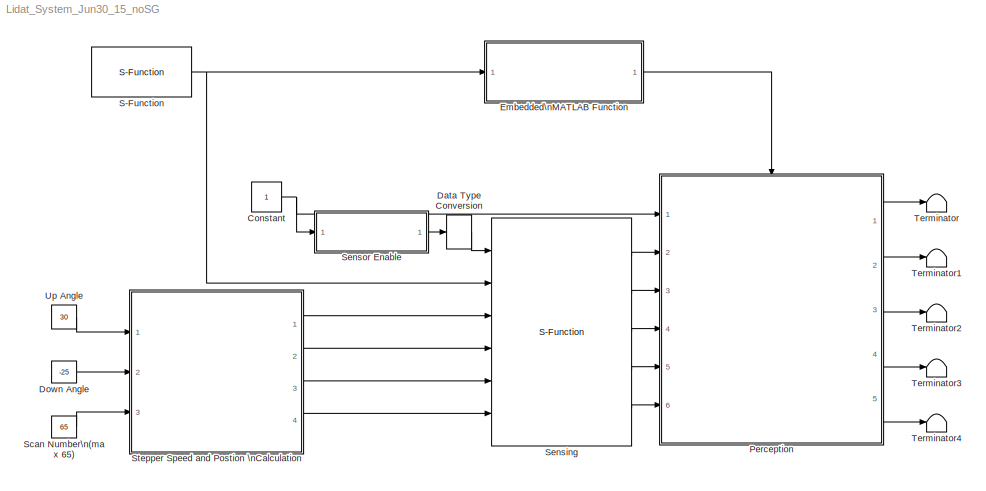
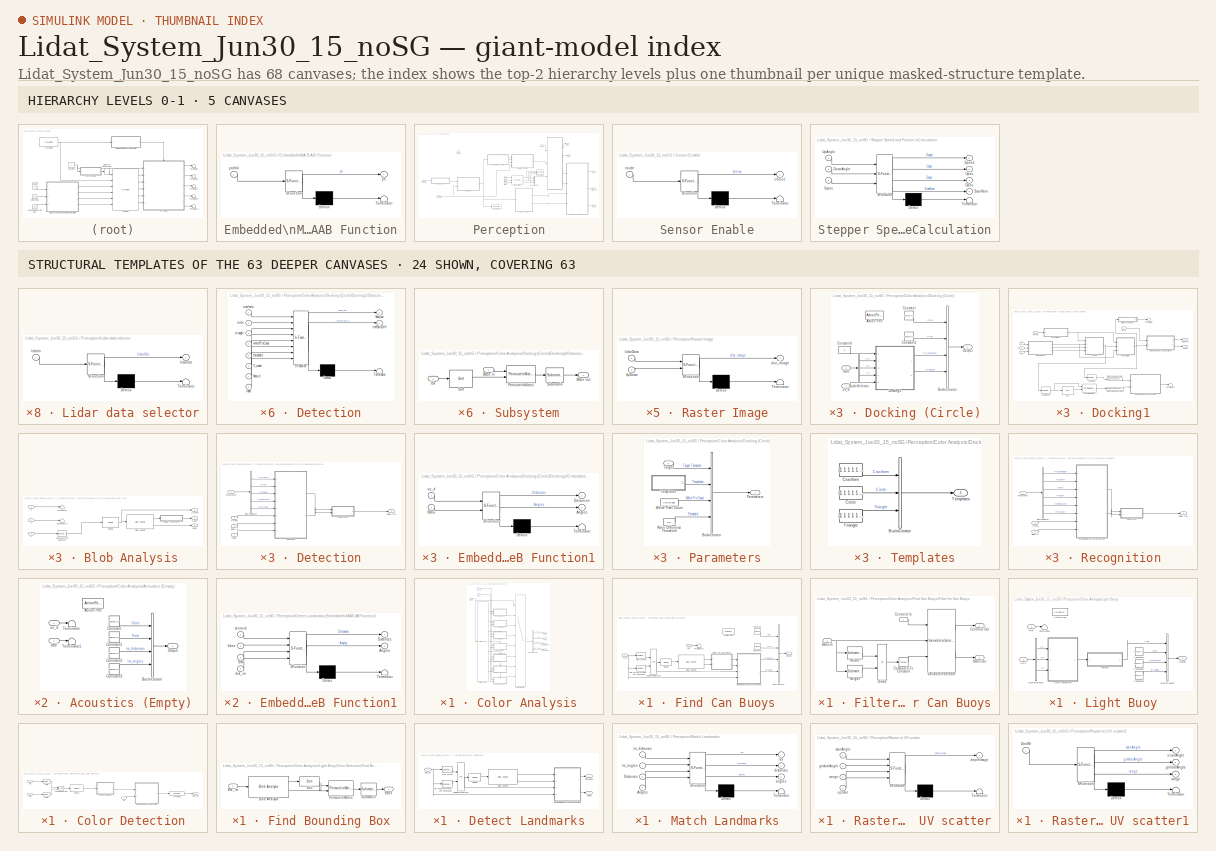
[diagram: thumbnail index - top-2 hierarchy levels (5 canvases) + 24 structural-template representatives of the remaining 63 canvases]
MODEL Lidat_System_Jun30_15_noSG
KIND model
BLOCK [Constant] Constant
  OutDataType = fixdt(1, 16)
  OutScaling = 2^0
  SID = 788
BLOCK [DataTypeConversion] Data Type Conversion
  OutDataType = fixdt(1, 16)
  OutDataTypeMode = int32
  OutDataTypeStr = int32
  OutScaling = 2^0
  RndMeth = Floor
  SID = 403
  SaturateOnIntegerOverflow = off
BLOCK [Constant] Down Angle
  OutDataType = fixdt(1, 16)
  OutScaling = 2^0
  SID = 404
  Value = -25
BLOCK [SubSystem] Embedded\nMATLAB Function
  FunctionWithSeparateData = off
  MaskDescription = Embedded MATLAB block
  MaskDisplay = disp('check_pot_val');
  MaskHideContents = off
  MaskIconFrame = on
  MaskIconOpaque = off
  MaskIconRotate = none
  MaskIconUnits = autoscale
  MaskPortRotate = default
  MaskSelfModifiable = on
  MaskType = Stateflow
  MinAlgLoopOccurrences = off
  Opaque = off
  PermitHierarchicalResolution = ExplicitOnly
  Ports = [1, 1]
  PropExecContextOutsideSubsystem = off
  RTWSystemCode = Auto
  RequestExecContextInheritance = off
  SID = 405
  TreatAsAtomicUnit = on
BLOCK [Demux] Embedded\nMATLAB Function/ Demux 
  Outputs = 1
  Ports = [1, 1]
  SID = 7
BLOCK [S-Function] Embedded\nMATLAB Function/ SFunction 
  EnableBusSupport = on
  FunctionName = sf_sfun
  PortCounts = [1 2]
  Ports = [1, 2]
  SID = 6
  Tag = Stateflow S-Function Lidat_System_Jun30_15_noSG 13
BLOCK [Terminator] Embedded\nMATLAB Function/ Terminator 
  SID = 9
BLOCK [Inport] Embedded\nMATLAB Function/potVal
  IconDisplay = Port number
  OutDataType = sfix(16)
  OutScaling = 2^0
  SID = 1
BLOCK [Outport] Embedded\nMATLAB Function/yn
  IconDisplay = Port number
  OutDataType = sfix(16)
  OutScaling = 2^0
  SID = 5
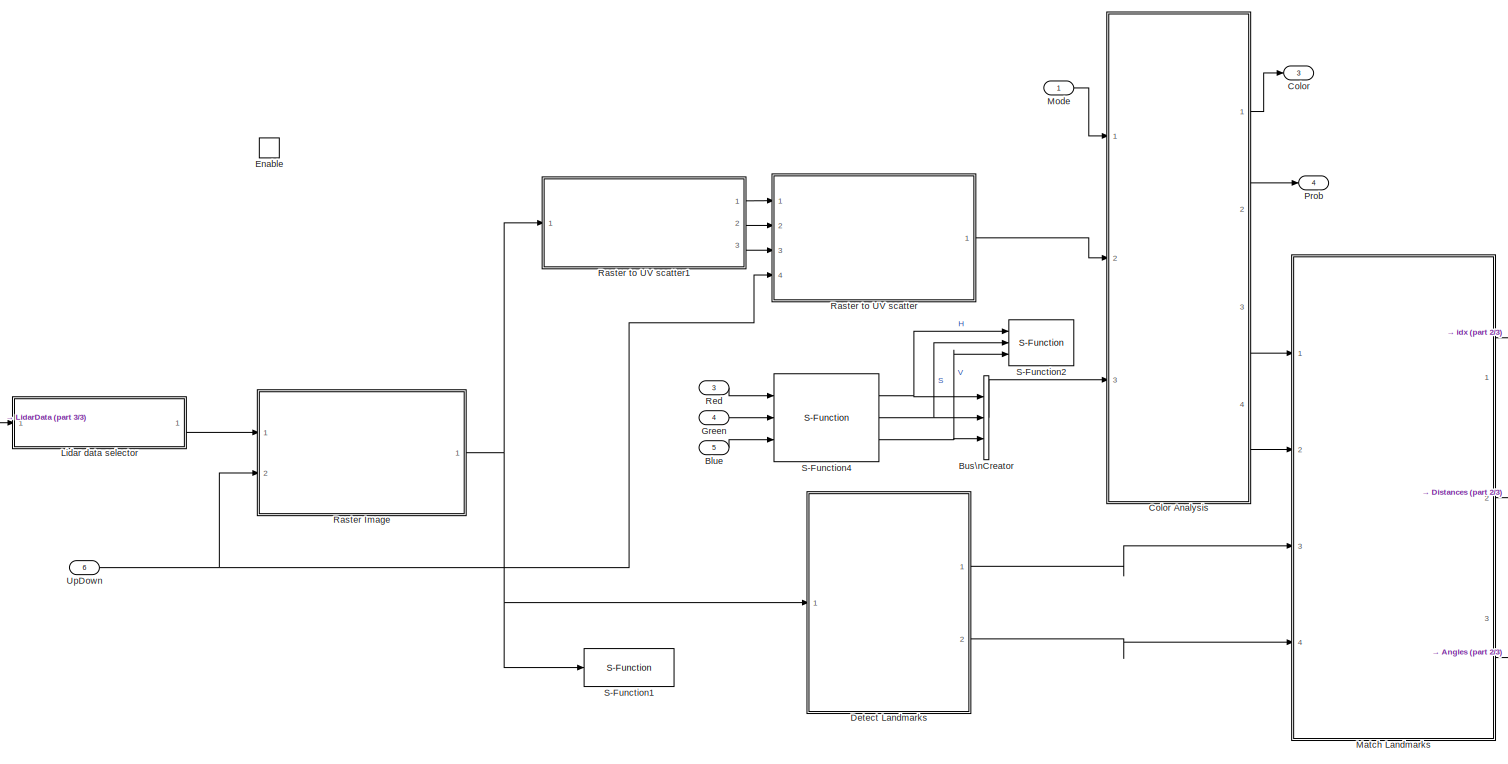
[diagram: Perception - part 1/3, most of the canvas]
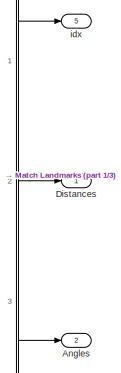
[diagram: Perception - part 2/3, middle right region]
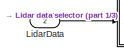
[diagram: Perception - part 3/3, middle left region]
BLOCK [SubSystem] Perception
  FunctionWithSeparateData = off
  MaskHideContents = off
  MinAlgLoopOccurrences = off
  Opaque = off
  Ports = [6, 5, 1]
  PropExecContextOutsideSubsystem = off
  RTWSystemCode = Auto
  RequestExecContextInheritance = off
  SID = 406
  TreatAsAtomicUnit = on
BLOCK [Outport] Perception/Angles
  IconDisplay = Port number
  OutDataType = fixdt(1, 16)
  OutScaling = 2^0
  Port = 2
  SID = 773
BLOCK [Inport] Perception/Blue
  IconDisplay = Port number
  OutDataType = fixdt(1, 16)
  OutScaling = 2^0
  Port = 5
  SID = 411
BLOCK [BusCreator] Perception/Bus\nCreator
  DisplayOption = bar
  Inputs = 3
  Ports = [3, 1]
  SID = 414
BLOCK [Outport] Perception/Color
  IconDisplay = Port number
  OutDataType = fixdt(1, 16)
  OutScaling = 2^0
  Port = 3
  SID = 774
BLOCK [SubSystem] Perception/Color Analysis
  FunctionWithSeparateData = off
  MaskHideContents = off
  MinAlgLoopOccurrences = off
  Opaque = off
  Ports = [3, 4]
  PropExecContextOutsideSubsystem = off
  RTWSystemCode = Auto
  RequestExecContextInheritance = off
  SID = 415
BLOCK [SubSystem] Perception/Color Analysis/Acoustics (Empty)
  FunctionWithSeparateData = off
  MaskHideContents = off
  MinAlgLoopOccurrences = off
  Opaque = off
  Ports = [2, 1, 0, 0, 0, 0, 0, 1]
  PropExecContextOutsideSubsystem = off
  RTWSystemCode = Auto
  RequestExecContextInheritance = off
  SID = 419
  TreatAsAtomicUnit = on
BLOCK [ActionPort] Perception/Color Analysis/Acoustics (Empty)/Action Port
  ActionType = case
  PropagateVarSize = During execution
  SID = 422
BLOCK [BusCreator] Perception/Color Analysis/Acoustics (Empty)/Bus\nCreator
  DisplayOption = bar
  Ports = [4, 1]
  SID = 423
BLOCK [Constant] Perception/Color Analysis/Acoustics (Empty)/Constant
  OutDataType = fixdt(1, 16)
  OutScaling = 2^0
  SID = 424
  Value = zeros(4,1)
BLOCK [Constant] Perception/Color Analysis/Acoustics (Empty)/Constant1
  OutDataType = fixdt(1, 16)
  OutScaling = 2^0
  SID = 425
  Value = zeros(4,1)
BLOCK [Constant] Perception/Color Analysis/Acoustics (Empty)/Constant2
  OutDataType = fixdt(1, 16)
  OutScaling = 2^0
  SID = 426
  Value = zeros(4,1)
BLOCK [Constant] Perception/Color Analysis/Acoustics (Empty)/Constant3
  OutDataType = fixdt(1, 16)
  OutScaling = 2^0
  SID = 427
  Value = zeros(4,1)
BLOCK [Inport] Perception/Color Analysis/Acoustics (Empty)/HSV
  IconDisplay = Port number
  OutDataType = fixdt(1, 16)
  OutScaling = 2^0
  Port = 2
  SID = 421
BLOCK [Outport] Perception/Color Analysis/Acoustics (Empty)/Output
  IconDisplay = Port number
  OutDataType = fixdt(1, 16)
  OutScaling = 2^0
  SID = 430
BLOCK [Terminator] Perception/Color Analysis/Acoustics (Empty)/Terminator
  SID = 428
BLOCK [Terminator] Perception/Color Analysis/Acoustics (Empty)/Terminator1
  SID = 429
BLOCK [Inport] Perception/Color Analysis/Acoustics (Empty)/uv_d
  IconDisplay = Port number
  OutDataType = fixdt(1, 16)
  OutScaling = 2^0
  SID = 420
BLOCK [BusSelector] Perception/Color Analysis/Bus\nSelector
  OutputSignals = Color,Prob,im_distances,im_angles
  Ports = [1, 4]
  SID = 431
BLOCK [Outport] Perception/Color Analysis/Color
  IconDisplay = Port number
  OutDataType = fixdt(1, 16)
  OutScaling = 2^0
  SID = 750
BLOCK [SubSystem] Perception/Color Analysis/Docking (Circle)
  FunctionWithSeparateData = off
  MaskHideContents = off
  MinAlgLoopOccurrences = off
  Opaque = off
  Ports = [2, 1, 0, 0, 0, 0, 0, 1]
  PropExecContextOutsideSubsystem = off
  RTWSystemCode = Auto
  RequestExecContextInheritance = off
  SID = 432
  TreatAsAtomicUnit = on
BLOCK [ActionPort] Perception/Color Analysis/Docking (Circle)/Action Port
  ActionType = case
  PropagateVarSize = During execution
  SID = 435
BLOCK [BusCreator] Perception/Color Analysis/Docking (Circle)/Bus\nCreator
  DisplayOption = bar
  Ports = [4, 1]
  SID = 436
BLOCK [BusSelector] Perception/Color Analysis/Docking (Circle)/Bus\nSelector
  OutputSignals = H,S,V
  Ports = [1, 3]
  SID = 437
BLOCK [Constant] Perception/Color Analysis/Docking (Circle)/Constant
  OutDataType = fixdt(1, 16)
  OutScaling = 2^0
  SID = 438
  Value = zeros(4,1)
BLOCK [Constant] Perception/Color Analysis/Docking (Circle)/Constant1
  OutDataType = fixdt(1, 16)
  OutScaling = 2^0
  SID = 439
  Value = zeros(4,1)
BLOCK [Constant] Perception/Color Analysis/Docking (Circle)/Constant4
  OutDataType = fixdt(1, 16)
  OutScaling = 2^0
  SID = 440
  Value = 2
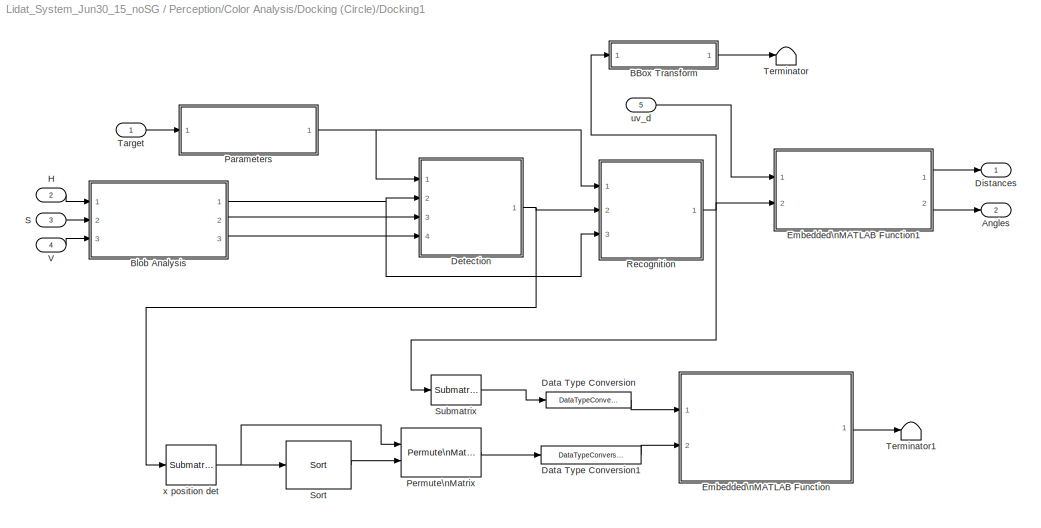
BLOCK [SubSystem] Perception/Color Analysis/Docking (Circle)/Docking1
  FunctionWithSeparateData = off
  MaskHideContents = off
  MinAlgLoopOccurrences = off
  Opaque = off
  Ports = [5, 2]
  PropExecContextOutsideSubsystem = off
  RTWSystemCode = Auto
  RequestExecContextInheritance = off
  SID = 441
BLOCK [Outport] Perception/Color Analysis/Docking (Circle)/Docking1/Angles
  IconDisplay = Port number
  Port = 2
  SID = 513
BLOCK [SubSystem] Perception/Color Analysis/Docking (Circle)/Docking1/BBox Transform
  FunctionWithSeparateData = off
  MaskDescription = Embedded MATLAB block
  MaskDisplay = disp('Btrans');
  MaskHideContents = off
  MaskIconFrame = on
  MaskIconOpaque = off
  MaskIconRotate = none
  MaskIconUnits = autoscale
  MaskPortRotate = default
  MaskSelfModifiable = on
  MaskType = Stateflow
  MinAlgLoopOccurrences = off
  Opaque = off
  PermitHierarchicalResolution = ExplicitOnly
  Ports = [1, 1]
  PropExecContextOutsideSubsystem = off
  RTWSystemCode = Auto
  RequestExecContextInheritance = off
  SID = 447
  TreatAsAtomicUnit = on
BLOCK [Demux] Perception/Color Analysis/Docking (Circle)/Docking1/BBox Transform/ Demux 
  Outputs = 1
  Ports = [1, 1]
  SID = 7
BLOCK [S-Function] Perception/Color Analysis/Docking (Circle)/Docking1/BBox Transform/ SFunction 
  EnableBusSupport = on
  FunctionName = sf_sfun
  PortCounts = [1 2]
  Ports = [1, 2]
  SID = 6
  Tag = Stateflow S-Function Lidat_System_Jun30_15_noSG 16
BLOCK [Terminator] Perception/Color Analysis/Docking (Circle)/Docking1/BBox Transform/ Terminator 
  SID = 9
BLOCK [Inport] Perception/Color Analysis/Docking (Circle)/Docking1/BBox Transform/BBin
  IconDisplay = Port number
  OutDataType = sfix(16)
  OutScaling = 2^0
  SID = 1
BLOCK [Outport] Perception/Color Analysis/Docking (Circle)/Docking1/BBox Transform/BBout
  IconDisplay = Port number
  OutDataType = sfix(16)
  OutScaling = 2^0
  SID = 5
BLOCK [SubSystem] Perception/Color Analysis/Docking (Circle)/Docking1/Blob Analysis
  FunctionWithSeparateData = off
  MaskHideContents = off
  MinAlgLoopOccurrences = off
  Opaque = off
  Ports = [3, 3]
  PropExecContextOutsideSubsystem = off
  RTWSystemCode = Auto
  RequestExecContextInheritance = off
  SID = 448
BLOCK [Outport] Perception/Color Analysis/Docking (Circle)/Docking1/Blob Analysis/B Box
  IconDisplay = Port number
  OutDataType = fixdt(1, 16)
  OutScaling = 2^0
  Port = 2
  SID = 459
BLOCK [SubSystem] Perception/Color Analysis/Docking (Circle)/Docking1/Blob Analysis/BBox Transform
  FunctionWithSeparateData = off
  MaskDescription = Embedded MATLAB block
  MaskDisplay = disp('Btrans');
  MaskHideContents = off
  MaskIconFrame = on
  MaskIconOpaque = off
  MaskIconRotate = none
  MaskIconUnits = autoscale
  MaskPortRotate = default
  MaskSelfModifiable = on
  MaskType = Stateflow
  MinAlgLoopOccurrences = off
  Opaque = off
  PermitHierarchicalResolution = ExplicitOnly
  Ports = [1, 1]
  PropExecContextOutsideSubsystem = off
  RTWSystemCode = Auto
  RequestExecContextInheritance = off
  SID = 452
  TreatAsAtomicUnit = on
BLOCK [Demux] Perception/Color Analysis/Docking (Circle)/Docking1/Blob Analysis/BBox Transform/ Demux 
  Outputs = 1
  Ports = [1, 1]
  SID = 7
BLOCK [S-Function] Perception/Color Analysis/Docking (Circle)/Docking1/Blob Analysis/BBox Transform/ SFunction 
  EnableBusSupport = on
  FunctionName = sf_sfun
  PortCounts = [1 2]
  Ports = [1, 2]
  SID = 6
  Tag = Stateflow S-Function Lidat_System_Jun30_15_noSG 17
BLOCK [Terminator] Perception/Color Analysis/Docking (Circle)/Docking1/Blob Analysis/BBox Transform/ Terminator 
  SID = 9
BLOCK [Inport] Perception/Color Analysis/Docking (Circle)/Docking1/Blob Analysis/BBox Transform/BBin
  IconDisplay = Port number
  OutDataType = sfix(16)
  OutScaling = 2^0
  SID = 1
BLOCK [Outport] Perception/Color Analysis/Docking (Circle)/Docking1/Blob Analysis/BBox Transform/BBout
  IconDisplay = Port number
  OutDataType = sfix(16)
  OutScaling = 2^0
  SID = 5
BLOCK [Reference] Perception/Color Analysis/Docking (Circle)/Docking1/Blob Analysis/Blob Analysis  REF=vipstatistics/Blob Analysis
  DialogController = vipDDGCreate
  DialogControllerArgs = DataTag0
  LockScale = off
  Ports = [1, 2]
  SID = 453
  SourceBlock = vipstatistics/Blob Analysis
  SourceType = Blob Analysis
  Tag = vipblks_row_conv
  accumFracLength = 0
  accumMode = Binary point scaling
  accumWordLength = 32
  angle = off
  area = off
  bBox = on
  centroid = off
  conn = 8
  eccentricity = off
  equivDiameterSq = off
  excludeBorderBlob = on
  extent = off
  fillValues = -1
  firstCoeffFracLength = 14
  firstCoeffMode = Binary point scaling
  firstCoeffWordLength = 16
  isCount = off
  isFill = on
  isLabel = on
  isOutVarDim = off
  majorAxis = off
  maxArea = intmax('uint32')
  maxBlobs = 10
  memoryFracLength = 16
  memoryMode = Same as product output
  memoryWordLength = 32
  minArea = 400
  minorAxis = off
  outDT = double
  outputFracLength = 16
  outputMode = Binary point scaling
  outputWordLength = 32
  overflowMode = off
  perimeter = off
  prodOutputFracLength = 16
  prodOutputMode = Binary point scaling
  prodOutputWordLength = 32
  roundingMode = Floor
  secondCoeffFracLength = 16
  secondCoeffMode = Binary point scaling
  secondCoeffWordLength = 32
  useMaxArea = off
  useMinArea = on
  warnIfNumBlobsExceeded = on
BLOCK [Reference] Perception/Color Analysis/Docking (Circle)/Docking1/Blob Analysis/Closing  REF=vipmorphops/Closing
  Ports = [1, 1]
  SID = 454
  SourceBlock = vipmorphops/Closing
  SourceType = Closing
  nhoodsrc = Specify via dialog
  strel = strel('disk',1,8)
BLOCK [Reference] Perception/Color Analysis/Docking (Circle)/Docking1/Blob Analysis/Compare\nTo Constant  REF=simulink/Logic and Bit\nOperations/Compare\nTo Constant
  FunctionWithSeparateData = off
  LogicOutDataTypeMode = boolean
  Ports = [1, 1]
  RTWMemSecDataConstants = Inherit from model
  RTWMemSecDataInternal = Inherit from model
  RTWMemSecDataParameters = Inherit from model
  RTWMemSecFuncExecute = Inherit from model
  RTWMemSecFuncInitTerm = Inherit from model
  SID = 455
  ShowPortLabels = FromPortIcon
  SourceBlock = simulink/Logic and Bit\nOperations/Compare\nTo Constant
  SourceType = Compare To Constant
  SystemSampleTime = -1
  ZeroCross = off
  const = 70
  relop = <=
BLOCK [Inport] Perception/Color Analysis/Docking (Circle)/Docking1/Blob Analysis/H
  IconDisplay = Port number
  OutDataType = fixdt(1, 16)
  OutScaling = 2^0
  SID = 449
BLOCK [Outport] Perception/Color Analysis/Docking (Circle)/Docking1/Blob Analysis/Label
  IconDisplay = Port number
  OutDataType = fixdt(1, 16)
  OutScaling = 2^0
  Port = 3
  SID = 460
BLOCK [Inport] Perception/Color Analysis/Docking (Circle)/Docking1/Blob Analysis/S
  IconDisplay = Port number
  OutDataType = fixdt(1, 16)
  OutScaling = 2^0
  Port = 2
  SID = 450
BLOCK [Terminator] Perception/Color Analysis/Docking (Circle)/Docking1/Blob Analysis/Terminator
  SID = 456
BLOCK [Terminator] Perception/Color Analysis/Docking (Circle)/Docking1/Blob Analysis/Terminator1
  SID = 457
BLOCK [Inport] Perception/Color Analysis/Docking (Circle)/Docking1/Blob Analysis/V
  IconDisplay = Port number
  OutDataType = fixdt(1, 16)
  OutScaling = 2^0
  Port = 3
  SID = 451
BLOCK [Outport] Perception/Color Analysis/Docking (Circle)/Docking1/Blob Analysis/V Mask
  IconDisplay = Port number
  OutDataType = fixdt(1, 16)
  OutScaling = 2^0
  SID = 458
BLOCK [DataTypeConversion] Perception/Color Analysis/Docking (Circle)/Docking1/Data Type Conversion
  OutDataType = fixdt(1, 16)
  OutDataTypeMode = int16
  OutDataTypeStr = int16
  OutScaling = 2^0
  RndMeth = Floor
  SID = 461
  SaturateOnIntegerOverflow = off
BLOCK [DataTypeConversion] Perception/Color Analysis/Docking (Circle)/Docking1/Data Type Conversion1
  OutDataType = fixdt(1, 16)
  OutDataTypeMode = int16
  OutDataTypeStr = int16
  OutScaling = 2^0
  RndMeth = Floor
  SID = 462
  SaturateOnIntegerOverflow = off
BLOCK [SubSystem] Perception/Color Analysis/Docking (Circle)/Docking1/Detection
  FunctionWithSeparateData = off
  MaskHideContents = off
  MinAlgLoopOccurrences = off
  Opaque = off
  Ports = [4, 1]
  PropExecContextOutsideSubsystem = off
  RTWSystemCode = Auto
  RequestExecContextInheritance = off
  SID = 463
BLOCK [Inport] Perception/Color Analysis/Docking (Circle)/Docking1/Detection/BBox In
  IconDisplay = Port number
  OutDataType = fixdt(1, 16)
  OutScaling = 2^0
  Port = 3
  SID = 466
BLOCK [Outport] Perception/Color Analysis/Docking (Circle)/Docking1/Detection/BBox Out
  IconDisplay = Port number
  OutDataType = fixdt(1, 16)
  OutScaling = 2^0
  SID = 477
BLOCK [BusSelector] Perception/Color Analysis/Docking (Circle)/Docking1/Detection/Bus\nSelector
  OutputSignals = Templates.Cruciform,Templates.Circle,Templates.Triangle,White Pix Count,Threshold
  Ports = [1, 5]
  SID = 468
BLOCK [SubSystem] Perception/Color Analysis/Docking (Circle)/Docking1/Detection/Detection
  FunctionWithSeparateData = off
  MaskDescription = Embedded MATLAB block
  MaskDisplay = disp('detection');
  MaskHideContents = off
  MaskIconFrame = on
  MaskIconOpaque = off
  MaskIconRotate = none
  MaskIconUnits = autoscale
  MaskPortRotate = default
  MaskSelfModifiable = on
  MaskType = Stateflow
  MinAlgLoopOccurrences = off
  Opaque = off
  PermitHierarchicalResolution = ExplicitOnly
  Ports = [8, 2]
  PropExecContextOutsideSubsystem = off
  RTWSystemCode = Auto
  RequestExecContextInheritance = off
  SID = 469
  TreatAsAtomicUnit = on
BLOCK [Demux] Perception/Color Analysis/Docking (Circle)/Docking1/Detection/Detection/ Demux 
  Outputs = 1
  Ports = [1, 1]
  SID = 15
BLOCK [S-Function] Perception/Color Analysis/Docking (Circle)/Docking1/Detection/Detection/ SFunction 
  EnableBusSupport = on
  FunctionName = sf_sfun
  PortCounts = [8 3]
  Ports = [8, 3]
  SID = 14
  Tag = Stateflow S-Function Lidat_System_Jun30_15_noSG 18
BLOCK [Terminator] Perception/Color Analysis/Docking (Circle)/Docking1/Detection/Detection/ Terminator 
  SID = 17
BLOCK [Inport] Perception/Color Analysis/Docking (Circle)/Docking1/Detection/Detection/V_mask
  IconDisplay = Port number
  Port = 6
  SID = 6
BLOCK [Inport] Perception/Color Analysis/Docking (Circle)/Docking1/Detection/Detection/bbox_in
  IconDisplay = Port number
  Port = 7
  SID = 7
BLOCK [Outport] Perception/Color Analysis/Docking (Circle)/Docking1/Detection/Detection/bbox_out
  IconDisplay = Port number
  OutDataType = sfix(16)
  OutScaling = 2^0
  SID = 12
BLOCK [Inport] Perception/Color Analysis/Docking (Circle)/Docking1/Detection/Detection/circle
  IconDisplay = Port number
  Port = 2
  SID = 2
BLOCK [Inport] Perception/Color Analysis/Docking (Circle)/Docking1/Detection/Detection/cruciform
  IconDisplay = Port number
  OutDataType = sfix(16)
  OutScaling = 2^0
  SID = 1
BLOCK [Inport] Perception/Color Analysis/Docking (Circle)/Docking1/Detection/Detection/label
  IconDisplay = Port number
  Port = 8
  SID = 8
BLOCK [Outport] Perception/Color Analysis/Docking (Circle)/Docking1/Detection/Detection/rtnRatioDiff
  IconDisplay = Port number
  Port = 2
  SID = 13
BLOCK [Inport] Perception/Color Analysis/Docking (Circle)/Docking1/Detection/Detection/threshold
  IconDisplay = Port number
  Port = 5
  SID = 5
BLOCK [Inport] Perception/Color Analysis/Docking (Circle)/Docking1/Detection/Detection/triangle
  IconDisplay = Port number
  Port = 3
  SID = 3
BLOCK [Inport] Perception/Color Analysis/Docking (Circle)/Docking1/Detection/Detection/whitePixCount
  IconDisplay = Port number
  Port = 4
  SID = 4
BLOCK [Inport] Perception/Color Analysis/Docking (Circle)/Docking1/Detection/Label
  IconDisplay = Port number
  OutDataType = fixdt(1, 16)
  OutScaling = 2^0
  Port = 4
  SID = 467
BLOCK [Inport] Perception/Color Analysis/Docking (Circle)/Docking1/Detection/Parametes
  IconDisplay = Port number
  OutDataType = fixdt(1, 16)
  OutScaling = 2^0
  SID = 464
BLOCK [SubSystem] Perception/Color Analysis/Docking (Circle)/Docking1/Detection/Subsystem
  FunctionWithSeparateData = off
  MaskHideContents = off
  MinAlgLoopOccurrences = off
  Opaque = off
  Ports = [2, 1]
  PropExecContextOutsideSubsystem = off
  RTWSystemCode = Auto
  RequestExecContextInheritance = off
  SID = 470
BLOCK [Inport] Perception/Color Analysis/Docking (Circle)/Docking1/Detection/Subsystem/BBox in
  IconDisplay = Port number
  OutDataType = fixdt(1, 16)
  OutScaling = 2^0
  SID = 471
BLOCK [Outport] Perception/Color Analysis/Docking (Circle)/Docking1/Detection/Subsystem/BBox out
  IconDisplay = Port number
  OutDataType = fixdt(1, 16)
  OutScaling = 2^0
  SID = 476
BLOCK [Inport] Perception/Color Analysis/Docking (Circle)/Docking1/Detection/Subsystem/Idx
  IconDisplay = Port number
  OutDataType = fixdt(1, 16)
  OutScaling = 2^0
  Port = 2
  SID = 472
BLOCK [Reference] Perception/Color Analysis/Docking (Circle)/Docking1/Detection/Subsystem/Permute\nMatrix  REF=dspmtrx3/Permute\nMatrix
  Ports = [2, 1]
  SID = 473
  SourceBlock = dspmtrx3/Permute\nMatrix
  SourceType = Permute Matrix
  ZeroOneIdxMode = One-based
  checkDims = off
  errmode = Clip index
  mode = Rows
BLOCK [Reference] Perception/Color Analysis/Docking (Circle)/Docking1/Detection/Subsystem/Sort  REF=dspstat3/Sort
  DialogController = dspDDGCreate
  DialogControllerArgs = DataTag1
  LockScale = off
  Ports = [1, 1]
  SID = 474
  SourceBlock = dspstat3/Sort
  SourceType = Sort
  accumDataTypeStr = Inherit: Same as product output
  accumFracLength = 30
  accumLastDataTypeStr = Inherit: Same as product output
  accumMode = Same as product output
  accumWordLength = 32
  additionalParams = off
  allowOverrides = on
  dir = Ascending
  otype = Index
  overflowMode = off
  prodOutputDataTypeStr = Inherit: Same as input
  prodOutputFracLength = 30
  prodOutputLastDataTypeStr = Inherit: Same as input
  prodOutputMode = Same as input
  prodOutputWordLength = 32
  roundingMode = Floor
  sortAlg = Quick sort
BLOCK [Reference] Perception/Color Analysis/Docking (Circle)/Docking1/Detection/Subsystem/Submatrix  REF=dspmtrx3/Submatrix
  ColEndIndex = 1
  ColEndMode = Last
  ColSpan = Range of columns
  ColStartIndex = 1
  ColStartMode = First
  Ports = [1, 1]
  RowEndIndex = 3
  RowEndMode = Index
  RowSpan = Range of rows
  RowStartIndex = 1
  RowStartMode = First
  SID = 475
  SourceBlock = dspmtrx3/Submatrix
  SourceType = Submatrix
BLOCK [Inport] Perception/Color Analysis/Docking (Circle)/Docking1/Detection/V Mask
  IconDisplay = Port number
  OutDataType = fixdt(1, 16)
  OutScaling = 2^0
  Port = 2
  SID = 465
BLOCK [Outport] Perception/Color Analysis/Docking (Circle)/Docking1/Distances
  IconDisplay = Port number
  SID = 512
BLOCK [SubSystem] Perception/Color Analysis/Docking (Circle)/Docking1/Embedded\nMATLAB Function
  FunctionWithSeparateData = off
  MaskDescription = Embedded MATLAB block
  MaskDisplay = disp('bayPosition');
  MaskHideContents = off
  MaskIconFrame = on
  MaskIconOpaque = off
  MaskIconRotate = none
  MaskIconUnits = autoscale
  MaskPortRotate = default
  MaskSelfModifiable = on
  MaskType = Stateflow
  MinAlgLoopOccurrences = off
  Opaque = off
  PermitHierarchicalResolution = ExplicitOnly
  Ports = [2, 1]
  PropExecContextOutsideSubsystem = off
  RTWSystemCode = Auto
  RequestExecContextInheritance = off
  SID = 478
  TreatAsAtomicUnit = on
BLOCK [Demux] Perception/Color Analysis/Docking (Circle)/Docking1/Embedded\nMATLAB Function/ Demux 
  Outputs = 1
  Ports = [1, 1]
  SID = 8
BLOCK [S-Function] Perception/Color Analysis/Docking (Circle)/Docking1/Embedded\nMATLAB Function/ SFunction 
  EnableBusSupport = on
  FunctionName = sf_sfun
  PortCounts = [2 2]
  Ports = [2, 2]
  SID = 7
  Tag = Stateflow S-Function Lidat_System_Jun30_15_noSG 19
BLOCK [Terminator] Perception/Color Analysis/Docking (Circle)/Docking1/Embedded\nMATLAB Function/ Terminator 
  SID = 10
BLOCK [Outport] Perception/Color Analysis/Docking (Circle)/Docking1/Embedded\nMATLAB Function/bayNumber
  IconDisplay = Port number
  OutDataType = sfix(16)
  OutScaling = 2^0
  SID = 6
BLOCK [Inport] Perception/Color Analysis/Docking (Circle)/Docking1/Embedded\nMATLAB Function/xDet
  IconDisplay = Port number
  Port = 2
  SID = 2
BLOCK [Inport] Perception/Color Analysis/Docking (Circle)/Docking1/Embedded\nMATLAB Function/xRec
  IconDisplay = Port number
  OutDataType = sfix(16)
  OutScaling = 2^0
  SID = 1
BLOCK [SubSystem] Perception/Color Analysis/Docking (Circle)/Docking1/Embedded\nMATLAB Function1
  FunctionWithSeparateData = off
  MaskDescription = Embedded MATLAB block
  MaskDisplay = disp('DsitFind');
  MaskHideContents = off
  MaskIconFrame = on
  MaskIconOpaque = off
  MaskIconRotate = none
  MaskIconUnits = autoscale
  MaskPortRotate = default
  MaskSelfModifiable = on
  MaskType = Stateflow
  MinAlgLoopOccurrences = off
  Opaque = off
  PermitHierarchicalResolution = ExplicitOnly
  Ports = [2, 2]
  PropExecContextOutsideSubsystem = off
  RTWSystemCode = Auto
  RequestExecContextInheritance = off
  SID = 479
  TreatAsAtomicUnit = on
BLOCK [Demux] Perception/Color Analysis/Docking (Circle)/Docking1/Embedded\nMATLAB Function1/ Demux 
  Outputs = 1
  Ports = [1, 1]
  SID = 9
BLOCK [S-Function] Perception/Color Analysis/Docking (Circle)/Docking1/Embedded\nMATLAB Function1/ SFunction 
  EnableBusSupport = on
  FunctionName = sf_sfun
  PortCounts = [2 3]
  Ports = [2, 3]
  SID = 8
  Tag = Stateflow S-Function Lidat_System_Jun30_15_noSG 20
BLOCK [Terminator] Perception/Color Analysis/Docking (Circle)/Docking1/Embedded\nMATLAB Function1/ Terminator 
  SID = 11
BLOCK [Outport] Perception/Color Analysis/Docking (Circle)/Docking1/Embedded\nMATLAB Function1/Angles
  IconDisplay = Port number
  Port = 2
  SID = 7
BLOCK [Inport] Perception/Color Analysis/Docking (Circle)/Docking1/Embedded\nMATLAB Function1/BBox
  IconDisplay = Port number
  Port = 2
  SID = 2
BLOCK [Outport] Perception/Color Analysis/Docking (Circle)/Docking1/Embedded\nMATLAB Function1/Distances
  IconDisplay = Port number
  OutDataType = sfix(16)
  OutScaling = 2^0
  SID = 6
BLOCK [Inport] Perception/Color Analysis/Docking (Circle)/Docking1/Embedded\nMATLAB Function1/uv_d
  IconDisplay = Port number
  OutDataType = sfix(16)
  OutScaling = 2^0
  SID = 1
BLOCK [Inport] Perception/Color Analysis/Docking (Circle)/Docking1/H
  IconDisplay = Port number
  Port = 2
  SID = 443
BLOCK [SubSystem] Perception/Color Analysis/Docking (Circle)/Docking1/Parameters
  FunctionWithSeparateData = off
  MaskHideContents = off
  MinAlgLoopOccurrences = off
  Opaque = off
  Ports = [1, 1]
  PropExecContextOutsideSubsystem = off
  RTWSystemCode = Auto
  RequestExecContextInheritance = off
  SID = 480
BLOCK [BusCreator] Perception/Color Analysis/Docking (Circle)/Docking1/Parameters/Bus\nCreator
  DisplayOption = bar
  Ports = [4, 1]
  SID = 482
BLOCK [Outport] Perception/Color Analysis/Docking (Circle)/Docking1/Parameters/Parameters
  IconDisplay = Port number
  OutDataType = fixdt(1, 16)
  OutScaling = 2^0
  SID = 491
BLOCK [Constant] Perception/Color Analysis/Docking (Circle)/Docking1/Parameters/Ratio Difference Threshold
  OutDataType = fixdt(1, 16)
  OutScaling = 2^0
  SID = 483
  Value = 0.6
BLOCK [Inport] Perception/Color Analysis/Docking (Circle)/Docking1/Parameters/Target
  IconDisplay = Port number
  SID = 481
BLOCK [SubSystem] Perception/Color Analysis/Docking (Circle)/Docking1/Parameters/Templates
  FunctionWithSeparateData = off
  MaskHideContents = off
  MinAlgLoopOccurrences = off
  Opaque = off
  Ports = [0, 1]
  PropExecContextOutsideSubsystem = off
  RTWSystemCode = Auto
  RequestExecContextInheritance = off
  SID = 484
BLOCK [BusCreator] Perception/Color Analysis/Docking (Circle)/Docking1/Parameters/Templates/Bus\nCreator
  DisplayOption = bar
  Inputs = 3
  Ports = [3, 1]
  SID = 485
BLOCK [Constant] Perception/Color Analysis/Docking (Circle)/Docking1/Parameters/Templates/Circle
  OutDataType = fixdt(1, 16)
  OutScaling = 2^0
  SID = 486
  Value = [1	1	1	1	1	1	0	0	0	0	0	0	0	1	1	1	1	1	1\n1	1	1	1	0	0	0	0	0	0	0	0	0	0	0	1	1	1	1\n1	1	0	0	0	0	0	0	0	0	0	0	0	0	0	0	0	1	1\n1	1	0	0	0	0	0	0	0	0	0	0	0	0	0	0	0	1	1\n1	0	0	0	0	0	0	0	0	0	0	0	0	0	0	0	0	0	1\n1	0	0	0	0	0	0	0	0	0	0	0	0	0	0	0	0	0	1\n0	0	0	0	0	0	0	0	0	0	0	0	0	0	0	0	0	0	0\n0	0	0	0	0	0	0	0	0	0	0	0	0	0	0	0	0	0	0\n0	0	0	0	0	0	0	0	0	0	0	0	0	0	0	0	0	0	0\n0	0	0	0	0	0	0	0	0	0	0	0	0	0	0	0	0	0	0\n0	0	0	0	0...<+341ch>  <repeated x3 — deduplicated; at blocks: Circle>
BLOCK [Constant] Perception/Color Analysis/Docking (Circle)/Docking1/Parameters/Templates/Cruciform
  OutDataType = fixdt(1, 16)
  OutScaling = 2^0
  SID = 487
  Value = [1	1	1	1	1	1	0	0	0	0	0	0	0	1	1	1	1	1	1\n1	1	1	1	1	1	0	0	0	0	0	0	0	1	1	1	1	1	1\n1	1	1	1	1	1	0	0	0	0	0	0	0	1	1	1	1	1	1\n1	1	1	1	1	1	0	0	0	0	0	0	0	1	1	1	1	1	1\n1	1	1	1	1	1	0	0	0	0	0	0	0	1	1	1	1	1	1\n1	1	1	1	1	1	0	0	0	0	0	0	0	1	1	1	1	1	1\n0	0	0	0	0	0	0	0	0	0	0	0	0	0	0	0	0	0	0\n0	0	0	0	0	0	0	0	0	0	0	0	0	0	0	0	0	0	0\n0	0	0	0	0	0	0	0	0	0	0	0	0	0	0	0	0	0	0\n0	0	0	0	0	0	0	0	0	0	0	0	0	0	0	0	0	0	0\n0	0	0	0	0...<+341ch>  <repeated x3 — deduplicated; at blocks: Cruciform>
BLOCK [Outport] Perception/Color Analysis/Docking (Circle)/Docking1/Parameters/Templates/Templates
  IconDisplay = Port number
  OutDataType = fixdt(1, 16)
  OutScaling = 2^0
  SID = 489
BLOCK [Constant] Perception/Color Analysis/Docking (Circle)/Docking1/Parameters/Templates/Triangle
  OutDataType = fixdt(1, 16)
  OutScaling = 2^0
  SID = 488
  Value = [1	1	1	1	1	1	1	1	1	0	1	1	1	1	1	1	1	1	1\n1	1	1	1	1	1	1	1	1	0	1	1	1	1	1	1	1	1	1\n1	1	1	1	1	1	1	1	0	0	0	1	1	1	1	1	1	1	1\n1	1	1	1	1	1	1	1	0	0	0	1	1	1	1	1	1	1	1\n1	1	1	1	1	1	1	0	0	0	0	0	1	1	1	1	1	1	1\n1	1	1	1	1	1	1	0	0	0	0	0	1	1	1	1	1	1	1\n1	1	1	1	1	1	0	0	0	0	0	0	0	1	1	1	1	1	1\n1	1	1	1	1	1	0	0	0	0	0	0	0	1	1	1	1	1	1\n1	1	1	1	1	0	0	0	0	0	0	0	0	0	1	1	1	1	1\n1	1	1	1	1	0	0	0	0	0	0	0	0	0	1	1	1	1	1\n1	1	1	1	0...<+341ch>  <repeated x3 — deduplicated; at blocks: Triangle>
BLOCK [Constant] Perception/Color Analysis/Docking (Circle)/Docking1/Parameters/White Pixel Count
  OutDataType = fixdt(1, 16)
  OutScaling = 2^0
  SID = 490
  Value = [144	64	180]
BLOCK [Reference] Perception/Color Analysis/Docking (Circle)/Docking1/Permute\nMatrix  REF=dspmtrx3/Permute\nMatrix
  Ports = [2, 1]
  SID = 492
  SourceBlock = dspmtrx3/Permute\nMatrix
  SourceType = Permute Matrix
  ZeroOneIdxMode = One-based
  checkDims = off
  errmode = Clip index
  mode = Rows
BLOCK [SubSystem] Perception/Color Analysis/Docking (Circle)/Docking1/Recognition
  FunctionWithSeparateData = off
  MaskHideContents = off
  MinAlgLoopOccurrences = off
  Opaque = off
  Ports = [3, 1]
  PropExecContextOutsideSubsystem = off
  RTWSystemCode = Auto
  RequestExecContextInheritance = off
  SID = 493
BLOCK [Inport] Perception/Color Analysis/Docking (Circle)/Docking1/Recognition/BBox In
  IconDisplay = Port number
  OutDataType = fixdt(1, 16)
  OutScaling = 2^0
  Port = 2
  SID = 495
BLOCK [Outport] Perception/Color Analysis/Docking (Circle)/Docking1/Recognition/BBox Out
  IconDisplay = Port number
  OutDataType = fixdt(1, 16)
  OutScaling = 2^0
  SID = 506
BLOCK [BusSelector] Perception/Color Analysis/Docking (Circle)/Docking1/Recognition/Bus\nSelector
  OutputSignals = Target Template,Templates.Cruciform,Templates.Circle,Templates.Triangle,White Pix Count,Threshold
  Ports = [1, 6]
  SID = 497
BLOCK [SubSystem] Perception/Color Analysis/Docking (Circle)/Docking1/Recognition/Embedded\nMATLAB Function
  FunctionWithSeparateData = off
  MaskDescription = Embedded MATLAB block
  MaskDisplay = disp('recognition');
  MaskHideContents = off
  MaskIconFrame = on
  MaskIconOpaque = off
  MaskIconRotate = none
  MaskIconUnits = autoscale
  MaskPortRotate = default
  MaskSelfModifiable = on
  MaskType = Stateflow
  MinAlgLoopOccurrences = off
  Opaque = off
  PermitHierarchicalResolution = ExplicitOnly
  Ports = [8, 2]
  PropExecContextOutsideSubsystem = off
  RTWSystemCode = Auto
  RequestExecContextInheritance = off
  SID = 498
  TreatAsAtomicUnit = on
BLOCK [Demux] Perception/Color Analysis/Docking (Circle)/Docking1/Recognition/Embedded\nMATLAB Function/ Demux 
  Outputs = 1
  Ports = [1, 1]
  SID = 15
BLOCK [S-Function] Perception/Color Analysis/Docking (Circle)/Docking1/Recognition/Embedded\nMATLAB Function/ SFunction 
  EnableBusSupport = on
  FunctionName = sf_sfun
  PortCounts = [8 3]
  Ports = [8, 3]
  SID = 14
  Tag = Stateflow S-Function Lidat_System_Jun30_15_noSG 21
BLOCK [Terminator] Perception/Color Analysis/Docking (Circle)/Docking1/Recognition/Embedded\nMATLAB Function/ Terminator 
  SID = 17
BLOCK [Inport] Perception/Color Analysis/Docking (Circle)/Docking1/Recognition/Embedded\nMATLAB Function/V_mask
  IconDisplay = Port number
  Port = 7
  SID = 7
BLOCK [Inport] Perception/Color Analysis/Docking (Circle)/Docking1/Recognition/Embedded\nMATLAB Function/bbox_in
  IconDisplay = Port number
  Port = 8
  SID = 8
BLOCK [Outport] Perception/Color Analysis/Docking (Circle)/Docking1/Recognition/Embedded\nMATLAB Function/bbox_out
  IconDisplay = Port number
  OutDataType = sfix(16)
  OutScaling = 2^0
  SID = 12
BLOCK [Inport] Perception/Color Analysis/Docking (Circle)/Docking1/Recognition/Embedded\nMATLAB Function/circle
  IconDisplay = Port number
  Port = 3
  SID = 3
BLOCK [Inport] Perception/Color Analysis/Docking (Circle)/Docking1/Recognition/Embedded\nMATLAB Function/cruciform
  IconDisplay = Port number
  Port = 2
  SID = 2
BLOCK [Outport] Perception/Color Analysis/Docking (Circle)/Docking1/Recognition/Embedded\nMATLAB Function/returnRatioDiff
  IconDisplay = Port number
  Port = 2
  SID = 13
BLOCK [Inport] Perception/Color Analysis/Docking (Circle)/Docking1/Recognition/Embedded\nMATLAB Function/targetTemp
  IconDisplay = Port number
  OutDataType = sfix(16)
  OutScaling = 2^0
  SID = 1
BLOCK [Inport] Perception/Color Analysis/Docking (Circle)/Docking1/Recognition/Embedded\nMATLAB Function/threshold
  IconDisplay = Port number
  Port = 6
  SID = 6
BLOCK [Inport] Perception/Color Analysis/Docking (Circle)/Docking1/Recognition/Embedded\nMATLAB Function/triangle
  IconDisplay = Port number
  Port = 4
  SID = 4
BLOCK [Inport] Perception/Color Analysis/Docking (Circle)/Docking1/Recognition/Embedded\nMATLAB Function/whitePixCount
  IconDisplay = Port number
  Port = 5
  SID = 5
BLOCK [Inport] Perception/Color Analysis/Docking (Circle)/Docking1/Recognition/Parametes
  IconDisplay = Port number
  OutDataType = fixdt(1, 16)
  OutScaling = 2^0
  SID = 494
BLOCK [SubSystem] Perception/Color Analysis/Docking (Circle)/Docking1/Recognition/Subsystem
  FunctionWithSeparateData = off
  MaskHideContents = off
  MinAlgLoopOccurrences = off
  Opaque = off
  Ports = [2, 1]
  PropExecContextOutsideSubsystem = off
  RTWSystemCode = Auto
  RequestExecContextInheritance = off
  SID = 499
BLOCK [Inport] Perception/Color Analysis/Docking (Circle)/Docking1/Recognition/Subsystem/BBox in
  IconDisplay = Port number
  OutDataType = fixdt(1, 16)
  OutScaling = 2^0
  SID = 500
BLOCK [Outport] Perception/Color Analysis/Docking (Circle)/Docking1/Recognition/Subsystem/BBox out
  IconDisplay = Port number
  OutDataType = fixdt(1, 16)
  OutScaling = 2^0
  SID = 505
BLOCK [Inport] Perception/Color Analysis/Docking (Circle)/Docking1/Recognition/Subsystem/Idx
  IconDisplay = Port number
  OutDataType = fixdt(1, 16)
  OutScaling = 2^0
  Port = 2
  SID = 501
BLOCK [Reference] Perception/Color Analysis/Docking (Circle)/Docking1/Recognition/Subsystem/Permute\nMatrix  REF=dspmtrx3/Permute\nMatrix
  Ports = [2, 1]
  SID = 502
  SourceBlock = dspmtrx3/Permute\nMatrix
  SourceType = Permute Matrix
  ZeroOneIdxMode = One-based
  checkDims = off
  errmode = Clip index
  mode = Rows
BLOCK [Reference] Perception/Color Analysis/Docking (Circle)/Docking1/Recognition/Subsystem/Sort  REF=dspstat3/Sort
  DialogController = dspDDGCreate
  DialogControllerArgs = DataTag2
  LockScale = off
  Ports = [1, 1]
  SID = 503
  SourceBlock = dspstat3/Sort
  SourceType = Sort
  accumDataTypeStr = Inherit: Same as product output
  accumFracLength = 30
  accumLastDataTypeStr = Inherit: Same as product output
  accumMode = Same as product output
  accumWordLength = 32
  additionalParams = off
  allowOverrides = on
  dir = Ascending
  otype = Index
  overflowMode = off
  prodOutputDataTypeStr = Inherit: Same as input
  prodOutputFracLength = 30
  prodOutputLastDataTypeStr = Inherit: Same as input
  prodOutputMode = Same as input
  prodOutputWordLength = 32
  roundingMode = Floor
  sortAlg = Quick sort
BLOCK [Reference] Perception/Color Analysis/Docking (Circle)/Docking1/Recognition/Subsystem/Submatrix  REF=dspmtrx3/Submatrix
  ColEndIndex = 1
  ColEndMode = Last
  ColSpan = All columns
  ColStartIndex = 1
  ColStartMode = First
  Ports = [1, 1]
  RowEndIndex = 3
  RowEndMode = Index
  RowSpan = One row
  RowStartIndex = 1
  RowStartMode = First
  SID = 504
  SourceBlock = dspmtrx3/Submatrix
  SourceType = Submatrix
BLOCK [Inport] Perception/Color Analysis/Docking (Circle)/Docking1/Recognition/V Mask
  IconDisplay = Port number
  OutDataType = fixdt(1, 16)
  OutScaling = 2^0
  Port = 3
  SID = 496
BLOCK [Inport] Perception/Color Analysis/Docking (Circle)/Docking1/S
  IconDisplay = Port number
  Port = 3
  SID = 444
BLOCK [Reference] Perception/Color Analysis/Docking (Circle)/Docking1/Sort  REF=dspstat3/Sort
  DialogController = dspDDGCreate
  DialogControllerArgs = DataTag3
  LockScale = off
  Ports = [1, 1]
  SID = 507
  SourceBlock = dspstat3/Sort
  SourceType = Sort
  accumDataTypeStr = Inherit: Same as product output
  accumFracLength = 30
  accumLastDataTypeStr = Inherit: Same as product output
  accumMode = Same as product output
  accumWordLength = 32
  additionalParams = off
  allowOverrides = on
  dir = Ascending
  otype = Index
  overflowMode = off
  prodOutputDataTypeStr = Inherit: Same as input
  prodOutputFracLength = 30
  prodOutputLastDataTypeStr = Inherit: Same as input
  prodOutputMode = Same as input
  prodOutputWordLength = 32
  roundingMode = Floor
  sortAlg = Quick sort
BLOCK [Reference] Perception/Color Analysis/Docking (Circle)/Docking1/Submatrix  REF=dspmtrx3/Submatrix
  ColEndIndex = 1
  ColEndMode = Last
  ColSpan = One column
  ColStartIndex = 1
  ColStartMode = First
  Ports = [1, 1]
  RowEndIndex = 1
  RowEndMode = Last
  RowSpan = Range of rows
  RowStartIndex = 1
  RowStartMode = First
  SID = 508
  SourceBlock = dspmtrx3/Submatrix
  SourceType = Submatrix
BLOCK [Inport] Perception/Color Analysis/Docking (Circle)/Docking1/Target
  IconDisplay = Port number
  SID = 442
BLOCK [Terminator] Perception/Color Analysis/Docking (Circle)/Docking1/Terminator
  SID = 509
BLOCK [Terminator] Perception/Color Analysis/Docking (Circle)/Docking1/Terminator1
  SID = 510
BLOCK [Inport] Perception/Color Analysis/Docking (Circle)/Docking1/V
  IconDisplay = Port number
  Port = 4
  SID = 445
BLOCK [Inport] Perception/Color Analysis/Docking (Circle)/Docking1/uv_d
  IconDisplay = Port number
  Port = 5
  SID = 446
BLOCK [Reference] Perception/Color Analysis/Docking (Circle)/Docking1/x position det  REF=dspmtrx3/Submatrix
  ColEndIndex = 1
  ColEndMode = Last
  ColSpan = One column
  ColStartIndex = 1
  ColStartMode = First
  Ports = [1, 1]
  RowEndIndex = 1
  RowEndMode = Last
  RowSpan = Range of rows
  RowStartIndex = 1
  RowStartMode = First
  SID = 511
  SourceBlock = dspmtrx3/Submatrix
  SourceType = Submatrix
BLOCK [Inport] Perception/Color Analysis/Docking (Circle)/HSV
  IconDisplay = Port number
  OutDataType = fixdt(1, 16)
  OutScaling = 2^0
  Port = 2
  SID = 434
BLOCK [Outport] Perception/Color Analysis/Docking (Circle)/Output
  IconDisplay = Port number
  OutDataType = fixdt(1, 16)
  OutScaling = 2^0
  SID = 514
BLOCK [Inport] Perception/Color Analysis/Docking (Circle)/uv_d
  IconDisplay = Port number
  OutDataType = fixdt(1, 16)
  OutScaling = 2^0
  SID = 433
BLOCK [SubSystem] Perception/Color Analysis/Docking (Cross)
  FunctionWithSeparateData = off
  MaskHideContents = off
  MinAlgLoopOccurrences = off
  Opaque = off
  Ports = [2, 1, 0, 0, 0, 0, 0, 1]
  PropExecContextOutsideSubsystem = off
  RTWSystemCode = Auto
  RequestExecContextInheritance = off
  SID = 515
  TreatAsAtomicUnit = on
BLOCK [ActionPort] Perception/Color Analysis/Docking (Cross)/Action Port
  ActionType = case
  PropagateVarSize = During execution
  SID = 518
BLOCK [BusCreator] Perception/Color Analysis/Docking (Cross)/Bus\nCreator
  DisplayOption = bar
  Ports = [4, 1]
  SID = 519
BLOCK [BusSelector] Perception/Color Analysis/Docking (Cross)/Bus\nSelector
  OutputSignals = H,S,V
  Ports = [1, 3]
  SID = 520
BLOCK [Constant] Perception/Color Analysis/Docking (Cross)/Constant
  OutDataType = fixdt(1, 16)
  OutScaling = 2^0
  SID = 521
  Value = zeros(4,1)
BLOCK [Constant] Perception/Color Analysis/Docking (Cross)/Constant1
  OutDataType = fixdt(1, 16)
  OutScaling = 2^0
  SID = 522
  Value = zeros(4,1)
BLOCK [Constant] Perception/Color Analysis/Docking (Cross)/Constant4
  OutDataType = fixdt(1, 16)
  OutScaling = 2^0
  SID = 523
BLOCK [SubSystem] Perception/Color Analysis/Docking (Cross)/Docking1
  FunctionWithSeparateData = off
  MaskHideContents = off
  MinAlgLoopOccurrences = off
  Opaque = off
  Ports = [5, 2]
  PropExecContextOutsideSubsystem = off
  RTWSystemCode = Auto
  RequestExecContextInheritance = off
  SID = 524
BLOCK [Outport] Perception/Color Analysis/Docking (Cross)/Docking1/Angles
  IconDisplay = Port number
  Port = 2
  SID = 596
BLOCK [SubSystem] Perception/Color Analysis/Docking (Cross)/Docking1/BBox Transform
  FunctionWithSeparateData = off
  MaskDescription = Embedded MATLAB block
  MaskDisplay = disp('Btrans');
  MaskHideContents = off
  MaskIconFrame = on
  MaskIconOpaque = off
  MaskIconRotate = none
  MaskIconUnits = autoscale
  MaskPortRotate = default
  MaskSelfModifiable = on
  MaskType = Stateflow
  MinAlgLoopOccurrences = off
  Opaque = off
  PermitHierarchicalResolution = ExplicitOnly
  Ports = [1, 1]
  PropExecContextOutsideSubsystem = off
  RTWSystemCode = Auto
  RequestExecContextInheritance = off
  SID = 530
  TreatAsAtomicUnit = on
BLOCK [Demux] Perception/Color Analysis/Docking (Cross)/Docking1/BBox Transform/ Demux 
  Outputs = 1
  Ports = [1, 1]
  SID = 7
BLOCK [S-Function] Perception/Color Analysis/Docking (Cross)/Docking1/BBox Transform/ SFunction 
  EnableBusSupport = on
  FunctionName = sf_sfun
  PortCounts = [1 2]
  Ports = [1, 2]
  SID = 6
  Tag = Stateflow S-Function Lidat_System_Jun30_15_noSG 9
BLOCK [Terminator] Perception/Color Analysis/Docking (Cross)/Docking1/BBox Transform/ Terminator 
  SID = 9
BLOCK [Inport] Perception/Color Analysis/Docking (Cross)/Docking1/BBox Transform/BBin
  IconDisplay = Port number
  OutDataType = sfix(16)
  OutScaling = 2^0
  SID = 1
BLOCK [Outport] Perception/Color Analysis/Docking (Cross)/Docking1/BBox Transform/BBout
  IconDisplay = Port number
  OutDataType = sfix(16)
  OutScaling = 2^0
  SID = 5
BLOCK [SubSystem] Perception/Color Analysis/Docking (Cross)/Docking1/Blob Analysis
  FunctionWithSeparateData = off
  MaskHideContents = off
  MinAlgLoopOccurrences = off
  Opaque = off
  Ports = [3, 3]
  PropExecContextOutsideSubsystem = off
  RTWSystemCode = Auto
  RequestExecContextInheritance = off
  SID = 531
BLOCK [Outport] Perception/Color Analysis/Docking (Cross)/Docking1/Blob Analysis/B Box
  IconDisplay = Port number
  OutDataType = fixdt(1, 16)
  OutScaling = 2^0
  Port = 2
  SID = 542
BLOCK [SubSystem] Perception/Color Analysis/Docking (Cross)/Docking1/Blob Analysis/BBox Transform
  FunctionWithSeparateData = off
  MaskDescription = Embedded MATLAB block
  MaskDisplay = disp('Btrans');
  MaskHideContents = off
  MaskIconFrame = on
  MaskIconOpaque = off
  MaskIconRotate = none
  MaskIconUnits = autoscale
  MaskPortRotate = default
  MaskSelfModifiable = on
  MaskType = Stateflow
  MinAlgLoopOccurrences = off
  Opaque = off
  PermitHierarchicalResolution = ExplicitOnly
  Ports = [1, 1]
  PropExecContextOutsideSubsystem = off
  RTWSystemCode = Auto
  RequestExecContextInheritance = off
  SID = 535
  TreatAsAtomicUnit = on
BLOCK [Demux] Perception/Color Analysis/Docking (Cross)/Docking1/Blob Analysis/BBox Transform/ Demux 
  Outputs = 1
  Ports = [1, 1]
  SID = 7
BLOCK [S-Function] Perception/Color Analysis/Docking (Cross)/Docking1/Blob Analysis/BBox Transform/ SFunction 
  EnableBusSupport = on
  FunctionName = sf_sfun
  PortCounts = [1 2]
  Ports = [1, 2]
  SID = 6
  Tag = Stateflow S-Function Lidat_System_Jun30_15_noSG 12
BLOCK [Terminator] Perception/Color Analysis/Docking (Cross)/Docking1/Blob Analysis/BBox Transform/ Terminator 
  SID = 9
BLOCK [Inport] Perception/Color Analysis/Docking (Cross)/Docking1/Blob Analysis/BBox Transform/BBin
  IconDisplay = Port number
  OutDataType = sfix(16)
  OutScaling = 2^0
  SID = 1
BLOCK [Outport] Perception/Color Analysis/Docking (Cross)/Docking1/Blob Analysis/BBox Transform/BBout
  IconDisplay = Port number
  OutDataType = sfix(16)
  OutScaling = 2^0
  SID = 5
BLOCK [Reference] Perception/Color Analysis/Docking (Cross)/Docking1/Blob Analysis/Blob Analysis  REF=vipstatistics/Blob Analysis
  DialogController = vipDDGCreate
  DialogControllerArgs = DataTag4
  LockScale = off
  Ports = [1, 2]
  SID = 536
  SourceBlock = vipstatistics/Blob Analysis
  SourceType = Blob Analysis
  Tag = vipblks_row_conv
  accumFracLength = 0
  accumMode = Binary point scaling
  accumWordLength = 32
  angle = off
  area = off
  bBox = on
  centroid = off
  conn = 8
  eccentricity = off
  equivDiameterSq = off
  excludeBorderBlob = on
  extent = off
  fillValues = -1
  firstCoeffFracLength = 14
  firstCoeffMode = Binary point scaling
  firstCoeffWordLength = 16
  isCount = off
  isFill = on
  isLabel = on
  isOutVarDim = off
  majorAxis = off
  maxArea = intmax('uint32')
  maxBlobs = 10
  memoryFracLength = 16
  memoryMode = Same as product output
  memoryWordLength = 32
  minArea = 400
  minorAxis = off
  outDT = double
  outputFracLength = 16
  outputMode = Binary point scaling
  outputWordLength = 32
  overflowMode = off
  perimeter = off
  prodOutputFracLength = 16
  prodOutputMode = Binary point scaling
  prodOutputWordLength = 32
  roundingMode = Floor
  secondCoeffFracLength = 16
  secondCoeffMode = Binary point scaling
  secondCoeffWordLength = 32
  useMaxArea = off
  useMinArea = on
  warnIfNumBlobsExceeded = on
BLOCK [Reference] Perception/Color Analysis/Docking (Cross)/Docking1/Blob Analysis/Closing  REF=vipmorphops/Closing
  Ports = [1, 1]
  SID = 537
  SourceBlock = vipmorphops/Closing
  SourceType = Closing
  nhoodsrc = Specify via dialog
  strel = strel('disk',1,8)
BLOCK [Reference] Perception/Color Analysis/Docking (Cross)/Docking1/Blob Analysis/Compare\nTo Constant  REF=simulink/Logic and Bit\nOperations/Compare\nTo Constant
  FunctionWithSeparateData = off
  LogicOutDataTypeMode = boolean
  Ports = [1, 1]
  RTWMemSecDataConstants = Inherit from model
  RTWMemSecDataInternal = Inherit from model
  RTWMemSecDataParameters = Inherit from model
  RTWMemSecFuncExecute = Inherit from model
  RTWMemSecFuncInitTerm = Inherit from model
  SID = 538
  ShowPortLabels = FromPortIcon
  SourceBlock = simulink/Logic and Bit\nOperations/Compare\nTo Constant
  SourceType = Compare To Constant
  SystemSampleTime = -1
  ZeroCross = off
  const = 70
  relop = <=
BLOCK [Inport] Perception/Color Analysis/Docking (Cross)/Docking1/Blob Analysis/H
  IconDisplay = Port number
  OutDataType = fixdt(1, 16)
  OutScaling = 2^0
  SID = 532
BLOCK [Outport] Perception/Color Analysis/Docking (Cross)/Docking1/Blob Analysis/Label
  IconDisplay = Port number
  OutDataType = fixdt(1, 16)
  OutScaling = 2^0
  Port = 3
  SID = 543
BLOCK [Inport] Perception/Color Analysis/Docking (Cross)/Docking1/Blob Analysis/S
  IconDisplay = Port number
  OutDataType = fixdt(1, 16)
  OutScaling = 2^0
  Port = 2
  SID = 533
BLOCK [Terminator] Perception/Color Analysis/Docking (Cross)/Docking1/Blob Analysis/Terminator
  SID = 539
BLOCK [Terminator] Perception/Color Analysis/Docking (Cross)/Docking1/Blob Analysis/Terminator1
  SID = 540
BLOCK [Inport] Perception/Color Analysis/Docking (Cross)/Docking1/Blob Analysis/V
  IconDisplay = Port number
  OutDataType = fixdt(1, 16)
  OutScaling = 2^0
  Port = 3
  SID = 534
BLOCK [Outport] Perception/Color Analysis/Docking (Cross)/Docking1/Blob Analysis/V Mask
  IconDisplay = Port number
  OutDataType = fixdt(1, 16)
  OutScaling = 2^0
  SID = 541
BLOCK [DataTypeConversion] Perception/Color Analysis/Docking (Cross)/Docking1/Data Type Conversion
  OutDataType = fixdt(1, 16)
  OutDataTypeMode = int16
  OutDataTypeStr = int16
  OutScaling = 2^0
  RndMeth = Floor
  SID = 544
  SaturateOnIntegerOverflow = off
BLOCK [DataTypeConversion] Perception/Color Analysis/Docking (Cross)/Docking1/Data Type Conversion1
  OutDataType = fixdt(1, 16)
  OutDataTypeMode = int16
  OutDataTypeStr = int16
  OutScaling = 2^0
  RndMeth = Floor
  SID = 545
  SaturateOnIntegerOverflow = off
BLOCK [SubSystem] Perception/Color Analysis/Docking (Cross)/Docking1/Detection
  FunctionWithSeparateData = off
  MaskHideContents = off
  MinAlgLoopOccurrences = off
  Opaque = off
  Ports = [4, 1]
  PropExecContextOutsideSubsystem = off
  RTWSystemCode = Auto
  RequestExecContextInheritance = off
  SID = 546
BLOCK [Inport] Perception/Color Analysis/Docking (Cross)/Docking1/Detection/BBox In
  IconDisplay = Port number
  OutDataType = fixdt(1, 16)
  OutScaling = 2^0
  Port = 3
  SID = 549
BLOCK [Outport] Perception/Color Analysis/Docking (Cross)/Docking1/Detection/BBox Out
  IconDisplay = Port number
  OutDataType = fixdt(1, 16)
  OutScaling = 2^0
  SID = 560
BLOCK [BusSelector] Perception/Color Analysis/Docking (Cross)/Docking1/Detection/Bus\nSelector
  OutputSignals = Templates.Cruciform,Templates.Circle,Templates.Triangle,White Pix Count,Threshold
  Ports = [1, 5]
  SID = 551
BLOCK [SubSystem] Perception/Color Analysis/Docking (Cross)/Docking1/Detection/Detection
  FunctionWithSeparateData = off
  MaskDescription = Embedded MATLAB block
  MaskDisplay = disp('detection');
  MaskHideContents = off
  MaskIconFrame = on
  MaskIconOpaque = off
  MaskIconRotate = none
  MaskIconUnits = autoscale
  MaskPortRotate = default
  MaskSelfModifiable = on
  MaskType = Stateflow
  MinAlgLoopOccurrences = off
  Opaque = off
  PermitHierarchicalResolution = ExplicitOnly
  Ports = [8, 2]
  PropExecContextOutsideSubsystem = off
  RTWSystemCode = Auto
  RequestExecContextInheritance = off
  SID = 552
  TreatAsAtomicUnit = on
BLOCK [Demux] Perception/Color Analysis/Docking (Cross)/Docking1/Detection/Detection/ Demux 
  Outputs = 1
  Ports = [1, 1]
  SID = 15
BLOCK [S-Function] Perception/Color Analysis/Docking (Cross)/Docking1/Detection/Detection/ SFunction 
  EnableBusSupport = on
  FunctionName = sf_sfun
  PortCounts = [8 3]
  Ports = [8, 3]
  SID = 14
  Tag = Stateflow S-Function Lidat_System_Jun30_15_noSG 15
BLOCK [Terminator] Perception/Color Analysis/Docking (Cross)/Docking1/Detection/Detection/ Terminator 
  SID = 17
BLOCK [Inport] Perception/Color Analysis/Docking (Cross)/Docking1/Detection/Detection/V_mask
  IconDisplay = Port number
  Port = 6
  SID = 6
BLOCK [Inport] Perception/Color Analysis/Docking (Cross)/Docking1/Detection/Detection/bbox_in
  IconDisplay = Port number
  Port = 7
  SID = 7
BLOCK [Outport] Perception/Color Analysis/Docking (Cross)/Docking1/Detection/Detection/bbox_out
  IconDisplay = Port number
  OutDataType = sfix(16)
  OutScaling = 2^0
  SID = 12
BLOCK [Inport] Perception/Color Analysis/Docking (Cross)/Docking1/Detection/Detection/circle
  IconDisplay = Port number
  Port = 2
  SID = 2
BLOCK [Inport] Perception/Color Analysis/Docking (Cross)/Docking1/Detection/Detection/cruciform
  IconDisplay = Port number
  OutDataType = sfix(16)
  OutScaling = 2^0
  SID = 1
BLOCK [Inport] Perception/Color Analysis/Docking (Cross)/Docking1/Detection/Detection/label
  IconDisplay = Port number
  Port = 8
  SID = 8
BLOCK [Outport] Perception/Color Analysis/Docking (Cross)/Docking1/Detection/Detection/rtnRatioDiff
  IconDisplay = Port number
  Port = 2
  SID = 13
BLOCK [Inport] Perception/Color Analysis/Docking (Cross)/Docking1/Detection/Detection/threshold
  IconDisplay = Port number
  Port = 5
  SID = 5
BLOCK [Inport] Perception/Color Analysis/Docking (Cross)/Docking1/Detection/Detection/triangle
  IconDisplay = Port number
  Port = 3
  SID = 3
BLOCK [Inport] Perception/Color Analysis/Docking (Cross)/Docking1/Detection/Detection/whitePixCount
  IconDisplay = Port number
  Port = 4
  SID = 4
BLOCK [Inport] Perception/Color Analysis/Docking (Cross)/Docking1/Detection/Label
  IconDisplay = Port number
  OutDataType = fixdt(1, 16)
  OutScaling = 2^0
  Port = 4
  SID = 550
BLOCK [Inport] Perception/Color Analysis/Docking (Cross)/Docking1/Detection/Parametes
  IconDisplay = Port number
  OutDataType = fixdt(1, 16)
  OutScaling = 2^0
  SID = 547
BLOCK [SubSystem] Perception/Color Analysis/Docking (Cross)/Docking1/Detection/Subsystem
  FunctionWithSeparateData = off
  MaskHideContents = off
  MinAlgLoopOccurrences = off
  Opaque = off
  Ports = [2, 1]
  PropExecContextOutsideSubsystem = off
  RTWSystemCode = Auto
  RequestExecContextInheritance = off
  SID = 553
BLOCK [Inport] Perception/Color Analysis/Docking (Cross)/Docking1/Detection/Subsystem/BBox in
  IconDisplay = Port number
  OutDataType = fixdt(1, 16)
  OutScaling = 2^0
  SID = 554
BLOCK [Outport] Perception/Color Analysis/Docking (Cross)/Docking1/Detection/Subsystem/BBox out
  IconDisplay = Port number
  OutDataType = fixdt(1, 16)
  OutScaling = 2^0
  SID = 559
BLOCK [Inport] Perception/Color Analysis/Docking (Cross)/Docking1/Detection/Subsystem/Idx
  IconDisplay = Port number
  OutDataType = fixdt(1, 16)
  OutScaling = 2^0
  Port = 2
  SID = 555
BLOCK [Reference] Perception/Color Analysis/Docking (Cross)/Docking1/Detection/Subsystem/Permute\nMatrix  REF=dspmtrx3/Permute\nMatrix
  Ports = [2, 1]
  SID = 556
  SourceBlock = dspmtrx3/Permute\nMatrix
  SourceType = Permute Matrix
  ZeroOneIdxMode = One-based
  checkDims = off
  errmode = Clip index
  mode = Rows
BLOCK [Reference] Perception/Color Analysis/Docking (Cross)/Docking1/Detection/Subsystem/Sort  REF=dspstat3/Sort
  DialogController = dspDDGCreate
  DialogControllerArgs = DataTag5
  LockScale = off
  Ports = [1, 1]
  SID = 557
  SourceBlock = dspstat3/Sort
  SourceType = Sort
  accumDataTypeStr = Inherit: Same as product output
  accumFracLength = 30
  accumLastDataTypeStr = Inherit: Same as product output
  accumMode = Same as product output
  accumWordLength = 32
  additionalParams = off
  allowOverrides = on
  dir = Ascending
  otype = Index
  overflowMode = off
  prodOutputDataTypeStr = Inherit: Same as input
  prodOutputFracLength = 30
  prodOutputLastDataTypeStr = Inherit: Same as input
  prodOutputMode = Same as input
  prodOutputWordLength = 32
  roundingMode = Floor
  sortAlg = Quick sort
BLOCK [Reference] Perception/Color Analysis/Docking (Cross)/Docking1/Detection/Subsystem/Submatrix  REF=dspmtrx3/Submatrix
  ColEndIndex = 1
  ColEndMode = Last
  ColSpan = Range of columns
  ColStartIndex = 1
  ColStartMode = First
  Ports = [1, 1]
  RowEndIndex = 3
  RowEndMode = Index
  RowSpan = Range of rows
  RowStartIndex = 1
  RowStartMode = First
  SID = 558
  SourceBlock = dspmtrx3/Submatrix
  SourceType = Submatrix
BLOCK [Inport] Perception/Color Analysis/Docking (Cross)/Docking1/Detection/V Mask
  IconDisplay = Port number
  OutDataType = fixdt(1, 16)
  OutScaling = 2^0
  Port = 2
  SID = 548
BLOCK [Outport] Perception/Color Analysis/Docking (Cross)/Docking1/Distances
  IconDisplay = Port number
  SID = 595
BLOCK [SubSystem] Perception/Color Analysis/Docking (Cross)/Docking1/Embedded\nMATLAB Function
  FunctionWithSeparateData = off
  MaskDescription = Embedded MATLAB block
  MaskDisplay = disp('bayPosition');
  MaskHideContents = off
  MaskIconFrame = on
  MaskIconOpaque = off
  MaskIconRotate = none
  MaskIconUnits = autoscale
  MaskPortRotate = default
  MaskSelfModifiable = on
  MaskType = Stateflow
  MinAlgLoopOccurrences = off
  Opaque = off
  PermitHierarchicalResolution = ExplicitOnly
  Ports = [2, 1]
  PropExecContextOutsideSubsystem = off
  RTWSystemCode = Auto
  RequestExecContextInheritance = off
  SID = 561
  TreatAsAtomicUnit = on
BLOCK [Demux] Perception/Color Analysis/Docking (Cross)/Docking1/Embedded\nMATLAB Function/ Demux 
  Outputs = 1
  Ports = [1, 1]
  SID = 8
BLOCK [S-Function] Perception/Color Analysis/Docking (Cross)/Docking1/Embedded\nMATLAB Function/ SFunction 
  EnableBusSupport = on
  FunctionName = sf_sfun
  PortCounts = [2 2]
  Ports = [2, 2]
  SID = 7
  Tag = Stateflow S-Function Lidat_System_Jun30_15_noSG 22
BLOCK [Terminator] Perception/Color Analysis/Docking (Cross)/Docking1/Embedded\nMATLAB Function/ Terminator 
  SID = 10
BLOCK [Outport] Perception/Color Analysis/Docking (Cross)/Docking1/Embedded\nMATLAB Function/bayNumber
  IconDisplay = Port number
  OutDataType = sfix(16)
  OutScaling = 2^0
  SID = 6
BLOCK [Inport] Perception/Color Analysis/Docking (Cross)/Docking1/Embedded\nMATLAB Function/xDet
  IconDisplay = Port number
  Port = 2
  SID = 2
BLOCK [Inport] Perception/Color Analysis/Docking (Cross)/Docking1/Embedded\nMATLAB Function/xRec
  IconDisplay = Port number
  OutDataType = sfix(16)
  OutScaling = 2^0
  SID = 1
BLOCK [SubSystem] Perception/Color Analysis/Docking (Cross)/Docking1/Embedded\nMATLAB Function1
  FunctionWithSeparateData = off
  MaskDescription = Embedded MATLAB block
  MaskDisplay = disp('DsitFind');
  MaskHideContents = off
  MaskIconFrame = on
  MaskIconOpaque = off
  MaskIconRotate = none
  MaskIconUnits = autoscale
  MaskPortRotate = default
  MaskSelfModifiable = on
  MaskType = Stateflow
  MinAlgLoopOccurrences = off
  Opaque = off
  PermitHierarchicalResolution = ExplicitOnly
  Ports = [2, 2]
  PropExecContextOutsideSubsystem = off
  RTWSystemCode = Auto
  RequestExecContextInheritance = off
  SID = 562
  TreatAsAtomicUnit = on
BLOCK [Demux] Perception/Color Analysis/Docking (Cross)/Docking1/Embedded\nMATLAB Function1/ Demux 
  Outputs = 1
  Ports = [1, 1]
  SID = 9
BLOCK [S-Function] Perception/Color Analysis/Docking (Cross)/Docking1/Embedded\nMATLAB Function1/ SFunction 
  EnableBusSupport = on
  FunctionName = sf_sfun
  PortCounts = [2 3]
  Ports = [2, 3]
  SID = 8
  Tag = Stateflow S-Function Lidat_System_Jun30_15_noSG 23
BLOCK [Terminator] Perception/Color Analysis/Docking (Cross)/Docking1/Embedded\nMATLAB Function1/ Terminator 
  SID = 11
BLOCK [Outport] Perception/Color Analysis/Docking (Cross)/Docking1/Embedded\nMATLAB Function1/Angles
  IconDisplay = Port number
  Port = 2
  SID = 7
BLOCK [Inport] Perception/Color Analysis/Docking (Cross)/Docking1/Embedded\nMATLAB Function1/BBox
  IconDisplay = Port number
  Port = 2
  SID = 2
BLOCK [Outport] Perception/Color Analysis/Docking (Cross)/Docking1/Embedded\nMATLAB Function1/Distances
  IconDisplay = Port number
  OutDataType = sfix(16)
  OutScaling = 2^0
  SID = 6
BLOCK [Inport] Perception/Color Analysis/Docking (Cross)/Docking1/Embedded\nMATLAB Function1/uv_d
  IconDisplay = Port number
  OutDataType = sfix(16)
  OutScaling = 2^0
  SID = 1
BLOCK [Inport] Perception/Color Analysis/Docking (Cross)/Docking1/H
  IconDisplay = Port number
  Port = 2
  SID = 526
BLOCK [SubSystem] Perception/Color Analysis/Docking (Cross)/Docking1/Parameters
  FunctionWithSeparateData = off
  MaskHideContents = off
  MinAlgLoopOccurrences = off
  Opaque = off
  Ports = [1, 1]
  PropExecContextOutsideSubsystem = off
  RTWSystemCode = Auto
  RequestExecContextInheritance = off
  SID = 563
BLOCK [BusCreator] Perception/Color Analysis/Docking (Cross)/Docking1/Parameters/Bus\nCreator
  DisplayOption = bar
  Ports = [4, 1]
  SID = 565
BLOCK [Outport] Perception/Color Analysis/Docking (Cross)/Docking1/Parameters/Parameters
  IconDisplay = Port number
  OutDataType = fixdt(1, 16)
  OutScaling = 2^0
  SID = 574
BLOCK [Constant] Perception/Color Analysis/Docking (Cross)/Docking1/Parameters/Ratio Difference Threshold
  OutDataType = fixdt(1, 16)
  OutScaling = 2^0
  SID = 566
  Value = 0.6
BLOCK [Inport] Perception/Color Analysis/Docking (Cross)/Docking1/Parameters/Target
  IconDisplay = Port number
  SID = 564
BLOCK [SubSystem] Perception/Color Analysis/Docking (Cross)/Docking1/Parameters/Templates
  FunctionWithSeparateData = off
  MaskHideContents = off
  MinAlgLoopOccurrences = off
  Opaque = off
  Ports = [0, 1]
  PropExecContextOutsideSubsystem = off
  RTWSystemCode = Auto
  RequestExecContextInheritance = off
  SID = 567
BLOCK [BusCreator] Perception/Color Analysis/Docking (Cross)/Docking1/Parameters/Templates/Bus\nCreator
  DisplayOption = bar
  Inputs = 3
  Ports = [3, 1]
  SID = 568
BLOCK [Constant] Perception/Color Analysis/Docking (Cross)/Docking1/Parameters/Templates/Circle
  OutDataType = fixdt(1, 16)
  OutScaling = 2^0
  SID = 569
BLOCK [Constant] Perception/Color Analysis/Docking (Cross)/Docking1/Parameters/Templates/Cruciform
  OutDataType = fixdt(1, 16)
  OutScaling = 2^0
  SID = 570
BLOCK [Outport] Perception/Color Analysis/Docking (Cross)/Docking1/Parameters/Templates/Templates
  IconDisplay = Port number
  OutDataType = fixdt(1, 16)
  OutScaling = 2^0
  SID = 572
BLOCK [Constant] Perception/Color Analysis/Docking (Cross)/Docking1/Parameters/Templates/Triangle
  OutDataType = fixdt(1, 16)
  OutScaling = 2^0
  SID = 571
BLOCK [Constant] Perception/Color Analysis/Docking (Cross)/Docking1/Parameters/White Pixel Count
  OutDataType = fixdt(1, 16)
  OutScaling = 2^0
  SID = 573
  Value = [144	64	180]
BLOCK [Reference] Perception/Color Analysis/Docking (Cross)/Docking1/Permute\nMatrix  REF=dspmtrx3/Permute\nMatrix
  Ports = [2, 1]
  SID = 575
  SourceBlock = dspmtrx3/Permute\nMatrix
  SourceType = Permute Matrix
  ZeroOneIdxMode = One-based
  checkDims = off
  errmode = Clip index
  mode = Rows
BLOCK [SubSystem] Perception/Color Analysis/Docking (Cross)/Docking1/Recognition
  FunctionWithSeparateData = off
  MaskHideContents = off
  MinAlgLoopOccurrences = off
  Opaque = off
  Ports = [3, 1]
  PropExecContextOutsideSubsystem = off
  RTWSystemCode = Auto
  RequestExecContextInheritance = off
  SID = 576
BLOCK [Inport] Perception/Color Analysis/Docking (Cross)/Docking1/Recognition/BBox In
  IconDisplay = Port number
  OutDataType = fixdt(1, 16)
  OutScaling = 2^0
  Port = 2
  SID = 578
BLOCK [Outport] Perception/Color Analysis/Docking (Cross)/Docking1/Recognition/BBox Out
  IconDisplay = Port number
  OutDataType = fixdt(1, 16)
  OutScaling = 2^0
  SID = 589
BLOCK [BusSelector] Perception/Color Analysis/Docking (Cross)/Docking1/Recognition/Bus\nSelector
  OutputSignals = Target Template,Templates.Cruciform,Templates.Circle,Templates.Triangle,White Pix Count,Threshold
  Ports = [1, 6]
  SID = 580
BLOCK [SubSystem] Perception/Color Analysis/Docking (Cross)/Docking1/Recognition/Embedded\nMATLAB Function
  FunctionWithSeparateData = off
  MaskDescription = Embedded MATLAB block
  MaskDisplay = disp('recognition');
  MaskHideContents = off
  MaskIconFrame = on
  MaskIconOpaque = off
  MaskIconRotate = none
  MaskIconUnits = autoscale
  MaskPortRotate = default
  MaskSelfModifiable = on
  MaskType = Stateflow
  MinAlgLoopOccurrences = off
  Opaque = off
  PermitHierarchicalResolution = ExplicitOnly
  Ports = [8, 2]
  PropExecContextOutsideSubsystem = off
  RTWSystemCode = Auto
  RequestExecContextInheritance = off
  SID = 581
  TreatAsAtomicUnit = on
BLOCK [Demux] Perception/Color Analysis/Docking (Cross)/Docking1/Recognition/Embedded\nMATLAB Function/ Demux 
  Outputs = 1
  Ports = [1, 1]
  SID = 15
BLOCK [S-Function] Perception/Color Analysis/Docking (Cross)/Docking1/Recognition/Embedded\nMATLAB Function/ SFunction 
  EnableBusSupport = on
  FunctionName = sf_sfun
  PortCounts = [8 3]
  Ports = [8, 3]
  SID = 14
  Tag = Stateflow S-Function Lidat_System_Jun30_15_noSG 24
BLOCK [Terminator] Perception/Color Analysis/Docking (Cross)/Docking1/Recognition/Embedded\nMATLAB Function/ Terminator 
  SID = 17
BLOCK [Inport] Perception/Color Analysis/Docking (Cross)/Docking1/Recognition/Embedded\nMATLAB Function/V_mask
  IconDisplay = Port number
  Port = 7
  SID = 7
BLOCK [Inport] Perception/Color Analysis/Docking (Cross)/Docking1/Recognition/Embedded\nMATLAB Function/bbox_in
  IconDisplay = Port number
  Port = 8
  SID = 8
BLOCK [Outport] Perception/Color Analysis/Docking (Cross)/Docking1/Recognition/Embedded\nMATLAB Function/bbox_out
  IconDisplay = Port number
  OutDataType = sfix(16)
  OutScaling = 2^0
  SID = 12
BLOCK [Inport] Perception/Color Analysis/Docking (Cross)/Docking1/Recognition/Embedded\nMATLAB Function/circle
  IconDisplay = Port number
  Port = 3
  SID = 3
BLOCK [Inport] Perception/Color Analysis/Docking (Cross)/Docking1/Recognition/Embedded\nMATLAB Function/cruciform
  IconDisplay = Port number
  Port = 2
  SID = 2
BLOCK [Outport] Perception/Color Analysis/Docking (Cross)/Docking1/Recognition/Embedded\nMATLAB Function/returnRatioDiff
  IconDisplay = Port number
  Port = 2
  SID = 13
BLOCK [Inport] Perception/Color Analysis/Docking (Cross)/Docking1/Recognition/Embedded\nMATLAB Function/targetTemp
  IconDisplay = Port number
  OutDataType = sfix(16)
  OutScaling = 2^0
  SID = 1
BLOCK [Inport] Perception/Color Analysis/Docking (Cross)/Docking1/Recognition/Embedded\nMATLAB Function/threshold
  IconDisplay = Port number
  Port = 6
  SID = 6
BLOCK [Inport] Perception/Color Analysis/Docking (Cross)/Docking1/Recognition/Embedded\nMATLAB Function/triangle
  IconDisplay = Port number
  Port = 4
  SID = 4
BLOCK [Inport] Perception/Color Analysis/Docking (Cross)/Docking1/Recognition/Embedded\nMATLAB Function/whitePixCount
  IconDisplay = Port number
  Port = 5
  SID = 5
BLOCK [Inport] Perception/Color Analysis/Docking (Cross)/Docking1/Recognition/Parametes
  IconDisplay = Port number
  OutDataType = fixdt(1, 16)
  OutScaling = 2^0
  SID = 577
BLOCK [SubSystem] Perception/Color Analysis/Docking (Cross)/Docking1/Recognition/Subsystem
  FunctionWithSeparateData = off
  MaskHideContents = off
  MinAlgLoopOccurrences = off
  Opaque = off
  Ports = [2, 1]
  PropExecContextOutsideSubsystem = off
  RTWSystemCode = Auto
  RequestExecContextInheritance = off
  SID = 582
BLOCK [Inport] Perception/Color Analysis/Docking (Cross)/Docking1/Recognition/Subsystem/BBox in
  IconDisplay = Port number
  OutDataType = fixdt(1, 16)
  OutScaling = 2^0
  SID = 583
BLOCK [Outport] Perception/Color Analysis/Docking (Cross)/Docking1/Recognition/Subsystem/BBox out
  IconDisplay = Port number
  OutDataType = fixdt(1, 16)
  OutScaling = 2^0
  SID = 588
BLOCK [Inport] Perception/Color Analysis/Docking (Cross)/Docking1/Recognition/Subsystem/Idx
  IconDisplay = Port number
  OutDataType = fixdt(1, 16)
  OutScaling = 2^0
  Port = 2
  SID = 584
BLOCK [Reference] Perception/Color Analysis/Docking (Cross)/Docking1/Recognition/Subsystem/Permute\nMatrix  REF=dspmtrx3/Permute\nMatrix
  Ports = [2, 1]
  SID = 585
  SourceBlock = dspmtrx3/Permute\nMatrix
  SourceType = Permute Matrix
  ZeroOneIdxMode = One-based
  checkDims = off
  errmode = Clip index
  mode = Rows
BLOCK [Reference] Perception/Color Analysis/Docking (Cross)/Docking1/Recognition/Subsystem/Sort  REF=dspstat3/Sort
  DialogController = dspDDGCreate
  DialogControllerArgs = DataTag6
  LockScale = off
  Ports = [1, 1]
  SID = 586
  SourceBlock = dspstat3/Sort
  SourceType = Sort
  accumDataTypeStr = Inherit: Same as product output
  accumFracLength = 30
  accumLastDataTypeStr = Inherit: Same as product output
  accumMode = Same as product output
  accumWordLength = 32
  additionalParams = off
  allowOverrides = on
  dir = Ascending
  otype = Index
  overflowMode = off
  prodOutputDataTypeStr = Inherit: Same as input
  prodOutputFracLength = 30
  prodOutputLastDataTypeStr = Inherit: Same as input
  prodOutputMode = Same as input
  prodOutputWordLength = 32
  roundingMode = Floor
  sortAlg = Quick sort
BLOCK [Reference] Perception/Color Analysis/Docking (Cross)/Docking1/Recognition/Subsystem/Submatrix  REF=dspmtrx3/Submatrix
  ColEndIndex = 1
  ColEndMode = Last
  ColSpan = All columns
  ColStartIndex = 1
  ColStartMode = First
  Ports = [1, 1]
  RowEndIndex = 3
  RowEndMode = Index
  RowSpan = One row
  RowStartIndex = 1
  RowStartMode = First
  SID = 587
  SourceBlock = dspmtrx3/Submatrix
  SourceType = Submatrix
BLOCK [Inport] Perception/Color Analysis/Docking (Cross)/Docking1/Recognition/V Mask
  IconDisplay = Port number
  OutDataType = fixdt(1, 16)
  OutScaling = 2^0
  Port = 3
  SID = 579
BLOCK [Inport] Perception/Color Analysis/Docking (Cross)/Docking1/S
  IconDisplay = Port number
  Port = 3
  SID = 527
BLOCK [Reference] Perception/Color Analysis/Docking (Cross)/Docking1/Sort  REF=dspstat3/Sort
  DialogController = dspDDGCreate
  DialogControllerArgs = DataTag7
  LockScale = off
  Ports = [1, 1]
  SID = 590
  SourceBlock = dspstat3/Sort
  SourceType = Sort
  accumDataTypeStr = Inherit: Same as product output
  accumFracLength = 30
  accumLastDataTypeStr = Inherit: Same as product output
  accumMode = Same as product output
  accumWordLength = 32
  additionalParams = off
  allowOverrides = on
  dir = Ascending
  otype = Index
  overflowMode = off
  prodOutputDataTypeStr = Inherit: Same as input
  prodOutputFracLength = 30
  prodOutputLastDataTypeStr = Inherit: Same as input
  prodOutputMode = Same as input
  prodOutputWordLength = 32
  roundingMode = Floor
  sortAlg = Quick sort
BLOCK [Reference] Perception/Color Analysis/Docking (Cross)/Docking1/Submatrix  REF=dspmtrx3/Submatrix
  ColEndIndex = 1
  ColEndMode = Last
  ColSpan = One column
  ColStartIndex = 1
  ColStartMode = First
  Ports = [1, 1]
  RowEndIndex = 1
  RowEndMode = Last
  RowSpan = Range of rows
  RowStartIndex = 1
  RowStartMode = First
  SID = 591
  SourceBlock = dspmtrx3/Submatrix
  SourceType = Submatrix
BLOCK [Inport] Perception/Color Analysis/Docking (Cross)/Docking1/Target
  IconDisplay = Port number
  SID = 525
BLOCK [Terminator] Perception/Color Analysis/Docking (Cross)/Docking1/Terminator
  SID = 592
BLOCK [Terminator] Perception/Color Analysis/Docking (Cross)/Docking1/Terminator1
  SID = 593
BLOCK [Inport] Perception/Color Analysis/Docking (Cross)/Docking1/V
  IconDisplay = Port number
  Port = 4
  SID = 528
BLOCK [Inport] Perception/Color Analysis/Docking (Cross)/Docking1/uv_d
  IconDisplay = Port number
  Port = 5
  SID = 529
BLOCK [Reference] Perception/Color Analysis/Docking (Cross)/Docking1/x position det  REF=dspmtrx3/Submatrix
  ColEndIndex = 1
  ColEndMode = Last
  ColSpan = One column
  ColStartIndex = 1
  ColStartMode = First
  Ports = [1, 1]
  RowEndIndex = 1
  RowEndMode = Last
  RowSpan = Range of rows
  RowStartIndex = 1
  RowStartMode = First
  SID = 594
  SourceBlock = dspmtrx3/Submatrix
  SourceType = Submatrix
BLOCK [Inport] Perception/Color Analysis/Docking (Cross)/HSV
  IconDisplay = Port number
  OutDataType = fixdt(1, 16)
  OutScaling = 2^0
  Port = 2
  SID = 517
BLOCK [Outport] Perception/Color Analysis/Docking (Cross)/Output
  IconDisplay = Port number
  OutDataType = fixdt(1, 16)
  OutScaling = 2^0
  SID = 597
BLOCK [Inport] Perception/Color Analysis/Docking (Cross)/uv_d
  IconDisplay = Port number
  OutDataType = fixdt(1, 16)
  OutScaling = 2^0
  SID = 516
BLOCK [SubSystem] Perception/Color Analysis/Docking (Triangle)
  FunctionWithSeparateData = off
  MaskHideContents = off
  MinAlgLoopOccurrences = off
  Opaque = off
  Ports = [2, 1, 0, 0, 0, 0, 0, 1]
  PropExecContextOutsideSubsystem = off
  RTWSystemCode = Auto
  RequestExecContextInheritance = off
  SID = 598
  TreatAsAtomicUnit = on
BLOCK [ActionPort] Perception/Color Analysis/Docking (Triangle)/Action Port
  ActionType = case
  PropagateVarSize = During execution
  SID = 601
BLOCK [BusCreator] Perception/Color Analysis/Docking (Triangle)/Bus\nCreator
  DisplayOption = bar
  Ports = [4, 1]
  SID = 602
BLOCK [BusSelector] Perception/Color Analysis/Docking (Triangle)/Bus\nSelector
  OutputSignals = H,S,V
  Ports = [1, 3]
  SID = 603
BLOCK [Constant] Perception/Color Analysis/Docking (Triangle)/Constant
  OutDataType = fixdt(1, 16)
  OutScaling = 2^0
  SID = 604
  Value = zeros(4,1)
BLOCK [Constant] Perception/Color Analysis/Docking (Triangle)/Constant1
  OutDataType = fixdt(1, 16)
  OutScaling = 2^0
  SID = 605
  Value = zeros(4,1)
BLOCK [Constant] Perception/Color Analysis/Docking (Triangle)/Constant4
  OutDataType = fixdt(1, 16)
  OutScaling = 2^0
  SID = 606
  Value = 3
BLOCK [SubSystem] Perception/Color Analysis/Docking (Triangle)/Docking1
  FunctionWithSeparateData = off
  MaskHideContents = off
  MinAlgLoopOccurrences = off
  Opaque = off
  Ports = [5, 2]
  PropExecContextOutsideSubsystem = off
  RTWSystemCode = Auto
  RequestExecContextInheritance = off
  SID = 607
BLOCK [Outport] Perception/Color Analysis/Docking (Triangle)/Docking1/Angles
  IconDisplay = Port number
  Port = 2
  SID = 679
BLOCK [SubSystem] Perception/Color Analysis/Docking (Triangle)/Docking1/BBox Transform
  FunctionWithSeparateData = off
  MaskDescription = Embedded MATLAB block
  MaskDisplay = disp('Btrans');
  MaskHideContents = off
  MaskIconFrame = on
  MaskIconOpaque = off
  MaskIconRotate = none
  MaskIconUnits = autoscale
  MaskPortRotate = default
  MaskSelfModifiable = on
  MaskType = Stateflow
  MinAlgLoopOccurrences = off
  Opaque = off
  PermitHierarchicalResolution = ExplicitOnly
  Ports = [1, 1]
  PropExecContextOutsideSubsystem = off
  RTWSystemCode = Auto
  RequestExecContextInheritance = off
  SID = 613
  TreatAsAtomicUnit = on
BLOCK [Demux] Perception/Color Analysis/Docking (Triangle)/Docking1/BBox Transform/ Demux 
  Outputs = 1
  Ports = [1, 1]
  SID = 7
BLOCK [S-Function] Perception/Color Analysis/Docking (Triangle)/Docking1/BBox Transform/ SFunction 
  EnableBusSupport = on
  FunctionName = sf_sfun
  PortCounts = [1 2]
  Ports = [1, 2]
  SID = 6
  Tag = Stateflow S-Function Lidat_System_Jun30_15_noSG 25
BLOCK [Terminator] Perception/Color Analysis/Docking (Triangle)/Docking1/BBox Transform/ Terminator 
  SID = 9
BLOCK [Inport] Perception/Color Analysis/Docking (Triangle)/Docking1/BBox Transform/BBin
  IconDisplay = Port number
  OutDataType = sfix(16)
  OutScaling = 2^0
  SID = 1
BLOCK [Outport] Perception/Color Analysis/Docking (Triangle)/Docking1/BBox Transform/BBout
  IconDisplay = Port number
  OutDataType = sfix(16)
  OutScaling = 2^0
  SID = 5
BLOCK [SubSystem] Perception/Color Analysis/Docking (Triangle)/Docking1/Blob Analysis
  FunctionWithSeparateData = off
  MaskHideContents = off
  MinAlgLoopOccurrences = off
  Opaque = off
  Ports = [3, 3]
  PropExecContextOutsideSubsystem = off
  RTWSystemCode = Auto
  RequestExecContextInheritance = off
  SID = 614
BLOCK [Outport] Perception/Color Analysis/Docking (Triangle)/Docking1/Blob Analysis/B Box
  IconDisplay = Port number
  OutDataType = fixdt(1, 16)
  OutScaling = 2^0
  Port = 2
  SID = 625
BLOCK [SubSystem] Perception/Color Analysis/Docking (Triangle)/Docking1/Blob Analysis/BBox Transform
  FunctionWithSeparateData = off
  MaskDescription = Embedded MATLAB block
  MaskDisplay = disp('Btrans');
  MaskHideContents = off
  MaskIconFrame = on
  MaskIconOpaque = off
  MaskIconRotate = none
  MaskIconUnits = autoscale
  MaskPortRotate = default
  MaskSelfModifiable = on
  MaskType = Stateflow
  MinAlgLoopOccurrences = off
  Opaque = off
  PermitHierarchicalResolution = ExplicitOnly
  Ports = [1, 1]
  PropExecContextOutsideSubsystem = off
  RTWSystemCode = Auto
  RequestExecContextInheritance = off
  SID = 618
  TreatAsAtomicUnit = on
BLOCK [Demux] Perception/Color Analysis/Docking (Triangle)/Docking1/Blob Analysis/BBox Transform/ Demux 
  Outputs = 1
  Ports = [1, 1]
  SID = 7
BLOCK [S-Function] Perception/Color Analysis/Docking (Triangle)/Docking1/Blob Analysis/BBox Transform/ SFunction 
  EnableBusSupport = on
  FunctionName = sf_sfun
  PortCounts = [1 2]
  Ports = [1, 2]
  SID = 6
  Tag = Stateflow S-Function Lidat_System_Jun30_15_noSG 26
BLOCK [Terminator] Perception/Color Analysis/Docking (Triangle)/Docking1/Blob Analysis/BBox Transform/ Terminator 
  SID = 9
BLOCK [Inport] Perception/Color Analysis/Docking (Triangle)/Docking1/Blob Analysis/BBox Transform/BBin
  IconDisplay = Port number
  OutDataType = sfix(16)
  OutScaling = 2^0
  SID = 1
BLOCK [Outport] Perception/Color Analysis/Docking (Triangle)/Docking1/Blob Analysis/BBox Transform/BBout
  IconDisplay = Port number
  OutDataType = sfix(16)
  OutScaling = 2^0
  SID = 5
BLOCK [Reference] Perception/Color Analysis/Docking (Triangle)/Docking1/Blob Analysis/Blob Analysis  REF=vipstatistics/Blob Analysis
  DialogController = vipDDGCreate
  DialogControllerArgs = DataTag8
  LockScale = off
  Ports = [1, 2]
  SID = 619
  SourceBlock = vipstatistics/Blob Analysis
  SourceType = Blob Analysis
  Tag = vipblks_row_conv
  accumFracLength = 0
  accumMode = Binary point scaling
  accumWordLength = 32
  angle = off
  area = off
  bBox = on
  centroid = off
  conn = 8
  eccentricity = off
  equivDiameterSq = off
  excludeBorderBlob = on
  extent = off
  fillValues = -1
  firstCoeffFracLength = 14
  firstCoeffMode = Binary point scaling
  firstCoeffWordLength = 16
  isCount = off
  isFill = on
  isLabel = on
  isOutVarDim = off
  majorAxis = off
  maxArea = intmax('uint32')
  maxBlobs = 10
  memoryFracLength = 16
  memoryMode = Same as product output
  memoryWordLength = 32
  minArea = 400
  minorAxis = off
  outDT = double
  outputFracLength = 16
  outputMode = Binary point scaling
  outputWordLength = 32
  overflowMode = off
  perimeter = off
  prodOutputFracLength = 16
  prodOutputMode = Binary point scaling
  prodOutputWordLength = 32
  roundingMode = Floor
  secondCoeffFracLength = 16
  secondCoeffMode = Binary point scaling
  secondCoeffWordLength = 32
  useMaxArea = off
  useMinArea = on
  warnIfNumBlobsExceeded = on
BLOCK [Reference] Perception/Color Analysis/Docking (Triangle)/Docking1/Blob Analysis/Closing  REF=vipmorphops/Closing
  Ports = [1, 1]
  SID = 620
  SourceBlock = vipmorphops/Closing
  SourceType = Closing
  nhoodsrc = Specify via dialog
  strel = strel('disk',1,8)
BLOCK [Reference] Perception/Color Analysis/Docking (Triangle)/Docking1/Blob Analysis/Compare\nTo Constant  REF=simulink/Logic and Bit\nOperations/Compare\nTo Constant
  FunctionWithSeparateData = off
  LogicOutDataTypeMode = boolean
  Ports = [1, 1]
  RTWMemSecDataConstants = Inherit from model
  RTWMemSecDataInternal = Inherit from model
  RTWMemSecDataParameters = Inherit from model
  RTWMemSecFuncExecute = Inherit from model
  RTWMemSecFuncInitTerm = Inherit from model
  SID = 621
  ShowPortLabels = FromPortIcon
  SourceBlock = simulink/Logic and Bit\nOperations/Compare\nTo Constant
  SourceType = Compare To Constant
  SystemSampleTime = -1
  ZeroCross = off
  const = 70
  relop = <=
BLOCK [Inport] Perception/Color Analysis/Docking (Triangle)/Docking1/Blob Analysis/H
  IconDisplay = Port number
  OutDataType = fixdt(1, 16)
  OutScaling = 2^0
  SID = 615
BLOCK [Outport] Perception/Color Analysis/Docking (Triangle)/Docking1/Blob Analysis/Label
  IconDisplay = Port number
  OutDataType = fixdt(1, 16)
  OutScaling = 2^0
  Port = 3
  SID = 626
BLOCK [Inport] Perception/Color Analysis/Docking (Triangle)/Docking1/Blob Analysis/S
  IconDisplay = Port number
  OutDataType = fixdt(1, 16)
  OutScaling = 2^0
  Port = 2
  SID = 616
BLOCK [Terminator] Perception/Color Analysis/Docking (Triangle)/Docking1/Blob Analysis/Terminator
  SID = 622
BLOCK [Terminator] Perception/Color Analysis/Docking (Triangle)/Docking1/Blob Analysis/Terminator1
  SID = 623
BLOCK [Inport] Perception/Color Analysis/Docking (Triangle)/Docking1/Blob Analysis/V
  IconDisplay = Port number
  OutDataType = fixdt(1, 16)
  OutScaling = 2^0
  Port = 3
  SID = 617
BLOCK [Outport] Perception/Color Analysis/Docking (Triangle)/Docking1/Blob Analysis/V Mask
  IconDisplay = Port number
  OutDataType = fixdt(1, 16)
  OutScaling = 2^0
  SID = 624
BLOCK [DataTypeConversion] Perception/Color Analysis/Docking (Triangle)/Docking1/Data Type Conversion
  OutDataType = fixdt(1, 16)
  OutDataTypeMode = int16
  OutDataTypeStr = int16
  OutScaling = 2^0
  RndMeth = Floor
  SID = 627
  SaturateOnIntegerOverflow = off
BLOCK [DataTypeConversion] Perception/Color Analysis/Docking (Triangle)/Docking1/Data Type Conversion1
  OutDataType = fixdt(1, 16)
  OutDataTypeMode = int16
  OutDataTypeStr = int16
  OutScaling = 2^0
  RndMeth = Floor
  SID = 628
  SaturateOnIntegerOverflow = off
BLOCK [SubSystem] Perception/Color Analysis/Docking (Triangle)/Docking1/Detection
  FunctionWithSeparateData = off
  MaskHideContents = off
  MinAlgLoopOccurrences = off
  Opaque = off
  Ports = [4, 1]
  PropExecContextOutsideSubsystem = off
  RTWSystemCode = Auto
  RequestExecContextInheritance = off
  SID = 629
BLOCK [Inport] Perception/Color Analysis/Docking (Triangle)/Docking1/Detection/BBox In
  IconDisplay = Port number
  OutDataType = fixdt(1, 16)
  OutScaling = 2^0
  Port = 3
  SID = 632
BLOCK [Outport] Perception/Color Analysis/Docking (Triangle)/Docking1/Detection/BBox Out
  IconDisplay = Port number
  OutDataType = fixdt(1, 16)
  OutScaling = 2^0
  SID = 643
BLOCK [BusSelector] Perception/Color Analysis/Docking (Triangle)/Docking1/Detection/Bus\nSelector
  OutputSignals = Templates.Cruciform,Templates.Circle,Templates.Triangle,White Pix Count,Threshold
  Ports = [1, 5]
  SID = 634
BLOCK [SubSystem] Perception/Color Analysis/Docking (Triangle)/Docking1/Detection/Detection
  FunctionWithSeparateData = off
  MaskDescription = Embedded MATLAB block
  MaskDisplay = disp('detection');
  MaskHideContents = off
  MaskIconFrame = on
  MaskIconOpaque = off
  MaskIconRotate = none
  MaskIconUnits = autoscale
  MaskPortRotate = default
  MaskSelfModifiable = on
  MaskType = Stateflow
  MinAlgLoopOccurrences = off
  Opaque = off
  PermitHierarchicalResolution = ExplicitOnly
  Ports = [8, 2]
  PropExecContextOutsideSubsystem = off
  RTWSystemCode = Auto
  RequestExecContextInheritance = off
  SID = 635
  TreatAsAtomicUnit = on
BLOCK [Demux] Perception/Color Analysis/Docking (Triangle)/Docking1/Detection/Detection/ Demux 
  Outputs = 1
  Ports = [1, 1]
  SID = 15
BLOCK [S-Function] Perception/Color Analysis/Docking (Triangle)/Docking1/Detection/Detection/ SFunction 
  EnableBusSupport = on
  FunctionName = sf_sfun
  PortCounts = [8 3]
  Ports = [8, 3]
  SID = 14
  Tag = Stateflow S-Function Lidat_System_Jun30_15_noSG 27
BLOCK [Terminator] Perception/Color Analysis/Docking (Triangle)/Docking1/Detection/Detection/ Terminator 
  SID = 17
BLOCK [Inport] Perception/Color Analysis/Docking (Triangle)/Docking1/Detection/Detection/V_mask
  IconDisplay = Port number
  Port = 6
  SID = 6
BLOCK [Inport] Perception/Color Analysis/Docking (Triangle)/Docking1/Detection/Detection/bbox_in
  IconDisplay = Port number
  Port = 7
  SID = 7
BLOCK [Outport] Perception/Color Analysis/Docking (Triangle)/Docking1/Detection/Detection/bbox_out
  IconDisplay = Port number
  OutDataType = sfix(16)
  OutScaling = 2^0
  SID = 12
BLOCK [Inport] Perception/Color Analysis/Docking (Triangle)/Docking1/Detection/Detection/circle
  IconDisplay = Port number
  Port = 2
  SID = 2
BLOCK [Inport] Perception/Color Analysis/Docking (Triangle)/Docking1/Detection/Detection/cruciform
  IconDisplay = Port number
  OutDataType = sfix(16)
  OutScaling = 2^0
  SID = 1
BLOCK [Inport] Perception/Color Analysis/Docking (Triangle)/Docking1/Detection/Detection/label
  IconDisplay = Port number
  Port = 8
  SID = 8
BLOCK [Outport] Perception/Color Analysis/Docking (Triangle)/Docking1/Detection/Detection/rtnRatioDiff
  IconDisplay = Port number
  Port = 2
  SID = 13
BLOCK [Inport] Perception/Color Analysis/Docking (Triangle)/Docking1/Detection/Detection/threshold
  IconDisplay = Port number
  Port = 5
  SID = 5
BLOCK [Inport] Perception/Color Analysis/Docking (Triangle)/Docking1/Detection/Detection/triangle
  IconDisplay = Port number
  Port = 3
  SID = 3
BLOCK [Inport] Perception/Color Analysis/Docking (Triangle)/Docking1/Detection/Detection/whitePixCount
  IconDisplay = Port number
  Port = 4
  SID = 4
BLOCK [Inport] Perception/Color Analysis/Docking (Triangle)/Docking1/Detection/Label
  IconDisplay = Port number
  OutDataType = fixdt(1, 16)
  OutScaling = 2^0
  Port = 4
  SID = 633
BLOCK [Inport] Perception/Color Analysis/Docking (Triangle)/Docking1/Detection/Parametes
  IconDisplay = Port number
  OutDataType = fixdt(1, 16)
  OutScaling = 2^0
  SID = 630
BLOCK [SubSystem] Perception/Color Analysis/Docking (Triangle)/Docking1/Detection/Subsystem
  FunctionWithSeparateData = off
  MaskHideContents = off
  MinAlgLoopOccurrences = off
  Opaque = off
  Ports = [2, 1]
  PropExecContextOutsideSubsystem = off
  RTWSystemCode = Auto
  RequestExecContextInheritance = off
  SID = 636
BLOCK [Inport] Perception/Color Analysis/Docking (Triangle)/Docking1/Detection/Subsystem/BBox in
  IconDisplay = Port number
  OutDataType = fixdt(1, 16)
  OutScaling = 2^0
  SID = 637
BLOCK [Outport] Perception/Color Analysis/Docking (Triangle)/Docking1/Detection/Subsystem/BBox out
  IconDisplay = Port number
  OutDataType = fixdt(1, 16)
  OutScaling = 2^0
  SID = 642
BLOCK [Inport] Perception/Color Analysis/Docking (Triangle)/Docking1/Detection/Subsystem/Idx
  IconDisplay = Port number
  OutDataType = fixdt(1, 16)
  OutScaling = 2^0
  Port = 2
  SID = 638
BLOCK [Reference] Perception/Color Analysis/Docking (Triangle)/Docking1/Detection/Subsystem/Permute\nMatrix  REF=dspmtrx3/Permute\nMatrix
  Ports = [2, 1]
  SID = 639
  SourceBlock = dspmtrx3/Permute\nMatrix
  SourceType = Permute Matrix
  ZeroOneIdxMode = One-based
  checkDims = off
  errmode = Clip index
  mode = Rows
BLOCK [Reference] Perception/Color Analysis/Docking (Triangle)/Docking1/Detection/Subsystem/Sort  REF=dspstat3/Sort
  DialogController = dspDDGCreate
  DialogControllerArgs = DataTag9
  LockScale = off
  Ports = [1, 1]
  SID = 640
  SourceBlock = dspstat3/Sort
  SourceType = Sort
  accumDataTypeStr = Inherit: Same as product output
  accumFracLength = 30
  accumLastDataTypeStr = Inherit: Same as product output
  accumMode = Same as product output
  accumWordLength = 32
  additionalParams = off
  allowOverrides = on
  dir = Ascending
  otype = Index
  overflowMode = off
  prodOutputDataTypeStr = Inherit: Same as input
  prodOutputFracLength = 30
  prodOutputLastDataTypeStr = Inherit: Same as input
  prodOutputMode = Same as input
  prodOutputWordLength = 32
  roundingMode = Floor
  sortAlg = Quick sort
BLOCK [Reference] Perception/Color Analysis/Docking (Triangle)/Docking1/Detection/Subsystem/Submatrix  REF=dspmtrx3/Submatrix
  ColEndIndex = 1
  ColEndMode = Last
  ColSpan = Range of columns
  ColStartIndex = 1
  ColStartMode = First
  Ports = [1, 1]
  RowEndIndex = 3
  RowEndMode = Index
  RowSpan = Range of rows
  RowStartIndex = 1
  RowStartMode = First
  SID = 641
  SourceBlock = dspmtrx3/Submatrix
  SourceType = Submatrix
BLOCK [Inport] Perception/Color Analysis/Docking (Triangle)/Docking1/Detection/V Mask
  IconDisplay = Port number
  OutDataType = fixdt(1, 16)
  OutScaling = 2^0
  Port = 2
  SID = 631
BLOCK [Outport] Perception/Color Analysis/Docking (Triangle)/Docking1/Distances
  IconDisplay = Port number
  SID = 678
BLOCK [SubSystem] Perception/Color Analysis/Docking (Triangle)/Docking1/Embedded\nMATLAB Function
  FunctionWithSeparateData = off
  MaskDescription = Embedded MATLAB block
  MaskDisplay = disp('bayPosition');
  MaskHideContents = off
  MaskIconFrame = on
  MaskIconOpaque = off
  MaskIconRotate = none
  MaskIconUnits = autoscale
  MaskPortRotate = default
  MaskSelfModifiable = on
  MaskType = Stateflow
  MinAlgLoopOccurrences = off
  Opaque = off
  PermitHierarchicalResolution = ExplicitOnly
  Ports = [2, 1]
  PropExecContextOutsideSubsystem = off
  RTWSystemCode = Auto
  RequestExecContextInheritance = off
  SID = 644
  TreatAsAtomicUnit = on
BLOCK [Demux] Perception/Color Analysis/Docking (Triangle)/Docking1/Embedded\nMATLAB Function/ Demux 
  Outputs = 1
  Ports = [1, 1]
  SID = 8
BLOCK [S-Function] Perception/Color Analysis/Docking (Triangle)/Docking1/Embedded\nMATLAB Function/ SFunction 
  EnableBusSupport = on
  FunctionName = sf_sfun
  PortCounts = [2 2]
  Ports = [2, 2]
  SID = 7
  Tag = Stateflow S-Function Lidat_System_Jun30_15_noSG 28
BLOCK [Terminator] Perception/Color Analysis/Docking (Triangle)/Docking1/Embedded\nMATLAB Function/ Terminator 
  SID = 10
BLOCK [Outport] Perception/Color Analysis/Docking (Triangle)/Docking1/Embedded\nMATLAB Function/bayNumber
  IconDisplay = Port number
  OutDataType = sfix(16)
  OutScaling = 2^0
  SID = 6
BLOCK [Inport] Perception/Color Analysis/Docking (Triangle)/Docking1/Embedded\nMATLAB Function/xDet
  IconDisplay = Port number
  Port = 2
  SID = 2
BLOCK [Inport] Perception/Color Analysis/Docking (Triangle)/Docking1/Embedded\nMATLAB Function/xRec
  IconDisplay = Port number
  OutDataType = sfix(16)
  OutScaling = 2^0
  SID = 1
BLOCK [SubSystem] Perception/Color Analysis/Docking (Triangle)/Docking1/Embedded\nMATLAB Function1
  FunctionWithSeparateData = off
  MaskDescription = Embedded MATLAB block
  MaskDisplay = disp('DsitFind');
  MaskHideContents = off
  MaskIconFrame = on
  MaskIconOpaque = off
  MaskIconRotate = none
  MaskIconUnits = autoscale
  MaskPortRotate = default
  MaskSelfModifiable = on
  MaskType = Stateflow
  MinAlgLoopOccurrences = off
  Opaque = off
  PermitHierarchicalResolution = ExplicitOnly
  Ports = [2, 2]
  PropExecContextOutsideSubsystem = off
  RTWSystemCode = Auto
  RequestExecContextInheritance = off
  SID = 645
  TreatAsAtomicUnit = on
BLOCK [Demux] Perception/Color Analysis/Docking (Triangle)/Docking1/Embedded\nMATLAB Function1/ Demux 
  Outputs = 1
  Ports = [1, 1]
  SID = 9
BLOCK [S-Function] Perception/Color Analysis/Docking (Triangle)/Docking1/Embedded\nMATLAB Function1/ SFunction 
  EnableBusSupport = on
  FunctionName = sf_sfun
  PortCounts = [2 3]
  Ports = [2, 3]
  SID = 8
  Tag = Stateflow S-Function Lidat_System_Jun30_15_noSG 29
BLOCK [Terminator] Perception/Color Analysis/Docking (Triangle)/Docking1/Embedded\nMATLAB Function1/ Terminator 
  SID = 11
BLOCK [Outport] Perception/Color Analysis/Docking (Triangle)/Docking1/Embedded\nMATLAB Function1/Angles
  IconDisplay = Port number
  Port = 2
  SID = 7
BLOCK [Inport] Perception/Color Analysis/Docking (Triangle)/Docking1/Embedded\nMATLAB Function1/BBox
  IconDisplay = Port number
  Port = 2
  SID = 2
BLOCK [Outport] Perception/Color Analysis/Docking (Triangle)/Docking1/Embedded\nMATLAB Function1/Distances
  IconDisplay = Port number
  OutDataType = sfix(16)
  OutScaling = 2^0
  SID = 6
BLOCK [Inport] Perception/Color Analysis/Docking (Triangle)/Docking1/Embedded\nMATLAB Function1/uv_d
  IconDisplay = Port number
  OutDataType = sfix(16)
  OutScaling = 2^0
  SID = 1
BLOCK [Inport] Perception/Color Analysis/Docking (Triangle)/Docking1/H
  IconDisplay = Port number
  Port = 2
  SID = 609
BLOCK [SubSystem] Perception/Color Analysis/Docking (Triangle)/Docking1/Parameters
  FunctionWithSeparateData = off
  MaskHideContents = off
  MinAlgLoopOccurrences = off
  Opaque = off
  Ports = [1, 1]
  PropExecContextOutsideSubsystem = off
  RTWSystemCode = Auto
  RequestExecContextInheritance = off
  SID = 646
BLOCK [BusCreator] Perception/Color Analysis/Docking (Triangle)/Docking1/Parameters/Bus\nCreator
  DisplayOption = bar
  Ports = [4, 1]
  SID = 648
BLOCK [Outport] Perception/Color Analysis/Docking (Triangle)/Docking1/Parameters/Parameters
  IconDisplay = Port number
  OutDataType = fixdt(1, 16)
  OutScaling = 2^0
  SID = 657
BLOCK [Constant] Perception/Color Analysis/Docking (Triangle)/Docking1/Parameters/Ratio Difference Threshold
  OutDataType = fixdt(1, 16)
  OutScaling = 2^0
  SID = 649
  Value = 0.6
BLOCK [Inport] Perception/Color Analysis/Docking (Triangle)/Docking1/Parameters/Target
  IconDisplay = Port number
  SID = 647
BLOCK [SubSystem] Perception/Color Analysis/Docking (Triangle)/Docking1/Parameters/Templates
  FunctionWithSeparateData = off
  MaskHideContents = off
  MinAlgLoopOccurrences = off
  Opaque = off
  Ports = [0, 1]
  PropExecContextOutsideSubsystem = off
  RTWSystemCode = Auto
  RequestExecContextInheritance = off
  SID = 650
BLOCK [BusCreator] Perception/Color Analysis/Docking (Triangle)/Docking1/Parameters/Templates/Bus\nCreator
  DisplayOption = bar
  Inputs = 3
  Ports = [3, 1]
  SID = 651
BLOCK [Constant] Perception/Color Analysis/Docking (Triangle)/Docking1/Parameters/Templates/Circle
  OutDataType = fixdt(1, 16)
  OutScaling = 2^0
  SID = 652
BLOCK [Constant] Perception/Color Analysis/Docking (Triangle)/Docking1/Parameters/Templates/Cruciform
  OutDataType = fixdt(1, 16)
  OutScaling = 2^0
  SID = 653
BLOCK [Outport] Perception/Color Analysis/Docking (Triangle)/Docking1/Parameters/Templates/Templates
  IconDisplay = Port number
  OutDataType = fixdt(1, 16)
  OutScaling = 2^0
  SID = 655
BLOCK [Constant] Perception/Color Analysis/Docking (Triangle)/Docking1/Parameters/Templates/Triangle
  OutDataType = fixdt(1, 16)
  OutScaling = 2^0
  SID = 654
BLOCK [Constant] Perception/Color Analysis/Docking (Triangle)/Docking1/Parameters/White Pixel Count
  OutDataType = fixdt(1, 16)
  OutScaling = 2^0
  SID = 656
  Value = [144	64	180]
BLOCK [Reference] Perception/Color Analysis/Docking (Triangle)/Docking1/Permute\nMatrix  REF=dspmtrx3/Permute\nMatrix
  Ports = [2, 1]
  SID = 658
  SourceBlock = dspmtrx3/Permute\nMatrix
  SourceType = Permute Matrix
  ZeroOneIdxMode = One-based
  checkDims = off
  errmode = Clip index
  mode = Rows
BLOCK [SubSystem] Perception/Color Analysis/Docking (Triangle)/Docking1/Recognition
  FunctionWithSeparateData = off
  MaskHideContents = off
  MinAlgLoopOccurrences = off
  Opaque = off
  Ports = [3, 1]
  PropExecContextOutsideSubsystem = off
  RTWSystemCode = Auto
  RequestExecContextInheritance = off
  SID = 659
BLOCK [Inport] Perception/Color Analysis/Docking (Triangle)/Docking1/Recognition/BBox In
  IconDisplay = Port number
  OutDataType = fixdt(1, 16)
  OutScaling = 2^0
  Port = 2
  SID = 661
BLOCK [Outport] Perception/Color Analysis/Docking (Triangle)/Docking1/Recognition/BBox Out
  IconDisplay = Port number
  OutDataType = fixdt(1, 16)
  OutScaling = 2^0
  SID = 672
BLOCK [BusSelector] Perception/Color Analysis/Docking (Triangle)/Docking1/Recognition/Bus\nSelector
  OutputSignals = Target Template,Templates.Cruciform,Templates.Circle,Templates.Triangle,White Pix Count,Threshold
  Ports = [1, 6]
  SID = 663
BLOCK [SubSystem] Perception/Color Analysis/Docking (Triangle)/Docking1/Recognition/Embedded\nMATLAB Function
  FunctionWithSeparateData = off
  MaskDescription = Embedded MATLAB block
  MaskDisplay = disp('recognition');
  MaskHideContents = off
  MaskIconFrame = on
  MaskIconOpaque = off
  MaskIconRotate = none
  MaskIconUnits = autoscale
  MaskPortRotate = default
  MaskSelfModifiable = on
  MaskType = Stateflow
  MinAlgLoopOccurrences = off
  Opaque = off
  PermitHierarchicalResolution = ExplicitOnly
  Ports = [8, 2]
  PropExecContextOutsideSubsystem = off
  RTWSystemCode = Auto
  RequestExecContextInheritance = off
  SID = 664
  TreatAsAtomicUnit = on
BLOCK [Demux] Perception/Color Analysis/Docking (Triangle)/Docking1/Recognition/Embedded\nMATLAB Function/ Demux 
  Outputs = 1
  Ports = [1, 1]
  SID = 15
BLOCK [S-Function] Perception/Color Analysis/Docking (Triangle)/Docking1/Recognition/Embedded\nMATLAB Function/ SFunction 
  EnableBusSupport = on
  FunctionName = sf_sfun
  PortCounts = [8 3]
  Ports = [8, 3]
  SID = 14
  Tag = Stateflow S-Function Lidat_System_Jun30_15_noSG 30
BLOCK [Terminator] Perception/Color Analysis/Docking (Triangle)/Docking1/Recognition/Embedded\nMATLAB Function/ Terminator 
  SID = 17
BLOCK [Inport] Perception/Color Analysis/Docking (Triangle)/Docking1/Recognition/Embedded\nMATLAB Function/V_mask
  IconDisplay = Port number
  Port = 7
  SID = 7
BLOCK [Inport] Perception/Color Analysis/Docking (Triangle)/Docking1/Recognition/Embedded\nMATLAB Function/bbox_in
  IconDisplay = Port number
  Port = 8
  SID = 8
BLOCK [Outport] Perception/Color Analysis/Docking (Triangle)/Docking1/Recognition/Embedded\nMATLAB Function/bbox_out
  IconDisplay = Port number
  OutDataType = sfix(16)
  OutScaling = 2^0
  SID = 12
BLOCK [Inport] Perception/Color Analysis/Docking (Triangle)/Docking1/Recognition/Embedded\nMATLAB Function/circle
  IconDisplay = Port number
  Port = 3
  SID = 3
BLOCK [Inport] Perception/Color Analysis/Docking (Triangle)/Docking1/Recognition/Embedded\nMATLAB Function/cruciform
  IconDisplay = Port number
  Port = 2
  SID = 2
BLOCK [Outport] Perception/Color Analysis/Docking (Triangle)/Docking1/Recognition/Embedded\nMATLAB Function/returnRatioDiff
  IconDisplay = Port number
  Port = 2
  SID = 13
BLOCK [Inport] Perception/Color Analysis/Docking (Triangle)/Docking1/Recognition/Embedded\nMATLAB Function/targetTemp
  IconDisplay = Port number
  OutDataType = sfix(16)
  OutScaling = 2^0
  SID = 1
BLOCK [Inport] Perception/Color Analysis/Docking (Triangle)/Docking1/Recognition/Embedded\nMATLAB Function/threshold
  IconDisplay = Port number
  Port = 6
  SID = 6
BLOCK [Inport] Perception/Color Analysis/Docking (Triangle)/Docking1/Recognition/Embedded\nMATLAB Function/triangle
  IconDisplay = Port number
  Port = 4
  SID = 4
BLOCK [Inport] Perception/Color Analysis/Docking (Triangle)/Docking1/Recognition/Embedded\nMATLAB Function/whitePixCount
  IconDisplay = Port number
  Port = 5
  SID = 5
BLOCK [Inport] Perception/Color Analysis/Docking (Triangle)/Docking1/Recognition/Parametes
  IconDisplay = Port number
  OutDataType = fixdt(1, 16)
  OutScaling = 2^0
  SID = 660
BLOCK [SubSystem] Perception/Color Analysis/Docking (Triangle)/Docking1/Recognition/Subsystem
  FunctionWithSeparateData = off
  MaskHideContents = off
  MinAlgLoopOccurrences = off
  Opaque = off
  Ports = [2, 1]
  PropExecContextOutsideSubsystem = off
  RTWSystemCode = Auto
  RequestExecContextInheritance = off
  SID = 665
BLOCK [Inport] Perception/Color Analysis/Docking (Triangle)/Docking1/Recognition/Subsystem/BBox in
  IconDisplay = Port number
  OutDataType = fixdt(1, 16)
  OutScaling = 2^0
  SID = 666
BLOCK [Outport] Perception/Color Analysis/Docking (Triangle)/Docking1/Recognition/Subsystem/BBox out
  IconDisplay = Port number
  OutDataType = fixdt(1, 16)
  OutScaling = 2^0
  SID = 671
BLOCK [Inport] Perception/Color Analysis/Docking (Triangle)/Docking1/Recognition/Subsystem/Idx
  IconDisplay = Port number
  OutDataType = fixdt(1, 16)
  OutScaling = 2^0
  Port = 2
  SID = 667
BLOCK [Reference] Perception/Color Analysis/Docking (Triangle)/Docking1/Recognition/Subsystem/Permute\nMatrix  REF=dspmtrx3/Permute\nMatrix
  Ports = [2, 1]
  SID = 668
  SourceBlock = dspmtrx3/Permute\nMatrix
  SourceType = Permute Matrix
  ZeroOneIdxMode = One-based
  checkDims = off
  errmode = Clip index
  mode = Rows
BLOCK [Reference] Perception/Color Analysis/Docking (Triangle)/Docking1/Recognition/Subsystem/Sort  REF=dspstat3/Sort
  DialogController = dspDDGCreate
  DialogControllerArgs = DataTag10
  LockScale = off
  Ports = [1, 1]
  SID = 669
  SourceBlock = dspstat3/Sort
  SourceType = Sort
  accumDataTypeStr = Inherit: Same as product output
  accumFracLength = 30
  accumLastDataTypeStr = Inherit: Same as product output
  accumMode = Same as product output
  accumWordLength = 32
  additionalParams = off
  allowOverrides = on
  dir = Ascending
  otype = Index
  overflowMode = off
  prodOutputDataTypeStr = Inherit: Same as input
  prodOutputFracLength = 30
  prodOutputLastDataTypeStr = Inherit: Same as input
  prodOutputMode = Same as input
  prodOutputWordLength = 32
  roundingMode = Floor
  sortAlg = Quick sort
BLOCK [Reference] Perception/Color Analysis/Docking (Triangle)/Docking1/Recognition/Subsystem/Submatrix  REF=dspmtrx3/Submatrix
  ColEndIndex = 1
  ColEndMode = Last
  ColSpan = All columns
  ColStartIndex = 1
  ColStartMode = First
  Ports = [1, 1]
  RowEndIndex = 3
  RowEndMode = Index
  RowSpan = One row
  RowStartIndex = 1
  RowStartMode = First
  SID = 670
  SourceBlock = dspmtrx3/Submatrix
  SourceType = Submatrix
BLOCK [Inport] Perception/Color Analysis/Docking (Triangle)/Docking1/Recognition/V Mask
  IconDisplay = Port number
  OutDataType = fixdt(1, 16)
  OutScaling = 2^0
  Port = 3
  SID = 662
BLOCK [Inport] Perception/Color Analysis/Docking (Triangle)/Docking1/S
  IconDisplay = Port number
  Port = 3
  SID = 610
BLOCK [Reference] Perception/Color Analysis/Docking (Triangle)/Docking1/Sort  REF=dspstat3/Sort
  DialogController = dspDDGCreate
  DialogControllerArgs = DataTag11
  LockScale = off
  Ports = [1, 1]
  SID = 673
  SourceBlock = dspstat3/Sort
  SourceType = Sort
  accumDataTypeStr = Inherit: Same as product output
  accumFracLength = 30
  accumLastDataTypeStr = Inherit: Same as product output
  accumMode = Same as product output
  accumWordLength = 32
  additionalParams = off
  allowOverrides = on
  dir = Ascending
  otype = Index
  overflowMode = off
  prodOutputDataTypeStr = Inherit: Same as input
  prodOutputFracLength = 30
  prodOutputLastDataTypeStr = Inherit: Same as input
  prodOutputMode = Same as input
  prodOutputWordLength = 32
  roundingMode = Floor
  sortAlg = Quick sort
BLOCK [Reference] Perception/Color Analysis/Docking (Triangle)/Docking1/Submatrix  REF=dspmtrx3/Submatrix
  ColEndIndex = 1
  ColEndMode = Last
  ColSpan = One column
  ColStartIndex = 1
  ColStartMode = First
  Ports = [1, 1]
  RowEndIndex = 1
  RowEndMode = Last
  RowSpan = Range of rows
  RowStartIndex = 1
  RowStartMode = First
  SID = 674
  SourceBlock = dspmtrx3/Submatrix
  SourceType = Submatrix
BLOCK [Inport] Perception/Color Analysis/Docking (Triangle)/Docking1/Target
  IconDisplay = Port number
  SID = 608
BLOCK [Terminator] Perception/Color Analysis/Docking (Triangle)/Docking1/Terminator
  SID = 675
BLOCK [Terminator] Perception/Color Analysis/Docking (Triangle)/Docking1/Terminator1
  SID = 676
BLOCK [Inport] Perception/Color Analysis/Docking (Triangle)/Docking1/V
  IconDisplay = Port number
  Port = 4
  SID = 611
BLOCK [Inport] Perception/Color Analysis/Docking (Triangle)/Docking1/uv_d
  IconDisplay = Port number
  Port = 5
  SID = 612
BLOCK [Reference] Perception/Color Analysis/Docking (Triangle)/Docking1/x position det  REF=dspmtrx3/Submatrix
  ColEndIndex = 1
  ColEndMode = Last
  ColSpan = One column
  ColStartIndex = 1
  ColStartMode = First
  Ports = [1, 1]
  RowEndIndex = 1
  RowEndMode = Last
  RowSpan = Range of rows
  RowStartIndex = 1
  RowStartMode = First
  SID = 677
  SourceBlock = dspmtrx3/Submatrix
  SourceType = Submatrix
BLOCK [Inport] Perception/Color Analysis/Docking (Triangle)/HSV
  IconDisplay = Port number
  OutDataType = fixdt(1, 16)
  OutScaling = 2^0
  Port = 2
  SID = 600
BLOCK [Outport] Perception/Color Analysis/Docking (Triangle)/Output
  IconDisplay = Port number
  OutDataType = fixdt(1, 16)
  OutScaling = 2^0
  SID = 680
BLOCK [Inport] Perception/Color Analysis/Docking (Triangle)/uv_d
  IconDisplay = Port number
  OutDataType = fixdt(1, 16)
  OutScaling = 2^0
  SID = 599
BLOCK [SubSystem] Perception/Color Analysis/Find Can Buoys
  FunctionWithSeparateData = off
  MaskHideContents = off
  MinAlgLoopOccurrences = off
  Opaque = off
  Ports = [2, 1, 0, 0, 0, 0, 0, 1]
  PropExecContextOutsideSubsystem = off
  RTWSystemCode = Auto
  RequestExecContextInheritance = off
  SID = 681
  TreatAsAtomicUnit = on
BLOCK [ActionPort] Perception/Color Analysis/Find Can Buoys/Action Port
  ActionType = case
  PropagateVarSize = During execution
  SID = 684
BLOCK [Reference] Perception/Color Analysis/Find Can Buoys/Blob Analysis  REF=vipstatistics/Blob Analysis
  DialogController = vipDDGCreate
  DialogControllerArgs = DataTag12
  LockScale = off
  Ports = [1, 2]
  SID = 685
  SourceBlock = vipstatistics/Blob Analysis
  SourceType = Blob Analysis
  Tag = vipblks_row_conv
  accumFracLength = 0
  accumMode = Binary point scaling
  accumWordLength = 32
  angle = off
  area = off
  bBox = on
  centroid = on
  conn = 8
  eccentricity = off
  equivDiameterSq = off
  excludeBorderBlob = on
  extent = off
  fillValues = -1
  firstCoeffFracLength = 14
  firstCoeffMode = Binary point scaling
  firstCoeffWordLength = 16
  isCount = off
  isFill = on
  isLabel = off
  isOutVarDim = off
  majorAxis = off
  maxArea = intmax('uint32')
  maxBlobs = 12
  memoryFracLength = 16
  memoryMode = Same as product output
  memoryWordLength = 32
  minArea = 30
  minorAxis = off
  outDT = double
  outputFracLength = 16
  outputMode = Binary point scaling
  outputWordLength = 32
  overflowMode = off
  perimeter = off
  prodOutputFracLength = 16
  prodOutputMode = Binary point scaling
  prodOutputWordLength = 32
  roundingMode = Floor
  secondCoeffFracLength = 16
  secondCoeffMode = Binary point scaling
  secondCoeffWordLength = 32
  useMaxArea = off
  useMinArea = on
  warnIfNumBlobsExceeded = on
BLOCK [BusCreator] Perception/Color Analysis/Find Can Buoys/Bus\nCreator
  DisplayOption = bar
  Ports = [4, 1]
  SID = 686
BLOCK [Reference] Perception/Color Analysis/Find Can Buoys/Closing  REF=vipmorphops/Closing
  Ports = [1, 1]
  SID = 687
  SourceBlock = vipmorphops/Closing
  SourceType = Closing
  nhoodsrc = Specify via dialog
  strel = strel('rectangle',[5 7])
BLOCK [Constant] Perception/Color Analysis/Find Can Buoys/Constant
  OutDataType = fixdt(1, 16)
  OutScaling = 2^0
  SID = 688
  Value = zeros(4,1)
BLOCK [Constant] Perception/Color Analysis/Find Can Buoys/Constant1
  OutDataType = fixdt(1, 16)
  OutScaling = 2^0
  SID = 689
  Value = zeros(4,1)
BLOCK [SubSystem] Perception/Color Analysis/Find Can Buoys/Embedded\nMATLAB Function1
  FunctionWithSeparateData = off
  MaskDescription = Embedded MATLAB block
  MaskDisplay = disp('landmarkInfo');
  MaskHideContents = off
  MaskIconFrame = on
  MaskIconOpaque = off
  MaskIconRotate = none
  MaskIconUnits = autoscale
  MaskPortRotate = default
  MaskSelfModifiable = on
  MaskType = Stateflow
  MinAlgLoopOccurrences = off
  Opaque = off
  PermitHierarchicalResolution = ExplicitOnly
  Ports = [4, 2]
  PropExecContextOutsideSubsystem = off
  RTWSystemCode = Auto
  RequestExecContextInheritance = off
  SID = 690
  TreatAsAtomicUnit = on
BLOCK [Demux] Perception/Color Analysis/Find Can Buoys/Embedded\nMATLAB Function1/ Demux 
  Outputs = 1
  Ports = [1, 1]
  SID = 11
BLOCK [S-Function] Perception/Color Analysis/Find Can Buoys/Embedded\nMATLAB Function1/ SFunction 
  EnableBusSupport = on
  FunctionName = sf_sfun
  PortCounts = [4 3]
  Ports = [4, 3]
  SID = 10
  Tag = Stateflow S-Function Lidat_System_Jun30_15_noSG 6
BLOCK [Terminator] Perception/Color Analysis/Find Can Buoys/Embedded\nMATLAB Function1/ Terminator 
  SID = 13
BLOCK [Outport] Perception/Color Analysis/Find Can Buoys/Embedded\nMATLAB Function1/Angles
  IconDisplay = Port number
  Port = 2
  SID = 9
BLOCK [Inport] Perception/Color Analysis/Find Can Buoys/Embedded\nMATLAB Function1/BW
  IconDisplay = Port number
  Port = 3
  SID = 3
BLOCK [Outport] Perception/Color Analysis/Find Can Buoys/Embedded\nMATLAB Function1/Distances
  IconDisplay = Port number
  SID = 8
BLOCK [Inport] Perception/Color Analysis/Find Can Buoys/Embedded\nMATLAB Function1/bbox
  IconDisplay = Port number
  OutDataType = sfix(16)
  OutScaling = 2^0
  Port = 2
  SID = 2
BLOCK [Inport] Perception/Color Analysis/Find Can Buoys/Embedded\nMATLAB Function1/centroid
  IconDisplay = Port number
  SID = 1
BLOCK [Inport] Perception/Color Analysis/Find Can Buoys/Embedded\nMATLAB Function1/dist_im
  IconDisplay = Port number
  Port = 4
  SID = 4
BLOCK [SubSystem] Perception/Color Analysis/Find Can Buoys/Filter for Can Buoys
  FunctionWithSeparateData = off
  MaskHideContents = off
  MinAlgLoopOccurrences = off
  Opaque = off
  Ports = [2, 2]
  PropExecContextOutsideSubsystem = off
  RTWSystemCode = Auto
  RequestExecContextInheritance = off
  SID = 691
BLOCK [Inport] Perception/Color Analysis/Find Can Buoys/Filter for Can Buoys/BBox In
  IconDisplay = Port number
  OutDataType = fixdt(1, 16)
  OutScaling = 2^0
  Port = 2
  SID = 693
BLOCK [Outport] Perception/Color Analysis/Find Can Buoys/Filter for Can Buoys/BBox Out
  IconDisplay = Port number
  OutDataType = fixdt(1, 16)
  OutScaling = 2^0
  Port = 2
  SID = 700
BLOCK [Inport] Perception/Color Analysis/Find Can Buoys/Filter for Can Buoys/Centroid In
  IconDisplay = Port number
  OutDataType = fixdt(1, 16)
  OutScaling = 2^0
  SID = 692
BLOCK [Outport] Perception/Color Analysis/Find Can Buoys/Filter for Can Buoys/Centroid Out
  IconDisplay = Port number
  OutDataType = fixdt(1, 16)
  OutScaling = 2^0
  SID = 699
BLOCK [Reference] Perception/Color Analysis/Find Can Buoys/Filter for Can Buoys/Compare\nTo Constant  REF=simulink/Logic and Bit\nOperations/Compare\nTo Constant
  FunctionWithSeparateData = off
  LogicOutDataTypeMode = uint8
  Ports = [1, 1]
  RTWMemSecDataConstants = Inherit from model
  RTWMemSecDataInternal = Inherit from model
  RTWMemSecDataParameters = Inherit from model
  RTWMemSecFuncExecute = Inherit from model
  RTWMemSecFuncInitTerm = Inherit from model
  SID = 694
  ShowPortLabels = FromPortIcon
  SourceBlock = simulink/Logic and Bit\nOperations/Compare\nTo Constant
  SourceType = Compare To Constant
  SystemSampleTime = -1
  ZeroCross = off
  const = 0.5
  relop = <=
BLOCK [Product] Perception/Color Analysis/Find Can Buoys/Filter for Can Buoys/Divide
  InputSameDT = off
  Inputs = */
  OutDataType = fixdt(1, 16)
  OutDataTypeMode = Inherit via internal rule
  OutDataTypeStr = Inherit: Inherit via internal rule
  OutScaling = 2^-10
  Ports = [2, 1]
  RndMeth = Floor
  SID = 695
  SaturateOnIntegerOverflow = off
BLOCK [Reference] Perception/Color Analysis/Find Can Buoys/Filter for Can Buoys/Height  REF=dspmtrx3/Submatrix
  ColEndIndex = 1
  ColEndMode = Last
  ColSpan = All columns
  ColStartIndex = 1
  ColStartMode = First
  Ports = [1, 1]
  RowEndIndex = 1
  RowEndMode = Last
  RowSpan = One row
  RowStartIndex = 4
  RowStartMode = Index
  SID = 696
  SourceBlock = dspmtrx3/Submatrix
  SourceType = Submatrix
BLOCK [Reference] Perception/Color Analysis/Find Can Buoys/Filter for Can Buoys/Variable\nSelector  REF=dspindex/Variable\nSelector
  Elements = [1 3]
  FillMode = on
  FillValues = -1
  IdxMode = Variable
  NumInputs = 2
  Ports = [3, 2]
  SID = 697
  ShowPortLabels = off
  SourceBlock = dspindex/Variable\nSelector
  SourceType = Variable Selector
  ZerOneIdxMode = Zero-based
  errmode = Clip Index
  rowsOrCols = Columns
BLOCK [Reference] Perception/Color Analysis/Find Can Buoys/Filter for Can Buoys/Width  REF=dspmtrx3/Submatrix
  ColEndIndex = 1
  ColEndMode = Last
  ColSpan = All columns
  ColStartIndex = 1
  ColStartMode = First
  Ports = [1, 1]
  RowEndIndex = 1
  RowEndMode = Last
  RowSpan = One row
  RowStartIndex = 3
  RowStartMode = Index
  SID = 698
  SourceBlock = dspmtrx3/Submatrix
  SourceType = Submatrix
BLOCK [Inport] Perception/Color Analysis/Find Can Buoys/HSV
  IconDisplay = Port number
  OutDataType = fixdt(1, 16)
  OutScaling = 2^0
  Port = 2
  SID = 683
BLOCK [Logic] Perception/Color Analysis/Find Can Buoys/Logical\nOperator
  AllPortsSameDT = off
  LogicDataType = fixdt(0, 8)
  OutDataTypeMode = boolean
  OutDataTypeStr = boolean
  Ports = [2, 1]
  SID = 701
BLOCK [Reference] Perception/Color Analysis/Find Can Buoys/Max Thresh  REF=simulink/Logic and Bit\nOperations/Compare\nTo Constant
  FunctionWithSeparateData = off
  LogicOutDataTypeMode = boolean
  Ports = [1, 1]
  RTWMemSecDataConstants = Inherit from model
  RTWMemSecDataInternal = Inherit from model
  RTWMemSecDataParameters = Inherit from model
  RTWMemSecFuncExecute = Inherit from model
  RTWMemSecFuncInitTerm = Inherit from model
  SID = 702
  ShowPortLabels = FromPortIcon
  SourceBlock = simulink/Logic and Bit\nOperations/Compare\nTo Constant
  SourceType = Compare To Constant
  SystemSampleTime = -1
  ZeroCross = off
  const = 25000
  relop = <=
BLOCK [Reference] Perception/Color Analysis/Find Can Buoys/Min Thresh\n(removes pontoons)  REF=simulink/Logic and Bit\nOperations/Compare\nTo Constant
  FunctionWithSeparateData = off
  LogicOutDataTypeMode = boolean
  Ports = [1, 1]
  RTWMemSecDataConstants = Inherit from model
  RTWMemSecDataInternal = Inherit from model
  RTWMemSecDataParameters = Inherit from model
  RTWMemSecFuncExecute = Inherit from model
  RTWMemSecFuncInitTerm = Inherit from model
  SID = 703
  ShowPortLabels = FromPortIcon
  SourceBlock = simulink/Logic and Bit\nOperations/Compare\nTo Constant
  SourceType = Compare To Constant
  SystemSampleTime = -1
  ZeroCross = off
  const = 5000
  relop = >
BLOCK [Outport] Perception/Color Analysis/Find Can Buoys/Output
  IconDisplay = Port number
  OutDataType = fixdt(1, 16)
  OutScaling = 2^0
  SID = 705
BLOCK [Terminator] Perception/Color Analysis/Find Can Buoys/Terminator1
  SID = 704
BLOCK [Inport] Perception/Color Analysis/Find Can Buoys/uv_d
  IconDisplay = Port number
  OutDataType = fixdt(1, 16)
  OutScaling = 2^0
  SID = 682
BLOCK [Inport] Perception/Color Analysis/HSV
  IconDisplay = Port number
  OutDataType = fixdt(1, 16)
  OutScaling = 2^0
  Port = 3
  SID = 418
BLOCK [SubSystem] Perception/Color Analysis/Light Buoy
  FunctionWithSeparateData = off
  MaskHideContents = off
  MinAlgLoopOccurrences = off
  Opaque = off
  Ports = [2, 1, 0, 0, 0, 0, 0, 1]
  PropExecContextOutsideSubsystem = off
  RTWSystemCode = Auto
  RequestExecContextInheritance = off
  SID = 706
  TreatAsAtomicUnit = on
BLOCK [ActionPort] Perception/Color Analysis/Light Buoy/Action Port
  ActionType = case
  PropagateVarSize = During execution
  SID = 709
BLOCK [BusCreator] Perception/Color Analysis/Light Buoy/Bus\nCreator
  DisplayOption = bar
  Ports = [4, 1]
  SID = 710
BLOCK [BusSelector] Perception/Color Analysis/Light Buoy/Bus\nSelector
  OutputSignals = H,S,V
  Ports = [1, 3]
  SID = 711
BLOCK [SubSystem] Perception/Color Analysis/Light Buoy/Color Detection
  FunctionWithSeparateData = off
  MaskHideContents = off
  MinAlgLoopOccurrences = off
  Opaque = off
  Ports = [3, 1]
  PropExecContextOutsideSubsystem = off
  RTWSystemCode = Auto
  RequestExecContextInheritance = off
  SID = 712
BLOCK [Reference] Perception/Color Analysis/Light Buoy/Color Detection/Closing  REF=vipmorphops/Closing
  Ports = [1, 1]
  SID = 716
  SourceBlock = vipmorphops/Closing
  SourceType = Closing
  nhoodsrc = Specify via dialog
  strel = strel('square',12)
BLOCK [Outport] Perception/Color Analysis/Light Buoy/Color Detection/ColorOut
  IconDisplay = Port number
  OutDataType = fixdt(1, 16)
  OutScaling = 2^0
  SID = 729
BLOCK [SubSystem] Perception/Color Analysis/Light Buoy/Color Detection/Embedded\nMATLAB Function
  FunctionWithSeparateData = off
  MaskDescription = Embedded MATLAB block
  MaskDisplay = disp('ColorA');
  MaskHideContents = off
  MaskIconFrame = on
  MaskIconOpaque = off
  MaskIconRotate = none
  MaskIconUnits = autoscale
  MaskPortRotate = default
  MaskSelfModifiable = on
  MaskType = Stateflow
  MinAlgLoopOccurrences = off
  Opaque = off
  PermitHierarchicalResolution = ExplicitOnly
  Ports = [2, 1]
  PropExecContextOutsideSubsystem = off
  RTWSystemCode = Auto
  RequestExecContextInheritance = off
  SID = 717
  TreatAsAtomicUnit = on
BLOCK [Demux] Perception/Color Analysis/Light Buoy/Color Detection/Embedded\nMATLAB Function/ Demux 
  Outputs = 1
  Ports = [1, 1]
  SID = 8
BLOCK [S-Function] Perception/Color Analysis/Light Buoy/Color Detection/Embedded\nMATLAB Function/ SFunction 
  EnableBusSupport = on
  FunctionName = sf_sfun
  PortCounts = [2 2]
  Ports = [2, 2]
  SID = 7
  Tag = Stateflow S-Function Lidat_System_Jun30_15_noSG 31
BLOCK [Terminator] Perception/Color Analysis/Light Buoy/Color Detection/Embedded\nMATLAB Function/ Terminator 
  SID = 10
BLOCK [Inport] Perception/Color Analysis/Light Buoy/Color Detection/Embedded\nMATLAB Function/BBox
  IconDisplay = Port number
  SID = 1
BLOCK [Outport] Perception/Color Analysis/Light Buoy/Color Detection/Embedded\nMATLAB Function/ColorOut
  IconDisplay = Port number
  SID = 6
BLOCK [Inport] Perception/Color Analysis/Light Buoy/Color Detection/Embedded\nMATLAB Function/Hin
  IconDisplay = Port number
  OutDataType = sfix(16)
  OutScaling = 2^0
  Port = 2
  SID = 2
BLOCK [SubSystem] Perception/Color Analysis/Light Buoy/Color Detection/Find Bounding Box
  FunctionWithSeparateData = off
  MaskHideContents = off
  MinAlgLoopOccurrences = off
  Opaque = off
  Ports = [1, 1]
  PropExecContextOutsideSubsystem = off
  RTWSystemCode = Auto
  RequestExecContextInheritance = off
  SID = 718
BLOCK [Outport] Perception/Color Analysis/Light Buoy/Color Detection/Find Bounding Box/BBox
  IconDisplay = Port number
  SID = 724
BLOCK [Inport] Perception/Color Analysis/Light Buoy/Color Detection/Find Bounding Box/BW_im
  IconDisplay = Port number
  SID = 719
BLOCK [Reference] Perception/Color Analysis/Light Buoy/Color Detection/Find Bounding Box/Blob Analysis  REF=vipstatistics/Blob Analysis
  DialogController = vipDDGCreate
  DialogControllerArgs = DataTag13
  LockScale = off
  Ports = [1, 2]
  SID = 720
  SourceBlock = vipstatistics/Blob Analysis
  SourceType = Blob Analysis
  Tag = vipblks_row_conv
  accumFracLength = 0
  accumMode = Binary point scaling
  accumWordLength = 32
  angle = off
  area = on
  bBox = on
  centroid = off
  conn = 8
  eccentricity = off
  equivDiameterSq = off
  excludeBorderBlob = off
  extent = off
  fillValues = -1
  firstCoeffFracLength = 14
  firstCoeffMode = Binary point scaling
  firstCoeffWordLength = 16
  isCount = off
  isFill = on
  isLabel = off
  isOutVarDim = off
  majorAxis = off
  maxArea = intmax('uint32')
  maxBlobs = 4
  memoryFracLength = 16
  memoryMode = Same as product output
  memoryWordLength = 32
  minArea = 30
  minorAxis = off
  outDT = double
  outputFracLength = 16
  outputMode = Binary point scaling
  outputWordLength = 32
  overflowMode = off
  perimeter = off
  prodOutputFracLength = 16
  prodOutputMode = Binary point scaling
  prodOutputWordLength = 32
  roundingMode = Floor
  secondCoeffFracLength = 16
  secondCoeffMode = Binary point scaling
  secondCoeffWordLength = 32
  useMaxArea = off
  useMinArea = on
  warnIfNumBlobsExceeded = on
BLOCK [Reference] Perception/Color Analysis/Light Buoy/Color Detection/Find Bounding Box/Permute\nMatrix  REF=dspmtrx3/Permute\nMatrix
  Ports = [2, 1]
  SID = 721
  SourceBlock = dspmtrx3/Permute\nMatrix
  SourceType = Permute Matrix
  ZeroOneIdxMode = One-based
  checkDims = off
  errmode = Clip index
  mode = Columns
BLOCK [Reference] Perception/Color Analysis/Light Buoy/Color Detection/Find Bounding Box/Sort  REF=dspstat3/Sort
  DialogController = dspDDGCreate
  DialogControllerArgs = DataTag14
  LockScale = off
  Ports = [1, 1]
  SID = 722
  SourceBlock = dspstat3/Sort
  SourceType = Sort
  accumDataTypeStr = Inherit: Same as product output
  accumFracLength = 30
  accumLastDataTypeStr = Inherit: Same as product output
  accumMode = Same as product output
  accumWordLength = 32
  additionalParams = off
  allowOverrides = on
  dir = Descending
  otype = Index
  overflowMode = off
  prodOutputDataTypeStr = Inherit: Same as input
  prodOutputFracLength = 30
  prodOutputLastDataTypeStr = Inherit: Same as input
  prodOutputMode = Same as input
  prodOutputWordLength = 32
  roundingMode = Floor
  sortAlg = Quick sort
BLOCK [Reference] Perception/Color Analysis/Light Buoy/Color Detection/Find Bounding Box/Submatrix  REF=dspmtrx3/Submatrix
  ColEndIndex = 1
  ColEndMode = Last
  ColSpan = One column
  ColStartIndex = 1
  ColStartMode = First
  Ports = [1, 1]
  RowEndIndex = 1
  RowEndMode = Last
  RowSpan = All rows
  RowStartIndex = 1
  RowStartMode = First
  SID = 723
  SourceBlock = dspmtrx3/Submatrix
  SourceType = Submatrix
BLOCK [Reference] Perception/Color Analysis/Light Buoy/Color Detection/H Limit  REF=simulink/Logic and Bit\nOperations/Compare\nTo Constant
  FunctionWithSeparateData = off
  LogicOutDataTypeMode = uint8
  Ports = [1, 1]
  RTWMemSecDataConstants = Inherit from model
  RTWMemSecDataInternal = Inherit from model
  RTWMemSecDataParameters = Inherit from model
  RTWMemSecFuncExecute = Inherit from model
  RTWMemSecFuncInitTerm = Inherit from model
  SID = 725
  ShowPortLabels = FromPortIcon
  SourceBlock = simulink/Logic and Bit\nOperations/Compare\nTo Constant
  SourceType = Compare To Constant
  SystemSampleTime = -1
  ZeroCross = off
  const = 60
  relop = >
BLOCK [Inport] Perception/Color Analysis/Light Buoy/Color Detection/Hin
  IconDisplay = Port number
  OutDataType = fixdt(1, 16)
  OutScaling = 2^0
  SID = 713
BLOCK [Logic] Perception/Color Analysis/Light Buoy/Color Detection/Logical\nOperator
  AllPortsSameDT = off
  LogicDataType = fixdt(0, 8)
  OutDataTypeMode = boolean
  OutDataTypeStr = boolean
  Ports = [2, 1]
  SID = 726
BLOCK [Reference] Perception/Color Analysis/Light Buoy/Color Detection/S Limit  REF=simulink/Logic and Bit\nOperations/Compare\nTo Constant
  FunctionWithSeparateData = off
  LogicOutDataTypeMode = uint8
  Ports = [1, 1]
  RTWMemSecDataConstants = Inherit from model
  RTWMemSecDataInternal = Inherit from model
  RTWMemSecDataParameters = Inherit from model
  RTWMemSecFuncExecute = Inherit from model
  RTWMemSecFuncInitTerm = Inherit from model
  SID = 727
  ShowPortLabels = FromPortIcon
  SourceBlock = simulink/Logic and Bit\nOperations/Compare\nTo Constant
  SourceType = Compare To Constant
  SystemSampleTime = -1
  ZeroCross = off
  const = 144
  relop = >
BLOCK [S-Function] Perception/Color Analysis/Light Buoy/Color Detection/S-Function
  EnableBusSupport = off
  FunctionName = BuoyColorSeq
  Ports = [1, 1]
  SID = 728
BLOCK [Inport] Perception/Color Analysis/Light Buoy/Color Detection/Sin
  IconDisplay = Port number
  OutDataType = fixdt(1, 16)
  OutScaling = 2^0
  Port = 2
  SID = 714
BLOCK [Inport] Perception/Color Analysis/Light Buoy/Color Detection/Vin
  IconDisplay = Port number
  OutDataType = fixdt(1, 16)
  OutScaling = 2^0
  Port = 3
  SID = 715
BLOCK [Constant] Perception/Color Analysis/Light Buoy/Constant1
  OutDataType = fixdt(1, 16)
  OutScaling = 2^0
  SID = 730
  Value = zeros(4,1)
BLOCK [Constant] Perception/Color Analysis/Light Buoy/Constant2
  OutDataType = fixdt(1, 16)
  OutScaling = 2^0
  SID = 731
  Value = zeros(4,1)
BLOCK [Constant] Perception/Color Analysis/Light Buoy/Constant3
  OutDataType = fixdt(1, 16)
  OutScaling = 2^0
  SID = 732
  Value = zeros(4,1)
BLOCK [SubSystem] Perception/Color Analysis/Light Buoy/Format
  FunctionWithSeparateData = off
  MaskDescription = Embedded MATLAB block
  MaskDisplay = disp('CForm');
  MaskHideContents = off
  MaskIconFrame = on
  MaskIconOpaque = off
  MaskIconRotate = none
  MaskIconUnits = autoscale
  MaskPortRotate = default
  MaskSelfModifiable = on
  MaskType = Stateflow
  MinAlgLoopOccurrences = off
  Opaque = off
  PermitHierarchicalResolution = ExplicitOnly
  Ports = [1, 1]
  PropExecContextOutsideSubsystem = off
  RTWSystemCode = Auto
  RequestExecContextInheritance = off
  SID = 733
  TreatAsAtomicUnit = on
BLOCK [Demux] Perception/Color Analysis/Light Buoy/Format/ Demux 
  Outputs = 1
  Ports = [1, 1]
  SID = 7
BLOCK [S-Function] Perception/Color Analysis/Light Buoy/Format/ SFunction 
  EnableBusSupport = on
  FunctionName = sf_sfun
  PortCounts = [1 2]
  Ports = [1, 2]
  SID = 6
  Tag = Stateflow S-Function Lidat_System_Jun30_15_noSG 32
BLOCK [Terminator] Perception/Color Analysis/Light Buoy/Format/ Terminator 
  SID = 9
BLOCK [Outport] Perception/Color Analysis/Light Buoy/Format/Color
  IconDisplay = Port number
  OutDataType = sfix(16)
  OutScaling = 2^0
  SID = 5
BLOCK [Inport] Perception/Color Analysis/Light Buoy/Format/ColorOut
  IconDisplay = Port number
  OutDataType = sfix(16)
  OutScaling = 2^0
  SID = 1
BLOCK [Inport] Perception/Color Analysis/Light Buoy/HSV
  IconDisplay = Port number
  OutDataType = fixdt(1, 16)
  OutScaling = 2^0
  Port = 2
  SID = 708
BLOCK [Outport] Perception/Color Analysis/Light Buoy/Output
  IconDisplay = Port number
  OutDataType = fixdt(1, 16)
  OutScaling = 2^0
  SID = 735
BLOCK [Terminator] Perception/Color Analysis/Light Buoy/Terminator
  SID = 734
BLOCK [Inport] Perception/Color Analysis/Light Buoy/uv_d
  IconDisplay = Port number
  OutDataType = fixdt(1, 16)
  OutScaling = 2^0
  SID = 707
BLOCK [Inport] Perception/Color Analysis/Mode
  IconDisplay = Port number
  OutDataType = fixdt(1, 16)
  OutScaling = 2^0
  SID = 416
BLOCK [MultiPortSwitch] Perception/Color Analysis/Multiport\nSwitch
  InputSameDT = off
  Inputs = 7
  OutDataType = fixdt(1, 16)
  OutScaling = 2^0
  Ports = [8, 1]
  SID = 736
  SaturateOnIntegerOverflow = off
  zeroidx = off
BLOCK [SubSystem] Perception/Color Analysis/No Color Analysis1
  FunctionWithSeparateData = off
  MaskHideContents = off
  MinAlgLoopOccurrences = off
  Opaque = off
  Ports = [2, 1, 0, 0, 0, 0, 0, 1]
  PropExecContextOutsideSubsystem = off
  RTWSystemCode = Auto
  RequestExecContextInheritance = off
  SID = 737
  TreatAsAtomicUnit = on
BLOCK [ActionPort] Perception/Color Analysis/No Color Analysis1/Action Port
  ActionType = default
  PropagateVarSize = During execution
  SID = 740
BLOCK [BusCreator] Perception/Color Analysis/No Color Analysis1/Bus\nCreator
  DisplayOption = bar
  Ports = [4, 1]
  SID = 741
BLOCK [Constant] Perception/Color Analysis/No Color Analysis1/Constant
  OutDataType = fixdt(1, 16)
  OutScaling = 2^0
  SID = 742
  Value = zeros(4,1)
BLOCK [Constant] Perception/Color Analysis/No Color Analysis1/Constant1
  OutDataType = fixdt(1, 16)
  OutScaling = 2^0
  SID = 743
  Value = zeros(4,1)
BLOCK [Constant] Perception/Color Analysis/No Color Analysis1/Constant2
  OutDataType = fixdt(1, 16)
  OutScaling = 2^0
  SID = 744
  Value = zeros(4,1)
BLOCK [Constant] Perception/Color Analysis/No Color Analysis1/Constant3
  OutDataType = fixdt(1, 16)
  OutScaling = 2^0
  SID = 745
  Value = zeros(4,1)
BLOCK [Inport] Perception/Color Analysis/No Color Analysis1/HSV
  IconDisplay = Port number
  OutDataType = fixdt(1, 16)
  OutScaling = 2^0
  Port = 2
  SID = 739
BLOCK [Outport] Perception/Color Analysis/No Color Analysis1/Output
  IconDisplay = Port number
  OutDataType = fixdt(1, 16)
  OutScaling = 2^0
  SID = 748
BLOCK [Terminator] Perception/Color Analysis/No Color Analysis1/Terminator
  SID = 746
BLOCK [Terminator] Perception/Color Analysis/No Color Analysis1/Terminator1
  SID = 747
BLOCK [Inport] Perception/Color Analysis/No Color Analysis1/uv_d
  IconDisplay = Port number
  OutDataType = fixdt(1, 16)
  OutScaling = 2^0
  SID = 738
BLOCK [Outport] Perception/Color Analysis/Prob
  IconDisplay = Port number
  OutDataType = fixdt(1, 16)
  OutScaling = 2^0
  Port = 2
  SID = 751
BLOCK [SwitchCase] Perception/Color Analysis/Switch Case
  CaseConditions = {1,2,3,4,5,6}
  Ports = [1, 7]
  SID = 749
BLOCK [Outport] Perception/Color Analysis/im_angles
  IconDisplay = Port number
  OutDataType = fixdt(1, 16)
  OutScaling = 2^0
  Port = 4
  SID = 753
BLOCK [Outport] Perception/Color Analysis/im_distances
  IconDisplay = Port number
  OutDataType = fixdt(1, 16)
  OutScaling = 2^0
  Port = 3
  SID = 752
BLOCK [Inport] Perception/Color Analysis/uv_d
  IconDisplay = Port number
  OutDataType = fixdt(1, 16)
  OutScaling = 2^0
  Port = 2
  SID = 417
BLOCK [SubSystem] Perception/Detect Landmarks
  FunctionWithSeparateData = off
  MaskHideContents = off
  MinAlgLoopOccurrences = off
  Opaque = off
  Ports = [1, 2]
  PropExecContextOutsideSubsystem = off
  RTWSystemCode = Auto
  RequestExecContextInheritance = off
  SID = 754
BLOCK [Outport] Perception/Detect Landmarks/Angles
  IconDisplay = Port number
  OutDataType = fixdt(1, 16)
  OutScaling = 2^0
  Port = 2
  SID = 763
BLOCK [Reference] Perception/Detect Landmarks/Blob Analysis  REF=vipstatistics/Blob Analysis
  DialogController = vipDDGCreate
  DialogControllerArgs = DataTag15
  LockScale = off
  Ports = [1, 2]
  SID = 756
  SourceBlock = vipstatistics/Blob Analysis
  SourceType = Blob Analysis
  Tag = vipblks_row_conv
  accumFracLength = 0
  accumMode = Binary point scaling
  accumWordLength = 32
  angle = off
  area = off
  bBox = on
  centroid = on
  conn = 8
  eccentricity = off
  equivDiameterSq = off
  excludeBorderBlob = on
  extent = off
  fillValues = -1
  firstCoeffFracLength = 14
  firstCoeffMode = Binary point scaling
  firstCoeffWordLength = 16
  isCount = off
  isFill = on
  isLabel = off
  isOutVarDim = off
  majorAxis = off
  maxArea = intmax('uint32')
  maxBlobs = 12
  memoryFracLength = 16
  memoryMode = Same as product output
  memoryWordLength = 32
  minArea = 30
  minorAxis = off
  outDT = double
  outputFracLength = 16
  outputMode = Binary point scaling
  outputWordLength = 32
  overflowMode = off
  perimeter = off
  prodOutputFracLength = 16
  prodOutputMode = Binary point scaling
  prodOutputWordLength = 32
  roundingMode = Floor
  secondCoeffFracLength = 16
  secondCoeffMode = Binary point scaling
  secondCoeffWordLength = 32
  useMaxArea = off
  useMinArea = on
  warnIfNumBlobsExceeded = on
BLOCK [Reference] Perception/Detect Landmarks/Closing  REF=vipmorphops/Closing
  Ports = [1, 1]
  SID = 757
  SourceBlock = vipmorphops/Closing
  SourceType = Closing
  nhoodsrc = Specify via dialog
  strel = strel('rectangle',[5 7])
BLOCK [Outport] Perception/Detect Landmarks/Distances
  IconDisplay = Port number
  OutDataType = fixdt(1, 16)
  OutScaling = 2^0
  SID = 762
BLOCK [SubSystem] Perception/Detect Landmarks/Embedded\nMATLAB Function1
  FunctionWithSeparateData = off
  MaskDescription = Embedded MATLAB block
  MaskDisplay = disp('landmarkInfo');
  MaskHideContents = off
  MaskIconFrame = on
  MaskIconOpaque = off
  MaskIconRotate = none
  MaskIconUnits = autoscale
  MaskPortRotate = default
  MaskSelfModifiable = on
  MaskType = Stateflow
  MinAlgLoopOccurrences = off
  Opaque = off
  PermitHierarchicalResolution = ExplicitOnly
  Ports = [4, 2]
  PropExecContextOutsideSubsystem = off
  RTWSystemCode = Auto
  RequestExecContextInheritance = off
  SID = 758
  TreatAsAtomicUnit = on
BLOCK [Demux] Perception/Detect Landmarks/Embedded\nMATLAB Function1/ Demux 
  Outputs = 1
  Ports = [1, 1]
  SID = 11
BLOCK [S-Function] Perception/Detect Landmarks/Embedded\nMATLAB Function1/ SFunction 
  EnableBusSupport = on
  FunctionName = sf_sfun
  PortCounts = [4 3]
  Ports = [4, 3]
  SID = 10
  Tag = Stateflow S-Function Lidat_System_Jun30_15_noSG 4
BLOCK [Terminator] Perception/Detect Landmarks/Embedded\nMATLAB Function1/ Terminator 
  SID = 13
BLOCK [Outport] Perception/Detect Landmarks/Embedded\nMATLAB Function1/Angles
  IconDisplay = Port number
  Port = 2
  SID = 9
BLOCK [Inport] Perception/Detect Landmarks/Embedded\nMATLAB Function1/BW
  IconDisplay = Port number
  Port = 3
  SID = 3
BLOCK [Outport] Perception/Detect Landmarks/Embedded\nMATLAB Function1/Distances
  IconDisplay = Port number
  SID = 8
BLOCK [Inport] Perception/Detect Landmarks/Embedded\nMATLAB Function1/bbox
  IconDisplay = Port number
  OutDataType = sfix(16)
  OutScaling = 2^0
  Port = 2
  SID = 2
BLOCK [Inport] Perception/Detect Landmarks/Embedded\nMATLAB Function1/centroid
  IconDisplay = Port number
  SID = 1
BLOCK [Inport] Perception/Detect Landmarks/Embedded\nMATLAB Function1/dist_im
  IconDisplay = Port number
  Port = 4
  SID = 4
BLOCK [Logic] Perception/Detect Landmarks/Logical\nOperator
  AllPortsSameDT = off
  LogicDataType = fixdt(0, 8)
  OutDataTypeMode = boolean
  OutDataTypeStr = boolean
  Ports = [2, 1]
  SID = 759
BLOCK [Reference] Perception/Detect Landmarks/Max Thresh  REF=simulink/Logic and Bit\nOperations/Compare\nTo Constant
  FunctionWithSeparateData = off
  LogicOutDataTypeMode = boolean
  Ports = [1, 1]
  RTWMemSecDataConstants = Inherit from model
  RTWMemSecDataInternal = Inherit from model
  RTWMemSecDataParameters = Inherit from model
  RTWMemSecFuncExecute = Inherit from model
  RTWMemSecFuncInitTerm = Inherit from model
  SID = 760
  ShowPortLabels = FromPortIcon
  SourceBlock = simulink/Logic and Bit\nOperations/Compare\nTo Constant
  SourceType = Compare To Constant
  SystemSampleTime = -1
  ZeroCross = off
  const = 10000
  relop = <=
BLOCK [Reference] Perception/Detect Landmarks/Min Thresh\n(removes pontoons)  REF=simulink/Logic and Bit\nOperations/Compare\nTo Constant
  FunctionWithSeparateData = off
  LogicOutDataTypeMode = boolean
  Ports = [1, 1]
  RTWMemSecDataConstants = Inherit from model
  RTWMemSecDataInternal = Inherit from model
  RTWMemSecDataParameters = Inherit from model
  RTWMemSecFuncExecute = Inherit from model
  RTWMemSecFuncInitTerm = Inherit from model
  SID = 761
  ShowPortLabels = FromPortIcon
  SourceBlock = simulink/Logic and Bit\nOperations/Compare\nTo Constant
  SourceType = Compare To Constant
  SystemSampleTime = -1
  ZeroCross = off
  const = 5000
  relop = >
BLOCK [Inport] Perception/Detect Landmarks/dist_im
  IconDisplay = Port number
  OutDataType = fixdt(1, 16)
  OutScaling = 2^0
  SID = 755
BLOCK [Outport] Perception/Distances
  IconDisplay = Port number
  OutDataType = fixdt(1, 16)
  OutScaling = 2^0
  SID = 772
BLOCK [EnablePort] Perception/Enable
  Ports = []
  PropagateVarSize = During execution
  SID = 413
BLOCK [Inport] Perception/Green
  IconDisplay = Port number
  OutDataType = fixdt(1, 16)
  OutScaling = 2^0
  Port = 4
  SID = 410
BLOCK [SubSystem] Perception/Lidar data selector
  FunctionWithSeparateData = off
  MaskDescription = Embedded MATLAB block
  MaskDisplay = disp('data_selector');
  MaskHideContents = off
  MaskIconFrame = on
  MaskIconOpaque = off
  MaskIconRotate = none
  MaskIconUnits = autoscale
  MaskPortRotate = default
  MaskSelfModifiable = on
  MaskType = Stateflow
  MinAlgLoopOccurrences = off
  Opaque = off
  PermitHierarchicalResolution = ExplicitOnly
  Ports = [1, 1]
  PropExecContextOutsideSubsystem = off
  RTWSystemCode = Auto
  RequestExecContextInheritance = off
  SID = 764
  TreatAsAtomicUnit = on
BLOCK [Demux] Perception/Lidar data selector/ Demux 
  Outputs = 1
  Ports = [1, 1]
  SID = 7
BLOCK [S-Function] Perception/Lidar data selector/ SFunction 
  EnableBusSupport = on
  FunctionName = sf_sfun
  PortCounts = [1 2]
  Ports = [1, 2]
  SID = 6
  Tag = Stateflow S-Function Lidat_System_Jun30_15_noSG 11
BLOCK [Terminator] Perception/Lidar data selector/ Terminator 
  SID = 9
BLOCK [Inport] Perception/Lidar data selector/lidarIn
  IconDisplay = Port number
  OutDataType = sfix(16)
  OutScaling = 2^0
  SID = 1
BLOCK [Outport] Perception/Lidar data selector/lidarOut
  IconDisplay = Port number
  OutDataType = sfix(16)
  OutScaling = 2^0
  SID = 5
BLOCK [Inport] Perception/LidarData
  IconDisplay = Port number
  OutDataType = fixdt(1, 16)
  OutScaling = 2^0
  Port = 2
  SID = 408
BLOCK [SubSystem] Perception/Match Landmarks
  FunctionWithSeparateData = off
  MaskDescription = Embedded MATLAB block
  MaskDisplay = disp('MatchLandmarks');
  MaskHideContents = off
  MaskIconFrame = on
  MaskIconOpaque = off
  MaskIconRotate = none
  MaskIconUnits = autoscale
  MaskPortRotate = default
  MaskSelfModifiable = on
  MaskType = Stateflow
  MinAlgLoopOccurrences = off
  Opaque = off
  PermitHierarchicalResolution = ExplicitOnly
  Ports = [4, 3]
  PropExecContextOutsideSubsystem = off
  RTWSystemCode = Auto
  RequestExecContextInheritance = off
  SID = 765
  TreatAsAtomicUnit = on
BLOCK [Demux] Perception/Match Landmarks/ Demux 
  Outputs = 1
  Ports = [1, 1]
  SID = 12
BLOCK [S-Function] Perception/Match Landmarks/ SFunction 
  EnableBusSupport = on
  FunctionName = sf_sfun
  PortCounts = [4 4]
  Ports = [4, 4]
  SID = 11
  Tag = Stateflow S-Function Lidat_System_Jun30_15_noSG 2
BLOCK [Terminator] Perception/Match Landmarks/ Terminator 
  SID = 14
BLOCK [Inport] Perception/Match Landmarks/Angles
  IconDisplay = Port number
  Port = 4
  SID = 4
BLOCK [Inport] Perception/Match Landmarks/Distances
  IconDisplay = Port number
  Port = 3
  SID = 3
BLOCK [Outport] Perception/Match Landmarks/angles
  IconDisplay = Port number
  Port = 3
  SID = 10
BLOCK [Outport] Perception/Match Landmarks/distances
  IconDisplay = Port number
  Port = 2
  SID = 9
BLOCK [Outport] Perception/Match Landmarks/idx
  IconDisplay = Port number
  OutDataType = sfix(16)
  OutScaling = 2^0
  SID = 8
BLOCK [Inport] Perception/Match Landmarks/im_angles
  IconDisplay = Port number
  Port = 2
  SID = 2
BLOCK [Inport] Perception/Match Landmarks/im_distances
  IconDisplay = Port number
  OutDataType = sfix(16)
  OutScaling = 2^0
  SID = 1
BLOCK [Inport] Perception/Mode
  IconDisplay = Port number
  OutDataType = fixdt(1, 16)
  OutScaling = 2^0
  SID = 407
BLOCK [Outport] Perception/Prob
  IconDisplay = Port number
  OutDataType = fixdt(1, 16)
  OutScaling = 2^0
  Port = 4
  SID = 775
BLOCK [SubSystem] Perception/Raster Image
  FunctionWithSeparateData = off
  MaskDescription = Embedded MATLAB block
  MaskDisplay = disp('scanImages');
  MaskHideContents = off
  MaskIconFrame = on
  MaskIconOpaque = off
  MaskIconRotate = none
  MaskIconUnits = autoscale
  MaskPortRotate = default
  MaskSelfModifiable = on
  MaskType = Stateflow
  MinAlgLoopOccurrences = off
  Opaque = off
  PermitHierarchicalResolution = ExplicitOnly
  Ports = [2, 1]
  PropExecContextOutsideSubsystem = off
  RTWSystemCode = Auto
  RequestExecContextInheritance = off
  SID = 766
  TreatAsAtomicUnit = on
BLOCK [Demux] Perception/Raster Image/ Demux 
  Outputs = 1
  Ports = [1, 1]
  SID = 8
BLOCK [S-Function] Perception/Raster Image/ SFunction 
  EnableBusSupport = on
  FunctionName = sf_sfun
  PortCounts = [2 2]
  Ports = [2, 2]
  SID = 7
  Tag = Stateflow S-Function Lidat_System_Jun30_15_noSG 10
BLOCK [Terminator] Perception/Raster Image/ Terminator 
  SID = 10
BLOCK [Inport] Perception/Raster Image/UpDown
  IconDisplay = Port number
  Port = 2
  SID = 2
BLOCK [Outport] Perception/Raster Image/dist_image
  IconDisplay = Port number
  OutDataType = sfix(16)
  OutScaling = 2^0
  SID = 6
BLOCK [Inport] Perception/Raster Image/lidarData
  IconDisplay = Port number
  OutDataType = sfix(16)
  OutScaling = 2^0
  SID = 1
BLOCK [SubSystem] Perception/Raster to UV scatter
  FunctionWithSeparateData = off
  MaskDescription = Embedded MATLAB block
  MaskDisplay = disp('lidarMapper');
  MaskHideContents = off
  MaskIconFrame = on
  MaskIconOpaque = off
  MaskIconRotate = none
  MaskIconUnits = autoscale
  MaskPortRotate = default
  MaskSelfModifiable = on
  MaskType = Stateflow
  MinAlgLoopOccurrences = off
  Opaque = off
  PermitHierarchicalResolution = ExplicitOnly
  Ports = [4, 1]
  PropExecContextOutsideSubsystem = off
  RTWSystemCode = Auto
  RequestExecContextInheritance = off
  SID = 767
  TreatAsAtomicUnit = on
BLOCK [Demux] Perception/Raster to UV scatter/ Demux 
  Outputs = 1
  Ports = [1, 1]
  SID = 10
BLOCK [S-Function] Perception/Raster to UV scatter/ SFunction 
  EnableBusSupport = on
  FunctionName = sf_sfun
  PortCounts = [4 2]
  Ports = [4, 2]
  SID = 9
  Tag = Stateflow S-Function Lidat_System_Jun30_15_noSG 5
BLOCK [Terminator] Perception/Raster to UV scatter/ Terminator 
  SID = 12
BLOCK [Outport] Perception/Raster to UV scatter/depthImage
  IconDisplay = Port number
  OutDataType = sfix(16)
  OutScaling = 2^0
  SID = 8
BLOCK [Inport] Perception/Raster to UV scatter/gimbalAngle
  IconDisplay = Port number
  Port = 2
  SID = 2
BLOCK [Inport] Perception/Raster to UV scatter/range
  IconDisplay = Port number
  Port = 3
  SID = 3
BLOCK [Inport] Perception/Raster to UV scatter/scanAngle
  IconDisplay = Port number
  SID = 1
BLOCK [Inport] Perception/Raster to UV scatter/upScan
  IconDisplay = Port number
  Port = 4
  SID = 4
BLOCK [SubSystem] Perception/Raster to UV scatter1
  FunctionWithSeparateData = off
  MaskDescription = Embedded MATLAB block
  MaskDisplay = disp('imageToPoints');
  MaskHideContents = off
  MaskIconFrame = on
  MaskIconOpaque = off
  MaskIconRotate = none
  MaskIconUnits = autoscale
  MaskPortRotate = default
  MaskSelfModifiable = on
  MaskType = Stateflow
  MinAlgLoopOccurrences = off
  Opaque = off
  PermitHierarchicalResolution = ExplicitOnly
  Ports = [1, 3]
  PropExecContextOutsideSubsystem = off
  RTWSystemCode = Auto
  RequestExecContextInheritance = off
  SID = 768
  TreatAsAtomicUnit = on
BLOCK [Demux] Perception/Raster to UV scatter1/ Demux 
  Outputs = 1
  Ports = [1, 1]
  SID = 9
BLOCK [S-Function] Perception/Raster to UV scatter1/ SFunction 
  EnableBusSupport = on
  FunctionName = sf_sfun
  PortCounts = [1 4]
  Ports = [1, 4]
  SID = 8
  Tag = Stateflow S-Function Lidat_System_Jun30_15_noSG 3
BLOCK [Terminator] Perception/Raster to UV scatter1/ Terminator 
  SID = 11
BLOCK [Inport] Perception/Raster to UV scatter1/DistIM
  IconDisplay = Port number
  SID = 1
BLOCK [Outport] Perception/Raster to UV scatter1/gimbalAngle
  IconDisplay = Port number
  Port = 2
  SID = 6
BLOCK [Outport] Perception/Raster to UV scatter1/range
  IconDisplay = Port number
  Port = 3
  SID = 7
BLOCK [Outport] Perception/Raster to UV scatter1/scanAngle
  IconDisplay = Port number
  SID = 5
BLOCK [Inport] Perception/Red
  IconDisplay = Port number
  OutDataType = fixdt(1, 16)
  OutScaling = 2^0
  Port = 3
  SID = 409
BLOCK [S-Function] Perception/S-Function1
  EnableBusSupport = off
  FunctionName = distimageExportV2
  Ports = [1]
  SID = 1182
BLOCK [S-Function] Perception/S-Function2
  EnableBusSupport = off
  FunctionName = hsvExport
  Ports = [3]
  SID = 1181
BLOCK [S-Function] Perception/S-Function4
  EnableBusSupport = off
  FunctionName = rgbtohsv_sfunV2
  Ports = [3, 3]
  SID = 771
BLOCK [Inport] Perception/UpDown
  IconDisplay = Port number
  OutDataType = fixdt(1, 16)
  OutScaling = 2^0
  Port = 6
  SID = 412
BLOCK [Outport] Perception/idx
  IconDisplay = Port number
  OutDataType = fixdt(1, 16)
  OutScaling = 2^0
  Port = 5
  SID = 776
BLOCK [S-Function] S-Function
  EnableBusSupport = off
  FunctionName = TT_pot_readerV4
  Ports = [0, 1]
  SID = 777
BLOCK [Constant] Scan Number\n(max 65)
  OutDataType = fixdt(1, 16)
  OutScaling = 2^0
  SID = 778
  Value = 65
BLOCK [S-Function] Sensing
  EnableBusSupport = off
  FunctionName = lidarCam_Select_June30_15
  Ports = [6, 5]
  SID = 779
BLOCK [SubSystem] Sensor Enable
  FunctionWithSeparateData = off
  MaskDescription = Embedded MATLAB block
  MaskDisplay = disp('SEnab');
  MaskHideContents = off
  MaskIconFrame = on
  MaskIconOpaque = off
  MaskIconRotate = none
  MaskIconUnits = autoscale
  MaskPortRotate = default
  MaskSelfModifiable = on
  MaskType = Stateflow
  MinAlgLoopOccurrences = off
  Opaque = off
  PermitHierarchicalResolution = ExplicitOnly
  Ports = [1, 1]
  PropExecContextOutsideSubsystem = off
  RTWSystemCode = Auto
  RequestExecContextInheritance = off
  SID = 780
  TreatAsAtomicUnit = on
BLOCK [Demux] Sensor Enable/ Demux 
  Outputs = 1
  Ports = [1, 1]
  SID = 7
BLOCK [S-Function] Sensor Enable/ SFunction 
  EnableBusSupport = on
  FunctionName = sf_sfun
  PortCounts = [1 2]
  Ports = [1, 2]
  SID = 6
  Tag = Stateflow S-Function Lidat_System_Jun30_15_noSG 1
BLOCK [Terminator] Sensor Enable/ Terminator 
  SID = 9
BLOCK [Outport] Sensor Enable/choice
  IconDisplay = Port number
  OutDataType = sfix(16)
  OutScaling = 2^0
  SID = 5
BLOCK [Inport] Sensor Enable/mode
  IconDisplay = Port number
  OutDataType = sfix(16)
  OutScaling = 2^0
  SID = 1
BLOCK [SubSystem] Stepper Speed and Postion \nCalculation
  FunctionWithSeparateData = off
  MaskDescription = Embedded MATLAB block
  MaskDisplay = disp('stepper_calc');
  MaskHideContents = off
  MaskIconFrame = on
  MaskIconOpaque = off
  MaskIconRotate = none
  MaskIconUnits = autoscale
  MaskPortRotate = default
  MaskSelfModifiable = on
  MaskType = Stateflow
  MinAlgLoopOccurrences = off
  Opaque = off
  PermitHierarchicalResolution = ExplicitOnly
  Ports = [3, 4]
  PropExecContextOutsideSubsystem = off
  RTWSystemCode = Auto
  RequestExecContextInheritance = off
  SID = 781
  TreatAsAtomicUnit = on
BLOCK [Demux] Stepper Speed and Postion \nCalculation/ Demux 
  Outputs = 1
  Ports = [1, 1]
  SID = 12
BLOCK [S-Function] Stepper Speed and Postion \nCalculation/ SFunction 
  EnableBusSupport = on
  FunctionName = sf_sfun
  PortCounts = [3 5]
  Ports = [3, 5]
  SID = 11
  Tag = Stateflow S-Function Lidat_System_Jun30_15_noSG 14
BLOCK [Terminator] Stepper Speed and Postion \nCalculation/ Terminator 
  SID = 14
BLOCK [Inport] Stepper Speed and Postion \nCalculation/DownAngle
  IconDisplay = Port number
  Port = 2
  SID = 2
BLOCK [Outport] Stepper Speed and Postion \nCalculation/Dpos
  IconDisplay = Port number
  Port = 3
  SID = 9
BLOCK [Outport] Stepper Speed and Postion \nCalculation/ScanNum
  IconDisplay = Port number
  Port = 4
  SID = 10
BLOCK [Inport] Stepper Speed and Postion \nCalculation/Scans
  IconDisplay = Port number
  Port = 3
  SID = 3
BLOCK [Outport] Stepper Speed and Postion \nCalculation/Speed
  IconDisplay = Port number
  OutDataType = sfix(16)
  OutScaling = 2^0
  SID = 7
BLOCK [Inport] Stepper Speed and Postion \nCalculation/UpAngle
  IconDisplay = Port number
  OutDataType = sfix(16)
  OutScaling = 2^0
  SID = 1
BLOCK [Outport] Stepper Speed and Postion \nCalculation/Upos
  IconDisplay = Port number
  Port = 2
  SID = 8
BLOCK [Terminator] Terminator
  SID = 789
BLOCK [Terminator] Terminator1
  SID = 790
BLOCK [Terminator] Terminator2
  SID = 791
BLOCK [Terminator] Terminator3
  SID = 792
BLOCK [Terminator] Terminator4
  SID = 793
BLOCK [Constant] Up Angle
  OutDataType = fixdt(1, 16)
  OutScaling = 2^0
  SID = 782
  Value = 30
NET Constant:1 -> Perception:1, Sensor Enable:1
LINE Data Type Conversion:1 -> Sensing:1
LINE Down Angle:1 -> Stepper Speed and Postion \nCalculation:2
LINE Embedded\nMATLAB Function/ Demux :1 -> Embedded\nMATLAB Function/ Terminator :1
LINE Embedded\nMATLAB Function/ SFunction :1 -> Embedded\nMATLAB Function/ Demux :1
LINE Embedded\nMATLAB Function/ SFunction :2 -> Embedded\nMATLAB Function/yn:1
LINE Embedded\nMATLAB Function/potVal:1 -> Embedded\nMATLAB Function/ SFunction :1
LINE Embedded\nMATLAB Function:1 -> Perception:enable
LINE Perception/Blue:1 -> Perception/S-Function4:3
LINE Perception/Bus\nCreator:1 -> Perception/Color Analysis:3
LINE Perception/Color Analysis/Acoustics (Empty)/Bus\nCreator:1 -> Perception/Color Analysis/Acoustics (Empty)/Output:1
LINE Perception/Color Analysis/Acoustics (Empty)/Constant1:1 -> Perception/Color Analysis/Acoustics (Empty)/Bus\nCreator:2
LINE Perception/Color Analysis/Acoustics (Empty)/Constant2:1 -> Perception/Color Analysis/Acoustics (Empty)/Bus\nCreator:3
LINE Perception/Color Analysis/Acoustics (Empty)/Constant3:1 -> Perception/Color Analysis/Acoustics (Empty)/Bus\nCreator:4
LINE Perception/Color Analysis/Acoustics (Empty)/Constant:1 -> Perception/Color Analysis/Acoustics (Empty)/Bus\nCreator:1
LINE Perception/Color Analysis/Acoustics (Empty)/HSV:1 -> Perception/Color Analysis/Acoustics (Empty)/Terminator1:1
LINE Perception/Color Analysis/Acoustics (Empty)/uv_d:1 -> Perception/Color Analysis/Acoustics (Empty)/Terminator:1
LINE Perception/Color Analysis/Acoustics (Empty):1 -> Perception/Color Analysis/Multiport\nSwitch:3
LINE Perception/Color Analysis/Bus\nSelector:1 -> Perception/Color Analysis/Color:1
LINE Perception/Color Analysis/Bus\nSelector:2 -> Perception/Color Analysis/Prob:1
LINE Perception/Color Analysis/Bus\nSelector:3 -> Perception/Color Analysis/im_distances:1
LINE Perception/Color Analysis/Bus\nSelector:4 -> Perception/Color Analysis/im_angles:1
LINE Perception/Color Analysis/Docking (Circle)/Bus\nCreator:1 -> Perception/Color Analysis/Docking (Circle)/Output:1
LINE Perception/Color Analysis/Docking (Circle)/Bus\nSelector:1 -> Perception/Color Analysis/Docking (Circle)/Docking1:2
LINE Perception/Color Analysis/Docking (Circle)/Bus\nSelector:2 -> Perception/Color Analysis/Docking (Circle)/Docking1:3
LINE Perception/Color Analysis/Docking (Circle)/Bus\nSelector:3 -> Perception/Color Analysis/Docking (Circle)/Docking1:4
LINE Perception/Color Analysis/Docking (Circle)/Constant1:1 -> Perception/Color Analysis/Docking (Circle)/Bus\nCreator:2
LINE Perception/Color Analysis/Docking (Circle)/Constant4:1 -> Perception/Color Analysis/Docking (Circle)/Docking1:1
LINE Perception/Color Analysis/Docking (Circle)/Constant:1 -> Perception/Color Analysis/Docking (Circle)/Bus\nCreator:1
LINE Perception/Color Analysis/Docking (Circle)/Docking1/BBox Transform/ Demux :1 -> Perception/Color Analysis/Docking (Circle)/Docking1/BBox Transform/ Terminator :1
LINE Perception/Color Analysis/Docking (Circle)/Docking1/BBox Transform/ SFunction :1 -> Perception/Color Analysis/Docking (Circle)/Docking1/BBox Transform/ Demux :1
LINE Perception/Color Analysis/Docking (Circle)/Docking1/BBox Transform/ SFunction :2 -> Perception/Color Analysis/Docking (Circle)/Docking1/BBox Transform/BBout:1
LINE Perception/Color Analysis/Docking (Circle)/Docking1/BBox Transform/BBin:1 -> Perception/Color Analysis/Docking (Circle)/Docking1/BBox Transform/ SFunction :1
LINE Perception/Color Analysis/Docking (Circle)/Docking1/BBox Transform:1 -> Perception/Color Analysis/Docking (Circle)/Docking1/Terminator:1
LINE Perception/Color Analysis/Docking (Circle)/Docking1/Blob Analysis/BBox Transform/ Demux :1 -> Perception/Color Analysis/Docking (Circle)/Docking1/Blob Analysis/BBox Transform/ Terminator :1
LINE Perception/Color Analysis/Docking (Circle)/Docking1/Blob Analysis/BBox Transform/ SFunction :1 -> Perception/Color Analysis/Docking (Circle)/Docking1/Blob Analysis/BBox Transform/ Demux :1
LINE Perception/Color Analysis/Docking (Circle)/Docking1/Blob Analysis/BBox Transform/ SFunction :2 -> Perception/Color Analysis/Docking (Circle)/Docking1/Blob Analysis/BBox Transform/BBout:1
LINE Perception/Color Analysis/Docking (Circle)/Docking1/Blob Analysis/BBox Transform/BBin:1 -> Perception/Color Analysis/Docking (Circle)/Docking1/Blob Analysis/BBox Transform/ SFunction :1
LINE Perception/Color Analysis/Docking (Circle)/Docking1/Blob Analysis/BBox Transform:1 -> Perception/Color Analysis/Docking (Circle)/Docking1/Blob Analysis/B Box:1
LINE Perception/Color Analysis/Docking (Circle)/Docking1/Blob Analysis/Blob Analysis:1 -> Perception/Color Analysis/Docking (Circle)/Docking1/Blob Analysis/BBox Transform:1
LINE Perception/Color Analysis/Docking (Circle)/Docking1/Blob Analysis/Blob Analysis:2 -> Perception/Color Analysis/Docking (Circle)/Docking1/Blob Analysis/Label:1
NET Perception/Color Analysis/Docking (Circle)/Docking1/Blob Analysis/Closing:1 -> Perception/Color Analysis/Docking (Circle)/Docking1/Blob Analysis/Blob Analysis:1, Perception/Color Analysis/Docking (Circle)/Docking1/Blob Analysis/V Mask:1
LINE Perception/Color Analysis/Docking (Circle)/Docking1/Blob Analysis/Compare\nTo Constant:1 -> Perception/Color Analysis/Docking (Circle)/Docking1/Blob Analysis/Closing:1
LINE Perception/Color Analysis/Docking (Circle)/Docking1/Blob Analysis/H:1 -> Perception/Color Analysis/Docking (Circle)/Docking1/Blob Analysis/Terminator:1
LINE Perception/Color Analysis/Docking (Circle)/Docking1/Blob Analysis/S:1 -> Perception/Color Analysis/Docking (Circle)/Docking1/Blob Analysis/Terminator1:1
LINE Perception/Color Analysis/Docking (Circle)/Docking1/Blob Analysis/V:1 -> Perception/Color Analysis/Docking (Circle)/Docking1/Blob Analysis/Compare\nTo Constant:1
NET Perception/Color Analysis/Docking (Circle)/Docking1/Blob Analysis:1 -> Perception/Color Analysis/Docking (Circle)/Docking1/Detection:2, Perception/Color Analysis/Docking (Circle)/Docking1/Recognition:3
LINE Perception/Color Analysis/Docking (Circle)/Docking1/Blob Analysis:2 -> Perception/Color Analysis/Docking (Circle)/Docking1/Detection:3
LINE Perception/Color Analysis/Docking (Circle)/Docking1/Blob Analysis:3 -> Perception/Color Analysis/Docking (Circle)/Docking1/Detection:4
LINE Perception/Color Analysis/Docking (Circle)/Docking1/Data Type Conversion1:1 -> Perception/Color Analysis/Docking (Circle)/Docking1/Embedded\nMATLAB Function:2
LINE Perception/Color Analysis/Docking (Circle)/Docking1/Data Type Conversion:1 -> Perception/Color Analysis/Docking (Circle)/Docking1/Embedded\nMATLAB Function:1
LINE Perception/Color Analysis/Docking (Circle)/Docking1/Detection/BBox In:1 -> Perception/Color Analysis/Docking (Circle)/Docking1/Detection/Detection:7
LINE Perception/Color Analysis/Docking (Circle)/Docking1/Detection/Bus\nSelector:1 -> Perception/Color Analysis/Docking (Circle)/Docking1/Detection/Detection:1
LINE Perception/Color Analysis/Docking (Circle)/Docking1/Detection/Bus\nSelector:2 -> Perception/Color Analysis/Docking (Circle)/Docking1/Detection/Detection:2
LINE Perception/Color Analysis/Docking (Circle)/Docking1/Detection/Bus\nSelector:3 -> Perception/Color Analysis/Docking (Circle)/Docking1/Detection/Detection:3
LINE Perception/Color Analysis/Docking (Circle)/Docking1/Detection/Bus\nSelector:4 -> Perception/Color Analysis/Docking (Circle)/Docking1/Detection/Detection:4
LINE Perception/Color Analysis/Docking (Circle)/Docking1/Detection/Bus\nSelector:5 -> Perception/Color Analysis/Docking (Circle)/Docking1/Detection/Detection:5
LINE Perception/Color Analysis/Docking (Circle)/Docking1/Detection/Detection/ Demux :1 -> Perception/Color Analysis/Docking (Circle)/Docking1/Detection/Detection/ Terminator :1
LINE Perception/Color Analysis/Docking (Circle)/Docking1/Detection/Detection/ SFunction :1 -> Perception/Color Analysis/Docking (Circle)/Docking1/Detection/Detection/ Demux :1
LINE Perception/Color Analysis/Docking (Circle)/Docking1/Detection/Detection/ SFunction :2 -> Perception/Color Analysis/Docking (Circle)/Docking1/Detection/Detection/bbox_out:1
LINE Perception/Color Analysis/Docking (Circle)/Docking1/Detection/Detection/ SFunction :3 -> Perception/Color Analysis/Docking (Circle)/Docking1/Detection/Detection/rtnRatioDiff:1
LINE Perception/Color Analysis/Docking (Circle)/Docking1/Detection/Detection/V_mask:1 -> Perception/Color Analysis/Docking (Circle)/Docking1/Detection/Detection/ SFunction :6
LINE Perception/Color Analysis/Docking (Circle)/Docking1/Detection/Detection/bbox_in:1 -> Perception/Color Analysis/Docking (Circle)/Docking1/Detection/Detection/ SFunction :7
LINE Perception/Color Analysis/Docking (Circle)/Docking1/Detection/Detection/circle:1 -> Perception/Color Analysis/Docking (Circle)/Docking1/Detection/Detection/ SFunction :2
LINE Perception/Color Analysis/Docking (Circle)/Docking1/Detection/Detection/cruciform:1 -> Perception/Color Analysis/Docking (Circle)/Docking1/Detection/Detection/ SFunction :1
LINE Perception/Color Analysis/Docking (Circle)/Docking1/Detection/Detection/label:1 -> Perception/Color Analysis/Docking (Circle)/Docking1/Detection/Detection/ SFunction :8
LINE Perception/Color Analysis/Docking (Circle)/Docking1/Detection/Detection/threshold:1 -> Perception/Color Analysis/Docking (Circle)/Docking1/Detection/Detection/ SFunction :5
LINE Perception/Color Analysis/Docking (Circle)/Docking1/Detection/Detection/triangle:1 -> Perception/Color Analysis/Docking (Circle)/Docking1/Detection/Detection/ SFunction :3
LINE Perception/Color Analysis/Docking (Circle)/Docking1/Detection/Detection/whitePixCount:1 -> Perception/Color Analysis/Docking (Circle)/Docking1/Detection/Detection/ SFunction :4
LINE Perception/Color Analysis/Docking (Circle)/Docking1/Detection/Detection:1 -> Perception/Color Analysis/Docking (Circle)/Docking1/Detection/Subsystem:1
LINE Perception/Color Analysis/Docking (Circle)/Docking1/Detection/Detection:2 -> Perception/Color Analysis/Docking (Circle)/Docking1/Detection/Subsystem:2
LINE Perception/Color Analysis/Docking (Circle)/Docking1/Detection/Label:1 -> Perception/Color Analysis/Docking (Circle)/Docking1/Detection/Detection:8
LINE Perception/Color Analysis/Docking (Circle)/Docking1/Detection/Parametes:1 -> Perception/Color Analysis/Docking (Circle)/Docking1/Detection/Bus\nSelector:1
LINE Perception/Color Analysis/Docking (Circle)/Docking1/Detection/Subsystem/BBox in:1 -> Perception/Color Analysis/Docking (Circle)/Docking1/Detection/Subsystem/Permute\nMatrix:1
LINE Perception/Color Analysis/Docking (Circle)/Docking1/Detection/Subsystem/Idx:1 -> Perception/Color Analysis/Docking (Circle)/Docking1/Detection/Subsystem/Sort:1
LINE Perception/Color Analysis/Docking (Circle)/Docking1/Detection/Subsystem/Permute\nMatrix:1 -> Perception/Color Analysis/Docking (Circle)/Docking1/Detection/Subsystem/Submatrix:1
LINE Perception/Color Analysis/Docking (Circle)/Docking1/Detection/Subsystem/Sort:1 -> Perception/Color Analysis/Docking (Circle)/Docking1/Detection/Subsystem/Permute\nMatrix:2
LINE Perception/Color Analysis/Docking (Circle)/Docking1/Detection/Subsystem/Submatrix:1 -> Perception/Color Analysis/Docking (Circle)/Docking1/Detection/Subsystem/BBox out:1
LINE Perception/Color Analysis/Docking (Circle)/Docking1/Detection/Subsystem:1 -> Perception/Color Analysis/Docking (Circle)/Docking1/Detection/BBox Out:1
LINE Perception/Color Analysis/Docking (Circle)/Docking1/Detection/V Mask:1 -> Perception/Color Analysis/Docking (Circle)/Docking1/Detection/Detection:6
NET Perception/Color Analysis/Docking (Circle)/Docking1/Detection:1 -> Perception/Color Analysis/Docking (Circle)/Docking1/Recognition:2, Perception/Color Analysis/Docking (Circle)/Docking1/x position det:1
LINE Perception/Color Analysis/Docking (Circle)/Docking1/Embedded\nMATLAB Function/ Demux :1 -> Perception/Color Analysis/Docking (Circle)/Docking1/Embedded\nMATLAB Function/ Terminator :1
LINE Perception/Color Analysis/Docking (Circle)/Docking1/Embedded\nMATLAB Function/ SFunction :1 -> Perception/Color Analysis/Docking (Circle)/Docking1/Embedded\nMATLAB Function/ Demux :1
LINE Perception/Color Analysis/Docking (Circle)/Docking1/Embedded\nMATLAB Function/ SFunction :2 -> Perception/Color Analysis/Docking (Circle)/Docking1/Embedded\nMATLAB Function/bayNumber:1
LINE Perception/Color Analysis/Docking (Circle)/Docking1/Embedded\nMATLAB Function/xDet:1 -> Perception/Color Analysis/Docking (Circle)/Docking1/Embedded\nMATLAB Function/ SFunction :2
LINE Perception/Color Analysis/Docking (Circle)/Docking1/Embedded\nMATLAB Function/xRec:1 -> Perception/Color Analysis/Docking (Circle)/Docking1/Embedded\nMATLAB Function/ SFunction :1
LINE Perception/Color Analysis/Docking (Circle)/Docking1/Embedded\nMATLAB Function1/ Demux :1 -> Perception/Color Analysis/Docking (Circle)/Docking1/Embedded\nMATLAB Function1/ Terminator :1
LINE Perception/Color Analysis/Docking (Circle)/Docking1/Embedded\nMATLAB Function1/ SFunction :1 -> Perception/Color Analysis/Docking (Circle)/Docking1/Embedded\nMATLAB Function1/ Demux :1
LINE Perception/Color Analysis/Docking (Circle)/Docking1/Embedded\nMATLAB Function1/ SFunction :2 -> Perception/Color Analysis/Docking (Circle)/Docking1/Embedded\nMATLAB Function1/Distances:1
LINE Perception/Color Analysis/Docking (Circle)/Docking1/Embedded\nMATLAB Function1/ SFunction :3 -> Perception/Color Analysis/Docking (Circle)/Docking1/Embedded\nMATLAB Function1/Angles:1
LINE Perception/Color Analysis/Docking (Circle)/Docking1/Embedded\nMATLAB Function1/BBox:1 -> Perception/Color Analysis/Docking (Circle)/Docking1/Embedded\nMATLAB Function1/ SFunction :2
LINE Perception/Color Analysis/Docking (Circle)/Docking1/Embedded\nMATLAB Function1/uv_d:1 -> Perception/Color Analysis/Docking (Circle)/Docking1/Embedded\nMATLAB Function1/ SFunction :1
LINE Perception/Color Analysis/Docking (Circle)/Docking1/Embedded\nMATLAB Function1:1 -> Perception/Color Analysis/Docking (Circle)/Docking1/Distances:1
LINE Perception/Color Analysis/Docking (Circle)/Docking1/Embedded\nMATLAB Function1:2 -> Perception/Color Analysis/Docking (Circle)/Docking1/Angles:1
LINE Perception/Color Analysis/Docking (Circle)/Docking1/Embedded\nMATLAB Function:1 -> Perception/Color Analysis/Docking (Circle)/Docking1/Terminator1:1
LINE Perception/Color Analysis/Docking (Circle)/Docking1/H:1 -> Perception/Color Analysis/Docking (Circle)/Docking1/Blob Analysis:1
LINE Perception/Color Analysis/Docking (Circle)/Docking1/Parameters/Bus\nCreator:1 -> Perception/Color Analysis/Docking (Circle)/Docking1/Parameters/Parameters:1
LINE Perception/Color Analysis/Docking (Circle)/Docking1/Parameters/Ratio Difference Threshold:1 -> Perception/Color Analysis/Docking (Circle)/Docking1/Parameters/Bus\nCreator:4
LINE Perception/Color Analysis/Docking (Circle)/Docking1/Parameters/Target:1 -> Perception/Color Analysis/Docking (Circle)/Docking1/Parameters/Bus\nCreator:1
LINE Perception/Color Analysis/Docking (Circle)/Docking1/Parameters/Templates/Bus\nCreator:1 -> Perception/Color Analysis/Docking (Circle)/Docking1/Parameters/Templates/Templates:1
LINE Perception/Color Analysis/Docking (Circle)/Docking1/Parameters/Templates/Circle:1 -> Perception/Color Analysis/Docking (Circle)/Docking1/Parameters/Templates/Bus\nCreator:2
LINE Perception/Color Analysis/Docking (Circle)/Docking1/Parameters/Templates/Cruciform:1 -> Perception/Color Analysis/Docking (Circle)/Docking1/Parameters/Templates/Bus\nCreator:1
LINE Perception/Color Analysis/Docking (Circle)/Docking1/Parameters/Templates/Triangle:1 -> Perception/Color Analysis/Docking (Circle)/Docking1/Parameters/Templates/Bus\nCreator:3
LINE Perception/Color Analysis/Docking (Circle)/Docking1/Parameters/Templates:1 -> Perception/Color Analysis/Docking (Circle)/Docking1/Parameters/Bus\nCreator:2
LINE Perception/Color Analysis/Docking (Circle)/Docking1/Parameters/White Pixel Count:1 -> Perception/Color Analysis/Docking (Circle)/Docking1/Parameters/Bus\nCreator:3
NET Perception/Color Analysis/Docking (Circle)/Docking1/Parameters:1 -> Perception/Color Analysis/Docking (Circle)/Docking1/Detection:1, Perception/Color Analysis/Docking (Circle)/Docking1/Recognition:1
LINE Perception/Color Analysis/Docking (Circle)/Docking1/Permute\nMatrix:1 -> Perception/Color Analysis/Docking (Circle)/Docking1/Data Type Conversion1:1
LINE Perception/Color Analysis/Docking (Circle)/Docking1/Recognition/BBox In:1 -> Perception/Color Analysis/Docking (Circle)/Docking1/Recognition/Embedded\nMATLAB Function:8
LINE Perception/Color Analysis/Docking (Circle)/Docking1/Recognition/Bus\nSelector:1 -> Perception/Color Analysis/Docking (Circle)/Docking1/Recognition/Embedded\nMATLAB Function:1
LINE Perception/Color Analysis/Docking (Circle)/Docking1/Recognition/Bus\nSelector:2 -> Perception/Color Analysis/Docking (Circle)/Docking1/Recognition/Embedded\nMATLAB Function:2
LINE Perception/Color Analysis/Docking (Circle)/Docking1/Recognition/Bus\nSelector:3 -> Perception/Color Analysis/Docking (Circle)/Docking1/Recognition/Embedded\nMATLAB Function:3
LINE Perception/Color Analysis/Docking (Circle)/Docking1/Recognition/Bus\nSelector:4 -> Perception/Color Analysis/Docking (Circle)/Docking1/Recognition/Embedded\nMATLAB Function:4
LINE Perception/Color Analysis/Docking (Circle)/Docking1/Recognition/Bus\nSelector:5 -> Perception/Color Analysis/Docking (Circle)/Docking1/Recognition/Embedded\nMATLAB Function:5
LINE Perception/Color Analysis/Docking (Circle)/Docking1/Recognition/Bus\nSelector:6 -> Perception/Color Analysis/Docking (Circle)/Docking1/Recognition/Embedded\nMATLAB Function:6
LINE Perception/Color Analysis/Docking (Circle)/Docking1/Recognition/Embedded\nMATLAB Function/ Demux :1 -> Perception/Color Analysis/Docking (Circle)/Docking1/Recognition/Embedded\nMATLAB Function/ Terminator :1
LINE Perception/Color Analysis/Docking (Circle)/Docking1/Recognition/Embedded\nMATLAB Function/ SFunction :1 -> Perception/Color Analysis/Docking (Circle)/Docking1/Recognition/Embedded\nMATLAB Function/ Demux :1
LINE Perception/Color Analysis/Docking (Circle)/Docking1/Recognition/Embedded\nMATLAB Function/ SFunction :2 -> Perception/Color Analysis/Docking (Circle)/Docking1/Recognition/Embedded\nMATLAB Function/bbox_out:1
LINE Perception/Color Analysis/Docking (Circle)/Docking1/Recognition/Embedded\nMATLAB Function/ SFunction :3 -> Perception/Color Analysis/Docking (Circle)/Docking1/Recognition/Embedded\nMATLAB Function/returnRatioDiff:1
LINE Perception/Color Analysis/Docking (Circle)/Docking1/Recognition/Embedded\nMATLAB Function/V_mask:1 -> Perception/Color Analysis/Docking (Circle)/Docking1/Recognition/Embedded\nMATLAB Function/ SFunction :7
LINE Perception/Color Analysis/Docking (Circle)/Docking1/Recognition/Embedded\nMATLAB Function/bbox_in:1 -> Perception/Color Analysis/Docking (Circle)/Docking1/Recognition/Embedded\nMATLAB Function/ SFunction :8
LINE Perception/Color Analysis/Docking (Circle)/Docking1/Recognition/Embedded\nMATLAB Function/circle:1 -> Perception/Color Analysis/Docking (Circle)/Docking1/Recognition/Embedded\nMATLAB Function/ SFunction :3
LINE Perception/Color Analysis/Docking (Circle)/Docking1/Recognition/Embedded\nMATLAB Function/cruciform:1 -> Perception/Color Analysis/Docking (Circle)/Docking1/Recognition/Embedded\nMATLAB Function/ SFunction :2
LINE Perception/Color Analysis/Docking (Circle)/Docking1/Recognition/Embedded\nMATLAB Function/targetTemp:1 -> Perception/Color Analysis/Docking (Circle)/Docking1/Recognition/Embedded\nMATLAB Function/ SFunction :1
LINE Perception/Color Analysis/Docking (Circle)/Docking1/Recognition/Embedded\nMATLAB Function/threshold:1 -> Perception/Color Analysis/Docking (Circle)/Docking1/Recognition/Embedded\nMATLAB Function/ SFunction :6
LINE Perception/Color Analysis/Docking (Circle)/Docking1/Recognition/Embedded\nMATLAB Function/triangle:1 -> Perception/Color Analysis/Docking (Circle)/Docking1/Recognition/Embedded\nMATLAB Function/ SFunction :4
LINE Perception/Color Analysis/Docking (Circle)/Docking1/Recognition/Embedded\nMATLAB Function/whitePixCount:1 -> Perception/Color Analysis/Docking (Circle)/Docking1/Recognition/Embedded\nMATLAB Function/ SFunction :5
LINE Perception/Color Analysis/Docking (Circle)/Docking1/Recognition/Embedded\nMATLAB Function:1 -> Perception/Color Analysis/Docking (Circle)/Docking1/Recognition/Subsystem:1
LINE Perception/Color Analysis/Docking (Circle)/Docking1/Recognition/Embedded\nMATLAB Function:2 -> Perception/Color Analysis/Docking (Circle)/Docking1/Recognition/Subsystem:2
LINE Perception/Color Analysis/Docking (Circle)/Docking1/Recognition/Parametes:1 -> Perception/Color Analysis/Docking (Circle)/Docking1/Recognition/Bus\nSelector:1
LINE Perception/Color Analysis/Docking (Circle)/Docking1/Recognition/Subsystem/BBox in:1 -> Perception/Color Analysis/Docking (Circle)/Docking1/Recognition/Subsystem/Permute\nMatrix:1
LINE Perception/Color Analysis/Docking (Circle)/Docking1/Recognition/Subsystem/Idx:1 -> Perception/Color Analysis/Docking (Circle)/Docking1/Recognition/Subsystem/Sort:1
LINE Perception/Color Analysis/Docking (Circle)/Docking1/Recognition/Subsystem/Permute\nMatrix:1 -> Perception/Color Analysis/Docking (Circle)/Docking1/Recognition/Subsystem/Submatrix:1
LINE Perception/Color Analysis/Docking (Circle)/Docking1/Recognition/Subsystem/Sort:1 -> Perception/Color Analysis/Docking (Circle)/Docking1/Recognition/Subsystem/Permute\nMatrix:2
LINE Perception/Color Analysis/Docking (Circle)/Docking1/Recognition/Subsystem/Submatrix:1 -> Perception/Color Analysis/Docking (Circle)/Docking1/Recognition/Subsystem/BBox out:1
LINE Perception/Color Analysis/Docking (Circle)/Docking1/Recognition/Subsystem:1 -> Perception/Color Analysis/Docking (Circle)/Docking1/Recognition/BBox Out:1
LINE Perception/Color Analysis/Docking (Circle)/Docking1/Recognition/V Mask:1 -> Perception/Color Analysis/Docking (Circle)/Docking1/Recognition/Embedded\nMATLAB Function:7
NET Perception/Color Analysis/Docking (Circle)/Docking1/Recognition:1 -> Perception/Color Analysis/Docking (Circle)/Docking1/BBox Transform:1, Perception/Color Analysis/Docking (Circle)/Docking1/Embedded\nMATLAB Function1:2, Perception/Color Analysis/Docking (Circle)/Docking1/Submatrix:1
LINE Perception/Color Analysis/Docking (Circle)/Docking1/S:1 -> Perception/Color Analysis/Docking (Circle)/Docking1/Blob Analysis:2
LINE Perception/Color Analysis/Docking (Circle)/Docking1/Sort:1 -> Perception/Color Analysis/Docking (Circle)/Docking1/Permute\nMatrix:2
LINE Perception/Color Analysis/Docking (Circle)/Docking1/Submatrix:1 -> Perception/Color Analysis/Docking (Circle)/Docking1/Data Type Conversion:1
LINE Perception/Color Analysis/Docking (Circle)/Docking1/Target:1 -> Perception/Color Analysis/Docking (Circle)/Docking1/Parameters:1
LINE Perception/Color Analysis/Docking (Circle)/Docking1/V:1 -> Perception/Color Analysis/Docking (Circle)/Docking1/Blob Analysis:3
LINE Perception/Color Analysis/Docking (Circle)/Docking1/uv_d:1 -> Perception/Color Analysis/Docking (Circle)/Docking1/Embedded\nMATLAB Function1:1
NET Perception/Color Analysis/Docking (Circle)/Docking1/x position det:1 -> Perception/Color Analysis/Docking (Circle)/Docking1/Permute\nMatrix:1, Perception/Color Analysis/Docking (Circle)/Docking1/Sort:1
LINE Perception/Color Analysis/Docking (Circle)/Docking1:1 -> Perception/Color Analysis/Docking (Circle)/Bus\nCreator:3
LINE Perception/Color Analysis/Docking (Circle)/Docking1:2 -> Perception/Color Analysis/Docking (Circle)/Bus\nCreator:4
LINE Perception/Color Analysis/Docking (Circle)/HSV:1 -> Perception/Color Analysis/Docking (Circle)/Bus\nSelector:1
LINE Perception/Color Analysis/Docking (Circle)/uv_d:1 -> Perception/Color Analysis/Docking (Circle)/Docking1:5
LINE Perception/Color Analysis/Docking (Circle):1 -> Perception/Color Analysis/Multiport\nSwitch:5
LINE Perception/Color Analysis/Docking (Cross)/Bus\nCreator:1 -> Perception/Color Analysis/Docking (Cross)/Output:1
LINE Perception/Color Analysis/Docking (Cross)/Bus\nSelector:1 -> Perception/Color Analysis/Docking (Cross)/Docking1:2
LINE Perception/Color Analysis/Docking (Cross)/Bus\nSelector:2 -> Perception/Color Analysis/Docking (Cross)/Docking1:3
LINE Perception/Color Analysis/Docking (Cross)/Bus\nSelector:3 -> Perception/Color Analysis/Docking (Cross)/Docking1:4
LINE Perception/Color Analysis/Docking (Cross)/Constant1:1 -> Perception/Color Analysis/Docking (Cross)/Bus\nCreator:2
LINE Perception/Color Analysis/Docking (Cross)/Constant4:1 -> Perception/Color Analysis/Docking (Cross)/Docking1:1
LINE Perception/Color Analysis/Docking (Cross)/Constant:1 -> Perception/Color Analysis/Docking (Cross)/Bus\nCreator:1
LINE Perception/Color Analysis/Docking (Cross)/Docking1/BBox Transform/ Demux :1 -> Perception/Color Analysis/Docking (Cross)/Docking1/BBox Transform/ Terminator :1
LINE Perception/Color Analysis/Docking (Cross)/Docking1/BBox Transform/ SFunction :1 -> Perception/Color Analysis/Docking (Cross)/Docking1/BBox Transform/ Demux :1
LINE Perception/Color Analysis/Docking (Cross)/Docking1/BBox Transform/ SFunction :2 -> Perception/Color Analysis/Docking (Cross)/Docking1/BBox Transform/BBout:1
LINE Perception/Color Analysis/Docking (Cross)/Docking1/BBox Transform/BBin:1 -> Perception/Color Analysis/Docking (Cross)/Docking1/BBox Transform/ SFunction :1
LINE Perception/Color Analysis/Docking (Cross)/Docking1/BBox Transform:1 -> Perception/Color Analysis/Docking (Cross)/Docking1/Terminator:1
LINE Perception/Color Analysis/Docking (Cross)/Docking1/Blob Analysis/BBox Transform/ Demux :1 -> Perception/Color Analysis/Docking (Cross)/Docking1/Blob Analysis/BBox Transform/ Terminator :1
LINE Perception/Color Analysis/Docking (Cross)/Docking1/Blob Analysis/BBox Transform/ SFunction :1 -> Perception/Color Analysis/Docking (Cross)/Docking1/Blob Analysis/BBox Transform/ Demux :1
LINE Perception/Color Analysis/Docking (Cross)/Docking1/Blob Analysis/BBox Transform/ SFunction :2 -> Perception/Color Analysis/Docking (Cross)/Docking1/Blob Analysis/BBox Transform/BBout:1
LINE Perception/Color Analysis/Docking (Cross)/Docking1/Blob Analysis/BBox Transform/BBin:1 -> Perception/Color Analysis/Docking (Cross)/Docking1/Blob Analysis/BBox Transform/ SFunction :1
LINE Perception/Color Analysis/Docking (Cross)/Docking1/Blob Analysis/BBox Transform:1 -> Perception/Color Analysis/Docking (Cross)/Docking1/Blob Analysis/B Box:1
LINE Perception/Color Analysis/Docking (Cross)/Docking1/Blob Analysis/Blob Analysis:1 -> Perception/Color Analysis/Docking (Cross)/Docking1/Blob Analysis/BBox Transform:1
LINE Perception/Color Analysis/Docking (Cross)/Docking1/Blob Analysis/Blob Analysis:2 -> Perception/Color Analysis/Docking (Cross)/Docking1/Blob Analysis/Label:1
NET Perception/Color Analysis/Docking (Cross)/Docking1/Blob Analysis/Closing:1 -> Perception/Color Analysis/Docking (Cross)/Docking1/Blob Analysis/Blob Analysis:1, Perception/Color Analysis/Docking (Cross)/Docking1/Blob Analysis/V Mask:1
LINE Perception/Color Analysis/Docking (Cross)/Docking1/Blob Analysis/Compare\nTo Constant:1 -> Perception/Color Analysis/Docking (Cross)/Docking1/Blob Analysis/Closing:1
LINE Perception/Color Analysis/Docking (Cross)/Docking1/Blob Analysis/H:1 -> Perception/Color Analysis/Docking (Cross)/Docking1/Blob Analysis/Terminator:1
LINE Perception/Color Analysis/Docking (Cross)/Docking1/Blob Analysis/S:1 -> Perception/Color Analysis/Docking (Cross)/Docking1/Blob Analysis/Terminator1:1
LINE Perception/Color Analysis/Docking (Cross)/Docking1/Blob Analysis/V:1 -> Perception/Color Analysis/Docking (Cross)/Docking1/Blob Analysis/Compare\nTo Constant:1
NET Perception/Color Analysis/Docking (Cross)/Docking1/Blob Analysis:1 -> Perception/Color Analysis/Docking (Cross)/Docking1/Detection:2, Perception/Color Analysis/Docking (Cross)/Docking1/Recognition:3
LINE Perception/Color Analysis/Docking (Cross)/Docking1/Blob Analysis:2 -> Perception/Color Analysis/Docking (Cross)/Docking1/Detection:3
LINE Perception/Color Analysis/Docking (Cross)/Docking1/Blob Analysis:3 -> Perception/Color Analysis/Docking (Cross)/Docking1/Detection:4
LINE Perception/Color Analysis/Docking (Cross)/Docking1/Data Type Conversion1:1 -> Perception/Color Analysis/Docking (Cross)/Docking1/Embedded\nMATLAB Function:2
LINE Perception/Color Analysis/Docking (Cross)/Docking1/Data Type Conversion:1 -> Perception/Color Analysis/Docking (Cross)/Docking1/Embedded\nMATLAB Function:1
LINE Perception/Color Analysis/Docking (Cross)/Docking1/Detection/BBox In:1 -> Perception/Color Analysis/Docking (Cross)/Docking1/Detection/Detection:7
LINE Perception/Color Analysis/Docking (Cross)/Docking1/Detection/Bus\nSelector:1 -> Perception/Color Analysis/Docking (Cross)/Docking1/Detection/Detection:1
LINE Perception/Color Analysis/Docking (Cross)/Docking1/Detection/Bus\nSelector:2 -> Perception/Color Analysis/Docking (Cross)/Docking1/Detection/Detection:2
LINE Perception/Color Analysis/Docking (Cross)/Docking1/Detection/Bus\nSelector:3 -> Perception/Color Analysis/Docking (Cross)/Docking1/Detection/Detection:3
LINE Perception/Color Analysis/Docking (Cross)/Docking1/Detection/Bus\nSelector:4 -> Perception/Color Analysis/Docking (Cross)/Docking1/Detection/Detection:4
LINE Perception/Color Analysis/Docking (Cross)/Docking1/Detection/Bus\nSelector:5 -> Perception/Color Analysis/Docking (Cross)/Docking1/Detection/Detection:5
LINE Perception/Color Analysis/Docking (Cross)/Docking1/Detection/Detection/ Demux :1 -> Perception/Color Analysis/Docking (Cross)/Docking1/Detection/Detection/ Terminator :1
LINE Perception/Color Analysis/Docking (Cross)/Docking1/Detection/Detection/ SFunction :1 -> Perception/Color Analysis/Docking (Cross)/Docking1/Detection/Detection/ Demux :1
LINE Perception/Color Analysis/Docking (Cross)/Docking1/Detection/Detection/ SFunction :2 -> Perception/Color Analysis/Docking (Cross)/Docking1/Detection/Detection/bbox_out:1
LINE Perception/Color Analysis/Docking (Cross)/Docking1/Detection/Detection/ SFunction :3 -> Perception/Color Analysis/Docking (Cross)/Docking1/Detection/Detection/rtnRatioDiff:1
LINE Perception/Color Analysis/Docking (Cross)/Docking1/Detection/Detection/V_mask:1 -> Perception/Color Analysis/Docking (Cross)/Docking1/Detection/Detection/ SFunction :6
LINE Perception/Color Analysis/Docking (Cross)/Docking1/Detection/Detection/bbox_in:1 -> Perception/Color Analysis/Docking (Cross)/Docking1/Detection/Detection/ SFunction :7
LINE Perception/Color Analysis/Docking (Cross)/Docking1/Detection/Detection/circle:1 -> Perception/Color Analysis/Docking (Cross)/Docking1/Detection/Detection/ SFunction :2
LINE Perception/Color Analysis/Docking (Cross)/Docking1/Detection/Detection/cruciform:1 -> Perception/Color Analysis/Docking (Cross)/Docking1/Detection/Detection/ SFunction :1
LINE Perception/Color Analysis/Docking (Cross)/Docking1/Detection/Detection/label:1 -> Perception/Color Analysis/Docking (Cross)/Docking1/Detection/Detection/ SFunction :8
LINE Perception/Color Analysis/Docking (Cross)/Docking1/Detection/Detection/threshold:1 -> Perception/Color Analysis/Docking (Cross)/Docking1/Detection/Detection/ SFunction :5
LINE Perception/Color Analysis/Docking (Cross)/Docking1/Detection/Detection/triangle:1 -> Perception/Color Analysis/Docking (Cross)/Docking1/Detection/Detection/ SFunction :3
LINE Perception/Color Analysis/Docking (Cross)/Docking1/Detection/Detection/whitePixCount:1 -> Perception/Color Analysis/Docking (Cross)/Docking1/Detection/Detection/ SFunction :4
LINE Perception/Color Analysis/Docking (Cross)/Docking1/Detection/Detection:1 -> Perception/Color Analysis/Docking (Cross)/Docking1/Detection/Subsystem:1
LINE Perception/Color Analysis/Docking (Cross)/Docking1/Detection/Detection:2 -> Perception/Color Analysis/Docking (Cross)/Docking1/Detection/Subsystem:2
LINE Perception/Color Analysis/Docking (Cross)/Docking1/Detection/Label:1 -> Perception/Color Analysis/Docking (Cross)/Docking1/Detection/Detection:8
LINE Perception/Color Analysis/Docking (Cross)/Docking1/Detection/Parametes:1 -> Perception/Color Analysis/Docking (Cross)/Docking1/Detection/Bus\nSelector:1
LINE Perception/Color Analysis/Docking (Cross)/Docking1/Detection/Subsystem/BBox in:1 -> Perception/Color Analysis/Docking (Cross)/Docking1/Detection/Subsystem/Permute\nMatrix:1
LINE Perception/Color Analysis/Docking (Cross)/Docking1/Detection/Subsystem/Idx:1 -> Perception/Color Analysis/Docking (Cross)/Docking1/Detection/Subsystem/Sort:1
LINE Perception/Color Analysis/Docking (Cross)/Docking1/Detection/Subsystem/Permute\nMatrix:1 -> Perception/Color Analysis/Docking (Cross)/Docking1/Detection/Subsystem/Submatrix:1
LINE Perception/Color Analysis/Docking (Cross)/Docking1/Detection/Subsystem/Sort:1 -> Perception/Color Analysis/Docking (Cross)/Docking1/Detection/Subsystem/Permute\nMatrix:2
LINE Perception/Color Analysis/Docking (Cross)/Docking1/Detection/Subsystem/Submatrix:1 -> Perception/Color Analysis/Docking (Cross)/Docking1/Detection/Subsystem/BBox out:1
LINE Perception/Color Analysis/Docking (Cross)/Docking1/Detection/Subsystem:1 -> Perception/Color Analysis/Docking (Cross)/Docking1/Detection/BBox Out:1
LINE Perception/Color Analysis/Docking (Cross)/Docking1/Detection/V Mask:1 -> Perception/Color Analysis/Docking (Cross)/Docking1/Detection/Detection:6
NET Perception/Color Analysis/Docking (Cross)/Docking1/Detection:1 -> Perception/Color Analysis/Docking (Cross)/Docking1/Recognition:2, Perception/Color Analysis/Docking (Cross)/Docking1/x position det:1
LINE Perception/Color Analysis/Docking (Cross)/Docking1/Embedded\nMATLAB Function/ Demux :1 -> Perception/Color Analysis/Docking (Cross)/Docking1/Embedded\nMATLAB Function/ Terminator :1
LINE Perception/Color Analysis/Docking (Cross)/Docking1/Embedded\nMATLAB Function/ SFunction :1 -> Perception/Color Analysis/Docking (Cross)/Docking1/Embedded\nMATLAB Function/ Demux :1
LINE Perception/Color Analysis/Docking (Cross)/Docking1/Embedded\nMATLAB Function/ SFunction :2 -> Perception/Color Analysis/Docking (Cross)/Docking1/Embedded\nMATLAB Function/bayNumber:1
LINE Perception/Color Analysis/Docking (Cross)/Docking1/Embedded\nMATLAB Function/xDet:1 -> Perception/Color Analysis/Docking (Cross)/Docking1/Embedded\nMATLAB Function/ SFunction :2
LINE Perception/Color Analysis/Docking (Cross)/Docking1/Embedded\nMATLAB Function/xRec:1 -> Perception/Color Analysis/Docking (Cross)/Docking1/Embedded\nMATLAB Function/ SFunction :1
LINE Perception/Color Analysis/Docking (Cross)/Docking1/Embedded\nMATLAB Function1/ Demux :1 -> Perception/Color Analysis/Docking (Cross)/Docking1/Embedded\nMATLAB Function1/ Terminator :1
LINE Perception/Color Analysis/Docking (Cross)/Docking1/Embedded\nMATLAB Function1/ SFunction :1 -> Perception/Color Analysis/Docking (Cross)/Docking1/Embedded\nMATLAB Function1/ Demux :1
LINE Perception/Color Analysis/Docking (Cross)/Docking1/Embedded\nMATLAB Function1/ SFunction :2 -> Perception/Color Analysis/Docking (Cross)/Docking1/Embedded\nMATLAB Function1/Distances:1
LINE Perception/Color Analysis/Docking (Cross)/Docking1/Embedded\nMATLAB Function1/ SFunction :3 -> Perception/Color Analysis/Docking (Cross)/Docking1/Embedded\nMATLAB Function1/Angles:1
LINE Perception/Color Analysis/Docking (Cross)/Docking1/Embedded\nMATLAB Function1/BBox:1 -> Perception/Color Analysis/Docking (Cross)/Docking1/Embedded\nMATLAB Function1/ SFunction :2
LINE Perception/Color Analysis/Docking (Cross)/Docking1/Embedded\nMATLAB Function1/uv_d:1 -> Perception/Color Analysis/Docking (Cross)/Docking1/Embedded\nMATLAB Function1/ SFunction :1
LINE Perception/Color Analysis/Docking (Cross)/Docking1/Embedded\nMATLAB Function1:1 -> Perception/Color Analysis/Docking (Cross)/Docking1/Distances:1
LINE Perception/Color Analysis/Docking (Cross)/Docking1/Embedded\nMATLAB Function1:2 -> Perception/Color Analysis/Docking (Cross)/Docking1/Angles:1
LINE Perception/Color Analysis/Docking (Cross)/Docking1/Embedded\nMATLAB Function:1 -> Perception/Color Analysis/Docking (Cross)/Docking1/Terminator1:1
LINE Perception/Color Analysis/Docking (Cross)/Docking1/H:1 -> Perception/Color Analysis/Docking (Cross)/Docking1/Blob Analysis:1
LINE Perception/Color Analysis/Docking (Cross)/Docking1/Parameters/Bus\nCreator:1 -> Perception/Color Analysis/Docking (Cross)/Docking1/Parameters/Parameters:1
LINE Perception/Color Analysis/Docking (Cross)/Docking1/Parameters/Ratio Difference Threshold:1 -> Perception/Color Analysis/Docking (Cross)/Docking1/Parameters/Bus\nCreator:4
LINE Perception/Color Analysis/Docking (Cross)/Docking1/Parameters/Target:1 -> Perception/Color Analysis/Docking (Cross)/Docking1/Parameters/Bus\nCreator:1
LINE Perception/Color Analysis/Docking (Cross)/Docking1/Parameters/Templates/Bus\nCreator:1 -> Perception/Color Analysis/Docking (Cross)/Docking1/Parameters/Templates/Templates:1
LINE Perception/Color Analysis/Docking (Cross)/Docking1/Parameters/Templates/Circle:1 -> Perception/Color Analysis/Docking (Cross)/Docking1/Parameters/Templates/Bus\nCreator:2
LINE Perception/Color Analysis/Docking (Cross)/Docking1/Parameters/Templates/Cruciform:1 -> Perception/Color Analysis/Docking (Cross)/Docking1/Parameters/Templates/Bus\nCreator:1
LINE Perception/Color Analysis/Docking (Cross)/Docking1/Parameters/Templates/Triangle:1 -> Perception/Color Analysis/Docking (Cross)/Docking1/Parameters/Templates/Bus\nCreator:3
LINE Perception/Color Analysis/Docking (Cross)/Docking1/Parameters/Templates:1 -> Perception/Color Analysis/Docking (Cross)/Docking1/Parameters/Bus\nCreator:2
LINE Perception/Color Analysis/Docking (Cross)/Docking1/Parameters/White Pixel Count:1 -> Perception/Color Analysis/Docking (Cross)/Docking1/Parameters/Bus\nCreator:3
NET Perception/Color Analysis/Docking (Cross)/Docking1/Parameters:1 -> Perception/Color Analysis/Docking (Cross)/Docking1/Detection:1, Perception/Color Analysis/Docking (Cross)/Docking1/Recognition:1
LINE Perception/Color Analysis/Docking (Cross)/Docking1/Permute\nMatrix:1 -> Perception/Color Analysis/Docking (Cross)/Docking1/Data Type Conversion1:1
LINE Perception/Color Analysis/Docking (Cross)/Docking1/Recognition/BBox In:1 -> Perception/Color Analysis/Docking (Cross)/Docking1/Recognition/Embedded\nMATLAB Function:8
LINE Perception/Color Analysis/Docking (Cross)/Docking1/Recognition/Bus\nSelector:1 -> Perception/Color Analysis/Docking (Cross)/Docking1/Recognition/Embedded\nMATLAB Function:1
LINE Perception/Color Analysis/Docking (Cross)/Docking1/Recognition/Bus\nSelector:2 -> Perception/Color Analysis/Docking (Cross)/Docking1/Recognition/Embedded\nMATLAB Function:2
LINE Perception/Color Analysis/Docking (Cross)/Docking1/Recognition/Bus\nSelector:3 -> Perception/Color Analysis/Docking (Cross)/Docking1/Recognition/Embedded\nMATLAB Function:3
LINE Perception/Color Analysis/Docking (Cross)/Docking1/Recognition/Bus\nSelector:4 -> Perception/Color Analysis/Docking (Cross)/Docking1/Recognition/Embedded\nMATLAB Function:4
LINE Perception/Color Analysis/Docking (Cross)/Docking1/Recognition/Bus\nSelector:5 -> Perception/Color Analysis/Docking (Cross)/Docking1/Recognition/Embedded\nMATLAB Function:5
LINE Perception/Color Analysis/Docking (Cross)/Docking1/Recognition/Bus\nSelector:6 -> Perception/Color Analysis/Docking (Cross)/Docking1/Recognition/Embedded\nMATLAB Function:6
LINE Perception/Color Analysis/Docking (Cross)/Docking1/Recognition/Embedded\nMATLAB Function/ Demux :1 -> Perception/Color Analysis/Docking (Cross)/Docking1/Recognition/Embedded\nMATLAB Function/ Terminator :1
LINE Perception/Color Analysis/Docking (Cross)/Docking1/Recognition/Embedded\nMATLAB Function/ SFunction :1 -> Perception/Color Analysis/Docking (Cross)/Docking1/Recognition/Embedded\nMATLAB Function/ Demux :1
LINE Perception/Color Analysis/Docking (Cross)/Docking1/Recognition/Embedded\nMATLAB Function/ SFunction :2 -> Perception/Color Analysis/Docking (Cross)/Docking1/Recognition/Embedded\nMATLAB Function/bbox_out:1
LINE Perception/Color Analysis/Docking (Cross)/Docking1/Recognition/Embedded\nMATLAB Function/ SFunction :3 -> Perception/Color Analysis/Docking (Cross)/Docking1/Recognition/Embedded\nMATLAB Function/returnRatioDiff:1
LINE Perception/Color Analysis/Docking (Cross)/Docking1/Recognition/Embedded\nMATLAB Function/V_mask:1 -> Perception/Color Analysis/Docking (Cross)/Docking1/Recognition/Embedded\nMATLAB Function/ SFunction :7
LINE Perception/Color Analysis/Docking (Cross)/Docking1/Recognition/Embedded\nMATLAB Function/bbox_in:1 -> Perception/Color Analysis/Docking (Cross)/Docking1/Recognition/Embedded\nMATLAB Function/ SFunction :8
LINE Perception/Color Analysis/Docking (Cross)/Docking1/Recognition/Embedded\nMATLAB Function/circle:1 -> Perception/Color Analysis/Docking (Cross)/Docking1/Recognition/Embedded\nMATLAB Function/ SFunction :3
LINE Perception/Color Analysis/Docking (Cross)/Docking1/Recognition/Embedded\nMATLAB Function/cruciform:1 -> Perception/Color Analysis/Docking (Cross)/Docking1/Recognition/Embedded\nMATLAB Function/ SFunction :2
LINE Perception/Color Analysis/Docking (Cross)/Docking1/Recognition/Embedded\nMATLAB Function/targetTemp:1 -> Perception/Color Analysis/Docking (Cross)/Docking1/Recognition/Embedded\nMATLAB Function/ SFunction :1
LINE Perception/Color Analysis/Docking (Cross)/Docking1/Recognition/Embedded\nMATLAB Function/threshold:1 -> Perception/Color Analysis/Docking (Cross)/Docking1/Recognition/Embedded\nMATLAB Function/ SFunction :6
LINE Perception/Color Analysis/Docking (Cross)/Docking1/Recognition/Embedded\nMATLAB Function/triangle:1 -> Perception/Color Analysis/Docking (Cross)/Docking1/Recognition/Embedded\nMATLAB Function/ SFunction :4
LINE Perception/Color Analysis/Docking (Cross)/Docking1/Recognition/Embedded\nMATLAB Function/whitePixCount:1 -> Perception/Color Analysis/Docking (Cross)/Docking1/Recognition/Embedded\nMATLAB Function/ SFunction :5
LINE Perception/Color Analysis/Docking (Cross)/Docking1/Recognition/Embedded\nMATLAB Function:1 -> Perception/Color Analysis/Docking (Cross)/Docking1/Recognition/Subsystem:1
LINE Perception/Color Analysis/Docking (Cross)/Docking1/Recognition/Embedded\nMATLAB Function:2 -> Perception/Color Analysis/Docking (Cross)/Docking1/Recognition/Subsystem:2
LINE Perception/Color Analysis/Docking (Cross)/Docking1/Recognition/Parametes:1 -> Perception/Color Analysis/Docking (Cross)/Docking1/Recognition/Bus\nSelector:1
LINE Perception/Color Analysis/Docking (Cross)/Docking1/Recognition/Subsystem/BBox in:1 -> Perception/Color Analysis/Docking (Cross)/Docking1/Recognition/Subsystem/Permute\nMatrix:1
LINE Perception/Color Analysis/Docking (Cross)/Docking1/Recognition/Subsystem/Idx:1 -> Perception/Color Analysis/Docking (Cross)/Docking1/Recognition/Subsystem/Sort:1
LINE Perception/Color Analysis/Docking (Cross)/Docking1/Recognition/Subsystem/Permute\nMatrix:1 -> Perception/Color Analysis/Docking (Cross)/Docking1/Recognition/Subsystem/Submatrix:1
LINE Perception/Color Analysis/Docking (Cross)/Docking1/Recognition/Subsystem/Sort:1 -> Perception/Color Analysis/Docking (Cross)/Docking1/Recognition/Subsystem/Permute\nMatrix:2
LINE Perception/Color Analysis/Docking (Cross)/Docking1/Recognition/Subsystem/Submatrix:1 -> Perception/Color Analysis/Docking (Cross)/Docking1/Recognition/Subsystem/BBox out:1
LINE Perception/Color Analysis/Docking (Cross)/Docking1/Recognition/Subsystem:1 -> Perception/Color Analysis/Docking (Cross)/Docking1/Recognition/BBox Out:1
LINE Perception/Color Analysis/Docking (Cross)/Docking1/Recognition/V Mask:1 -> Perception/Color Analysis/Docking (Cross)/Docking1/Recognition/Embedded\nMATLAB Function:7
NET Perception/Color Analysis/Docking (Cross)/Docking1/Recognition:1 -> Perception/Color Analysis/Docking (Cross)/Docking1/BBox Transform:1, Perception/Color Analysis/Docking (Cross)/Docking1/Embedded\nMATLAB Function1:2, Perception/Color Analysis/Docking (Cross)/Docking1/Submatrix:1
LINE Perception/Color Analysis/Docking (Cross)/Docking1/S:1 -> Perception/Color Analysis/Docking (Cross)/Docking1/Blob Analysis:2
LINE Perception/Color Analysis/Docking (Cross)/Docking1/Sort:1 -> Perception/Color Analysis/Docking (Cross)/Docking1/Permute\nMatrix:2
LINE Perception/Color Analysis/Docking (Cross)/Docking1/Submatrix:1 -> Perception/Color Analysis/Docking (Cross)/Docking1/Data Type Conversion:1
LINE Perception/Color Analysis/Docking (Cross)/Docking1/Target:1 -> Perception/Color Analysis/Docking (Cross)/Docking1/Parameters:1
LINE Perception/Color Analysis/Docking (Cross)/Docking1/V:1 -> Perception/Color Analysis/Docking (Cross)/Docking1/Blob Analysis:3
LINE Perception/Color Analysis/Docking (Cross)/Docking1/uv_d:1 -> Perception/Color Analysis/Docking (Cross)/Docking1/Embedded\nMATLAB Function1:1
NET Perception/Color Analysis/Docking (Cross)/Docking1/x position det:1 -> Perception/Color Analysis/Docking (Cross)/Docking1/Permute\nMatrix:1, Perception/Color Analysis/Docking (Cross)/Docking1/Sort:1
LINE Perception/Color Analysis/Docking (Cross)/Docking1:1 -> Perception/Color Analysis/Docking (Cross)/Bus\nCreator:3
LINE Perception/Color Analysis/Docking (Cross)/Docking1:2 -> Perception/Color Analysis/Docking (Cross)/Bus\nCreator:4
LINE Perception/Color Analysis/Docking (Cross)/HSV:1 -> Perception/Color Analysis/Docking (Cross)/Bus\nSelector:1
LINE Perception/Color Analysis/Docking (Cross)/uv_d:1 -> Perception/Color Analysis/Docking (Cross)/Docking1:5
LINE Perception/Color Analysis/Docking (Cross):1 -> Perception/Color Analysis/Multiport\nSwitch:4
LINE Perception/Color Analysis/Docking (Triangle)/Bus\nCreator:1 -> Perception/Color Analysis/Docking (Triangle)/Output:1
LINE Perception/Color Analysis/Docking (Triangle)/Bus\nSelector:1 -> Perception/Color Analysis/Docking (Triangle)/Docking1:2
LINE Perception/Color Analysis/Docking (Triangle)/Bus\nSelector:2 -> Perception/Color Analysis/Docking (Triangle)/Docking1:3
LINE Perception/Color Analysis/Docking (Triangle)/Bus\nSelector:3 -> Perception/Color Analysis/Docking (Triangle)/Docking1:4
LINE Perception/Color Analysis/Docking (Triangle)/Constant1:1 -> Perception/Color Analysis/Docking (Triangle)/Bus\nCreator:2
LINE Perception/Color Analysis/Docking (Triangle)/Constant4:1 -> Perception/Color Analysis/Docking (Triangle)/Docking1:1
LINE Perception/Color Analysis/Docking (Triangle)/Constant:1 -> Perception/Color Analysis/Docking (Triangle)/Bus\nCreator:1
LINE Perception/Color Analysis/Docking (Triangle)/Docking1/BBox Transform/ Demux :1 -> Perception/Color Analysis/Docking (Triangle)/Docking1/BBox Transform/ Terminator :1
LINE Perception/Color Analysis/Docking (Triangle)/Docking1/BBox Transform/ SFunction :1 -> Perception/Color Analysis/Docking (Triangle)/Docking1/BBox Transform/ Demux :1
LINE Perception/Color Analysis/Docking (Triangle)/Docking1/BBox Transform/ SFunction :2 -> Perception/Color Analysis/Docking (Triangle)/Docking1/BBox Transform/BBout:1
LINE Perception/Color Analysis/Docking (Triangle)/Docking1/BBox Transform/BBin:1 -> Perception/Color Analysis/Docking (Triangle)/Docking1/BBox Transform/ SFunction :1
LINE Perception/Color Analysis/Docking (Triangle)/Docking1/BBox Transform:1 -> Perception/Color Analysis/Docking (Triangle)/Docking1/Terminator:1
LINE Perception/Color Analysis/Docking (Triangle)/Docking1/Blob Analysis/BBox Transform/ Demux :1 -> Perception/Color Analysis/Docking (Triangle)/Docking1/Blob Analysis/BBox Transform/ Terminator :1
LINE Perception/Color Analysis/Docking (Triangle)/Docking1/Blob Analysis/BBox Transform/ SFunction :1 -> Perception/Color Analysis/Docking (Triangle)/Docking1/Blob Analysis/BBox Transform/ Demux :1
LINE Perception/Color Analysis/Docking (Triangle)/Docking1/Blob Analysis/BBox Transform/ SFunction :2 -> Perception/Color Analysis/Docking (Triangle)/Docking1/Blob Analysis/BBox Transform/BBout:1
LINE Perception/Color Analysis/Docking (Triangle)/Docking1/Blob Analysis/BBox Transform/BBin:1 -> Perception/Color Analysis/Docking (Triangle)/Docking1/Blob Analysis/BBox Transform/ SFunction :1
LINE Perception/Color Analysis/Docking (Triangle)/Docking1/Blob Analysis/BBox Transform:1 -> Perception/Color Analysis/Docking (Triangle)/Docking1/Blob Analysis/B Box:1
LINE Perception/Color Analysis/Docking (Triangle)/Docking1/Blob Analysis/Blob Analysis:1 -> Perception/Color Analysis/Docking (Triangle)/Docking1/Blob Analysis/BBox Transform:1
LINE Perception/Color Analysis/Docking (Triangle)/Docking1/Blob Analysis/Blob Analysis:2 -> Perception/Color Analysis/Docking (Triangle)/Docking1/Blob Analysis/Label:1
NET Perception/Color Analysis/Docking (Triangle)/Docking1/Blob Analysis/Closing:1 -> Perception/Color Analysis/Docking (Triangle)/Docking1/Blob Analysis/Blob Analysis:1, Perception/Color Analysis/Docking (Triangle)/Docking1/Blob Analysis/V Mask:1
LINE Perception/Color Analysis/Docking (Triangle)/Docking1/Blob Analysis/Compare\nTo Constant:1 -> Perception/Color Analysis/Docking (Triangle)/Docking1/Blob Analysis/Closing:1
LINE Perception/Color Analysis/Docking (Triangle)/Docking1/Blob Analysis/H:1 -> Perception/Color Analysis/Docking (Triangle)/Docking1/Blob Analysis/Terminator:1
LINE Perception/Color Analysis/Docking (Triangle)/Docking1/Blob Analysis/S:1 -> Perception/Color Analysis/Docking (Triangle)/Docking1/Blob Analysis/Terminator1:1
LINE Perception/Color Analysis/Docking (Triangle)/Docking1/Blob Analysis/V:1 -> Perception/Color Analysis/Docking (Triangle)/Docking1/Blob Analysis/Compare\nTo Constant:1
NET Perception/Color Analysis/Docking (Triangle)/Docking1/Blob Analysis:1 -> Perception/Color Analysis/Docking (Triangle)/Docking1/Detection:2, Perception/Color Analysis/Docking (Triangle)/Docking1/Recognition:3
LINE Perception/Color Analysis/Docking (Triangle)/Docking1/Blob Analysis:2 -> Perception/Color Analysis/Docking (Triangle)/Docking1/Detection:3
LINE Perception/Color Analysis/Docking (Triangle)/Docking1/Blob Analysis:3 -> Perception/Color Analysis/Docking (Triangle)/Docking1/Detection:4
LINE Perception/Color Analysis/Docking (Triangle)/Docking1/Data Type Conversion1:1 -> Perception/Color Analysis/Docking (Triangle)/Docking1/Embedded\nMATLAB Function:2
LINE Perception/Color Analysis/Docking (Triangle)/Docking1/Data Type Conversion:1 -> Perception/Color Analysis/Docking (Triangle)/Docking1/Embedded\nMATLAB Function:1
LINE Perception/Color Analysis/Docking (Triangle)/Docking1/Detection/BBox In:1 -> Perception/Color Analysis/Docking (Triangle)/Docking1/Detection/Detection:7
LINE Perception/Color Analysis/Docking (Triangle)/Docking1/Detection/Bus\nSelector:1 -> Perception/Color Analysis/Docking (Triangle)/Docking1/Detection/Detection:1
LINE Perception/Color Analysis/Docking (Triangle)/Docking1/Detection/Bus\nSelector:2 -> Perception/Color Analysis/Docking (Triangle)/Docking1/Detection/Detection:2
LINE Perception/Color Analysis/Docking (Triangle)/Docking1/Detection/Bus\nSelector:3 -> Perception/Color Analysis/Docking (Triangle)/Docking1/Detection/Detection:3
LINE Perception/Color Analysis/Docking (Triangle)/Docking1/Detection/Bus\nSelector:4 -> Perception/Color Analysis/Docking (Triangle)/Docking1/Detection/Detection:4
LINE Perception/Color Analysis/Docking (Triangle)/Docking1/Detection/Bus\nSelector:5 -> Perception/Color Analysis/Docking (Triangle)/Docking1/Detection/Detection:5
LINE Perception/Color Analysis/Docking (Triangle)/Docking1/Detection/Detection/ Demux :1 -> Perception/Color Analysis/Docking (Triangle)/Docking1/Detection/Detection/ Terminator :1
LINE Perception/Color Analysis/Docking (Triangle)/Docking1/Detection/Detection/ SFunction :1 -> Perception/Color Analysis/Docking (Triangle)/Docking1/Detection/Detection/ Demux :1
LINE Perception/Color Analysis/Docking (Triangle)/Docking1/Detection/Detection/ SFunction :2 -> Perception/Color Analysis/Docking (Triangle)/Docking1/Detection/Detection/bbox_out:1
LINE Perception/Color Analysis/Docking (Triangle)/Docking1/Detection/Detection/ SFunction :3 -> Perception/Color Analysis/Docking (Triangle)/Docking1/Detection/Detection/rtnRatioDiff:1
LINE Perception/Color Analysis/Docking (Triangle)/Docking1/Detection/Detection/V_mask:1 -> Perception/Color Analysis/Docking (Triangle)/Docking1/Detection/Detection/ SFunction :6
LINE Perception/Color Analysis/Docking (Triangle)/Docking1/Detection/Detection/bbox_in:1 -> Perception/Color Analysis/Docking (Triangle)/Docking1/Detection/Detection/ SFunction :7
LINE Perception/Color Analysis/Docking (Triangle)/Docking1/Detection/Detection/circle:1 -> Perception/Color Analysis/Docking (Triangle)/Docking1/Detection/Detection/ SFunction :2
LINE Perception/Color Analysis/Docking (Triangle)/Docking1/Detection/Detection/cruciform:1 -> Perception/Color Analysis/Docking (Triangle)/Docking1/Detection/Detection/ SFunction :1
LINE Perception/Color Analysis/Docking (Triangle)/Docking1/Detection/Detection/label:1 -> Perception/Color Analysis/Docking (Triangle)/Docking1/Detection/Detection/ SFunction :8
LINE Perception/Color Analysis/Docking (Triangle)/Docking1/Detection/Detection/threshold:1 -> Perception/Color Analysis/Docking (Triangle)/Docking1/Detection/Detection/ SFunction :5
LINE Perception/Color Analysis/Docking (Triangle)/Docking1/Detection/Detection/triangle:1 -> Perception/Color Analysis/Docking (Triangle)/Docking1/Detection/Detection/ SFunction :3
LINE Perception/Color Analysis/Docking (Triangle)/Docking1/Detection/Detection/whitePixCount:1 -> Perception/Color Analysis/Docking (Triangle)/Docking1/Detection/Detection/ SFunction :4
LINE Perception/Color Analysis/Docking (Triangle)/Docking1/Detection/Detection:1 -> Perception/Color Analysis/Docking (Triangle)/Docking1/Detection/Subsystem:1
LINE Perception/Color Analysis/Docking (Triangle)/Docking1/Detection/Detection:2 -> Perception/Color Analysis/Docking (Triangle)/Docking1/Detection/Subsystem:2
LINE Perception/Color Analysis/Docking (Triangle)/Docking1/Detection/Label:1 -> Perception/Color Analysis/Docking (Triangle)/Docking1/Detection/Detection:8
LINE Perception/Color Analysis/Docking (Triangle)/Docking1/Detection/Parametes:1 -> Perception/Color Analysis/Docking (Triangle)/Docking1/Detection/Bus\nSelector:1
LINE Perception/Color Analysis/Docking (Triangle)/Docking1/Detection/Subsystem/BBox in:1 -> Perception/Color Analysis/Docking (Triangle)/Docking1/Detection/Subsystem/Permute\nMatrix:1
LINE Perception/Color Analysis/Docking (Triangle)/Docking1/Detection/Subsystem/Idx:1 -> Perception/Color Analysis/Docking (Triangle)/Docking1/Detection/Subsystem/Sort:1
LINE Perception/Color Analysis/Docking (Triangle)/Docking1/Detection/Subsystem/Permute\nMatrix:1 -> Perception/Color Analysis/Docking (Triangle)/Docking1/Detection/Subsystem/Submatrix:1
LINE Perception/Color Analysis/Docking (Triangle)/Docking1/Detection/Subsystem/Sort:1 -> Perception/Color Analysis/Docking (Triangle)/Docking1/Detection/Subsystem/Permute\nMatrix:2
LINE Perception/Color Analysis/Docking (Triangle)/Docking1/Detection/Subsystem/Submatrix:1 -> Perception/Color Analysis/Docking (Triangle)/Docking1/Detection/Subsystem/BBox out:1
LINE Perception/Color Analysis/Docking (Triangle)/Docking1/Detection/Subsystem:1 -> Perception/Color Analysis/Docking (Triangle)/Docking1/Detection/BBox Out:1
LINE Perception/Color Analysis/Docking (Triangle)/Docking1/Detection/V Mask:1 -> Perception/Color Analysis/Docking (Triangle)/Docking1/Detection/Detection:6
NET Perception/Color Analysis/Docking (Triangle)/Docking1/Detection:1 -> Perception/Color Analysis/Docking (Triangle)/Docking1/Recognition:2, Perception/Color Analysis/Docking (Triangle)/Docking1/x position det:1
LINE Perception/Color Analysis/Docking (Triangle)/Docking1/Embedded\nMATLAB Function/ Demux :1 -> Perception/Color Analysis/Docking (Triangle)/Docking1/Embedded\nMATLAB Function/ Terminator :1
LINE Perception/Color Analysis/Docking (Triangle)/Docking1/Embedded\nMATLAB Function/ SFunction :1 -> Perception/Color Analysis/Docking (Triangle)/Docking1/Embedded\nMATLAB Function/ Demux :1
LINE Perception/Color Analysis/Docking (Triangle)/Docking1/Embedded\nMATLAB Function/ SFunction :2 -> Perception/Color Analysis/Docking (Triangle)/Docking1/Embedded\nMATLAB Function/bayNumber:1
LINE Perception/Color Analysis/Docking (Triangle)/Docking1/Embedded\nMATLAB Function/xDet:1 -> Perception/Color Analysis/Docking (Triangle)/Docking1/Embedded\nMATLAB Function/ SFunction :2
LINE Perception/Color Analysis/Docking (Triangle)/Docking1/Embedded\nMATLAB Function/xRec:1 -> Perception/Color Analysis/Docking (Triangle)/Docking1/Embedded\nMATLAB Function/ SFunction :1
LINE Perception/Color Analysis/Docking (Triangle)/Docking1/Embedded\nMATLAB Function1/ Demux :1 -> Perception/Color Analysis/Docking (Triangle)/Docking1/Embedded\nMATLAB Function1/ Terminator :1
LINE Perception/Color Analysis/Docking (Triangle)/Docking1/Embedded\nMATLAB Function1/ SFunction :1 -> Perception/Color Analysis/Docking (Triangle)/Docking1/Embedded\nMATLAB Function1/ Demux :1
LINE Perception/Color Analysis/Docking (Triangle)/Docking1/Embedded\nMATLAB Function1/ SFunction :2 -> Perception/Color Analysis/Docking (Triangle)/Docking1/Embedded\nMATLAB Function1/Distances:1
LINE Perception/Color Analysis/Docking (Triangle)/Docking1/Embedded\nMATLAB Function1/ SFunction :3 -> Perception/Color Analysis/Docking (Triangle)/Docking1/Embedded\nMATLAB Function1/Angles:1
LINE Perception/Color Analysis/Docking (Triangle)/Docking1/Embedded\nMATLAB Function1/BBox:1 -> Perception/Color Analysis/Docking (Triangle)/Docking1/Embedded\nMATLAB Function1/ SFunction :2
LINE Perception/Color Analysis/Docking (Triangle)/Docking1/Embedded\nMATLAB Function1/uv_d:1 -> Perception/Color Analysis/Docking (Triangle)/Docking1/Embedded\nMATLAB Function1/ SFunction :1
LINE Perception/Color Analysis/Docking (Triangle)/Docking1/Embedded\nMATLAB Function1:1 -> Perception/Color Analysis/Docking (Triangle)/Docking1/Distances:1
LINE Perception/Color Analysis/Docking (Triangle)/Docking1/Embedded\nMATLAB Function1:2 -> Perception/Color Analysis/Docking (Triangle)/Docking1/Angles:1
LINE Perception/Color Analysis/Docking (Triangle)/Docking1/Embedded\nMATLAB Function:1 -> Perception/Color Analysis/Docking (Triangle)/Docking1/Terminator1:1
LINE Perception/Color Analysis/Docking (Triangle)/Docking1/H:1 -> Perception/Color Analysis/Docking (Triangle)/Docking1/Blob Analysis:1
LINE Perception/Color Analysis/Docking (Triangle)/Docking1/Parameters/Bus\nCreator:1 -> Perception/Color Analysis/Docking (Triangle)/Docking1/Parameters/Parameters:1
LINE Perception/Color Analysis/Docking (Triangle)/Docking1/Parameters/Ratio Difference Threshold:1 -> Perception/Color Analysis/Docking (Triangle)/Docking1/Parameters/Bus\nCreator:4
LINE Perception/Color Analysis/Docking (Triangle)/Docking1/Parameters/Target:1 -> Perception/Color Analysis/Docking (Triangle)/Docking1/Parameters/Bus\nCreator:1
LINE Perception/Color Analysis/Docking (Triangle)/Docking1/Parameters/Templates/Bus\nCreator:1 -> Perception/Color Analysis/Docking (Triangle)/Docking1/Parameters/Templates/Templates:1
LINE Perception/Color Analysis/Docking (Triangle)/Docking1/Parameters/Templates/Circle:1 -> Perception/Color Analysis/Docking (Triangle)/Docking1/Parameters/Templates/Bus\nCreator:2
LINE Perception/Color Analysis/Docking (Triangle)/Docking1/Parameters/Templates/Cruciform:1 -> Perception/Color Analysis/Docking (Triangle)/Docking1/Parameters/Templates/Bus\nCreator:1
LINE Perception/Color Analysis/Docking (Triangle)/Docking1/Parameters/Templates/Triangle:1 -> Perception/Color Analysis/Docking (Triangle)/Docking1/Parameters/Templates/Bus\nCreator:3
LINE Perception/Color Analysis/Docking (Triangle)/Docking1/Parameters/Templates:1 -> Perception/Color Analysis/Docking (Triangle)/Docking1/Parameters/Bus\nCreator:2
LINE Perception/Color Analysis/Docking (Triangle)/Docking1/Parameters/White Pixel Count:1 -> Perception/Color Analysis/Docking (Triangle)/Docking1/Parameters/Bus\nCreator:3
NET Perception/Color Analysis/Docking (Triangle)/Docking1/Parameters:1 -> Perception/Color Analysis/Docking (Triangle)/Docking1/Detection:1, Perception/Color Analysis/Docking (Triangle)/Docking1/Recognition:1
LINE Perception/Color Analysis/Docking (Triangle)/Docking1/Permute\nMatrix:1 -> Perception/Color Analysis/Docking (Triangle)/Docking1/Data Type Conversion1:1
LINE Perception/Color Analysis/Docking (Triangle)/Docking1/Recognition/BBox In:1 -> Perception/Color Analysis/Docking (Triangle)/Docking1/Recognition/Embedded\nMATLAB Function:8
LINE Perception/Color Analysis/Docking (Triangle)/Docking1/Recognition/Bus\nSelector:1 -> Perception/Color Analysis/Docking (Triangle)/Docking1/Recognition/Embedded\nMATLAB Function:1
LINE Perception/Color Analysis/Docking (Triangle)/Docking1/Recognition/Bus\nSelector:2 -> Perception/Color Analysis/Docking (Triangle)/Docking1/Recognition/Embedded\nMATLAB Function:2
LINE Perception/Color Analysis/Docking (Triangle)/Docking1/Recognition/Bus\nSelector:3 -> Perception/Color Analysis/Docking (Triangle)/Docking1/Recognition/Embedded\nMATLAB Function:3
LINE Perception/Color Analysis/Docking (Triangle)/Docking1/Recognition/Bus\nSelector:4 -> Perception/Color Analysis/Docking (Triangle)/Docking1/Recognition/Embedded\nMATLAB Function:4
LINE Perception/Color Analysis/Docking (Triangle)/Docking1/Recognition/Bus\nSelector:5 -> Perception/Color Analysis/Docking (Triangle)/Docking1/Recognition/Embedded\nMATLAB Function:5
LINE Perception/Color Analysis/Docking (Triangle)/Docking1/Recognition/Bus\nSelector:6 -> Perception/Color Analysis/Docking (Triangle)/Docking1/Recognition/Embedded\nMATLAB Function:6
LINE Perception/Color Analysis/Docking (Triangle)/Docking1/Recognition/Embedded\nMATLAB Function/ Demux :1 -> Perception/Color Analysis/Docking (Triangle)/Docking1/Recognition/Embedded\nMATLAB Function/ Terminator :1
LINE Perception/Color Analysis/Docking (Triangle)/Docking1/Recognition/Embedded\nMATLAB Function/ SFunction :1 -> Perception/Color Analysis/Docking (Triangle)/Docking1/Recognition/Embedded\nMATLAB Function/ Demux :1
LINE Perception/Color Analysis/Docking (Triangle)/Docking1/Recognition/Embedded\nMATLAB Function/ SFunction :2 -> Perception/Color Analysis/Docking (Triangle)/Docking1/Recognition/Embedded\nMATLAB Function/bbox_out:1
LINE Perception/Color Analysis/Docking (Triangle)/Docking1/Recognition/Embedded\nMATLAB Function/ SFunction :3 -> Perception/Color Analysis/Docking (Triangle)/Docking1/Recognition/Embedded\nMATLAB Function/returnRatioDiff:1
LINE Perception/Color Analysis/Docking (Triangle)/Docking1/Recognition/Embedded\nMATLAB Function/V_mask:1 -> Perception/Color Analysis/Docking (Triangle)/Docking1/Recognition/Embedded\nMATLAB Function/ SFunction :7
LINE Perception/Color Analysis/Docking (Triangle)/Docking1/Recognition/Embedded\nMATLAB Function/bbox_in:1 -> Perception/Color Analysis/Docking (Triangle)/Docking1/Recognition/Embedded\nMATLAB Function/ SFunction :8
LINE Perception/Color Analysis/Docking (Triangle)/Docking1/Recognition/Embedded\nMATLAB Function/circle:1 -> Perception/Color Analysis/Docking (Triangle)/Docking1/Recognition/Embedded\nMATLAB Function/ SFunction :3
LINE Perception/Color Analysis/Docking (Triangle)/Docking1/Recognition/Embedded\nMATLAB Function/cruciform:1 -> Perception/Color Analysis/Docking (Triangle)/Docking1/Recognition/Embedded\nMATLAB Function/ SFunction :2
LINE Perception/Color Analysis/Docking (Triangle)/Docking1/Recognition/Embedded\nMATLAB Function/targetTemp:1 -> Perception/Color Analysis/Docking (Triangle)/Docking1/Recognition/Embedded\nMATLAB Function/ SFunction :1
LINE Perception/Color Analysis/Docking (Triangle)/Docking1/Recognition/Embedded\nMATLAB Function/threshold:1 -> Perception/Color Analysis/Docking (Triangle)/Docking1/Recognition/Embedded\nMATLAB Function/ SFunction :6
LINE Perception/Color Analysis/Docking (Triangle)/Docking1/Recognition/Embedded\nMATLAB Function/triangle:1 -> Perception/Color Analysis/Docking (Triangle)/Docking1/Recognition/Embedded\nMATLAB Function/ SFunction :4
LINE Perception/Color Analysis/Docking (Triangle)/Docking1/Recognition/Embedded\nMATLAB Function/whitePixCount:1 -> Perception/Color Analysis/Docking (Triangle)/Docking1/Recognition/Embedded\nMATLAB Function/ SFunction :5
LINE Perception/Color Analysis/Docking (Triangle)/Docking1/Recognition/Embedded\nMATLAB Function:1 -> Perception/Color Analysis/Docking (Triangle)/Docking1/Recognition/Subsystem:1
LINE Perception/Color Analysis/Docking (Triangle)/Docking1/Recognition/Embedded\nMATLAB Function:2 -> Perception/Color Analysis/Docking (Triangle)/Docking1/Recognition/Subsystem:2
LINE Perception/Color Analysis/Docking (Triangle)/Docking1/Recognition/Parametes:1 -> Perception/Color Analysis/Docking (Triangle)/Docking1/Recognition/Bus\nSelector:1
LINE Perception/Color Analysis/Docking (Triangle)/Docking1/Recognition/Subsystem/BBox in:1 -> Perception/Color Analysis/Docking (Triangle)/Docking1/Recognition/Subsystem/Permute\nMatrix:1
LINE Perception/Color Analysis/Docking (Triangle)/Docking1/Recognition/Subsystem/Idx:1 -> Perception/Color Analysis/Docking (Triangle)/Docking1/Recognition/Subsystem/Sort:1
LINE Perception/Color Analysis/Docking (Triangle)/Docking1/Recognition/Subsystem/Permute\nMatrix:1 -> Perception/Color Analysis/Docking (Triangle)/Docking1/Recognition/Subsystem/Submatrix:1
LINE Perception/Color Analysis/Docking (Triangle)/Docking1/Recognition/Subsystem/Sort:1 -> Perception/Color Analysis/Docking (Triangle)/Docking1/Recognition/Subsystem/Permute\nMatrix:2
LINE Perception/Color Analysis/Docking (Triangle)/Docking1/Recognition/Subsystem/Submatrix:1 -> Perception/Color Analysis/Docking (Triangle)/Docking1/Recognition/Subsystem/BBox out:1
LINE Perception/Color Analysis/Docking (Triangle)/Docking1/Recognition/Subsystem:1 -> Perception/Color Analysis/Docking (Triangle)/Docking1/Recognition/BBox Out:1
LINE Perception/Color Analysis/Docking (Triangle)/Docking1/Recognition/V Mask:1 -> Perception/Color Analysis/Docking (Triangle)/Docking1/Recognition/Embedded\nMATLAB Function:7
NET Perception/Color Analysis/Docking (Triangle)/Docking1/Recognition:1 -> Perception/Color Analysis/Docking (Triangle)/Docking1/BBox Transform:1, Perception/Color Analysis/Docking (Triangle)/Docking1/Embedded\nMATLAB Function1:2, Perception/Color Analysis/Docking (Triangle)/Docking1/Submatrix:1
LINE Perception/Color Analysis/Docking (Triangle)/Docking1/S:1 -> Perception/Color Analysis/Docking (Triangle)/Docking1/Blob Analysis:2
LINE Perception/Color Analysis/Docking (Triangle)/Docking1/Sort:1 -> Perception/Color Analysis/Docking (Triangle)/Docking1/Permute\nMatrix:2
LINE Perception/Color Analysis/Docking (Triangle)/Docking1/Submatrix:1 -> Perception/Color Analysis/Docking (Triangle)/Docking1/Data Type Conversion:1
LINE Perception/Color Analysis/Docking (Triangle)/Docking1/Target:1 -> Perception/Color Analysis/Docking (Triangle)/Docking1/Parameters:1
LINE Perception/Color Analysis/Docking (Triangle)/Docking1/V:1 -> Perception/Color Analysis/Docking (Triangle)/Docking1/Blob Analysis:3
LINE Perception/Color Analysis/Docking (Triangle)/Docking1/uv_d:1 -> Perception/Color Analysis/Docking (Triangle)/Docking1/Embedded\nMATLAB Function1:1
NET Perception/Color Analysis/Docking (Triangle)/Docking1/x position det:1 -> Perception/Color Analysis/Docking (Triangle)/Docking1/Permute\nMatrix:1, Perception/Color Analysis/Docking (Triangle)/Docking1/Sort:1
LINE Perception/Color Analysis/Docking (Triangle)/Docking1:1 -> Perception/Color Analysis/Docking (Triangle)/Bus\nCreator:3
LINE Perception/Color Analysis/Docking (Triangle)/Docking1:2 -> Perception/Color Analysis/Docking (Triangle)/Bus\nCreator:4
LINE Perception/Color Analysis/Docking (Triangle)/HSV:1 -> Perception/Color Analysis/Docking (Triangle)/Bus\nSelector:1
LINE Perception/Color Analysis/Docking (Triangle)/uv_d:1 -> Perception/Color Analysis/Docking (Triangle)/Docking1:5
LINE Perception/Color Analysis/Docking (Triangle):1 -> Perception/Color Analysis/Multiport\nSwitch:6
LINE Perception/Color Analysis/Find Can Buoys/Blob Analysis:1 -> Perception/Color Analysis/Find Can Buoys/Filter for Can Buoys:1
LINE Perception/Color Analysis/Find Can Buoys/Blob Analysis:2 -> Perception/Color Analysis/Find Can Buoys/Filter for Can Buoys:2
LINE Perception/Color Analysis/Find Can Buoys/Bus\nCreator:1 -> Perception/Color Analysis/Find Can Buoys/Output:1
LINE Perception/Color Analysis/Find Can Buoys/Closing:1 -> Perception/Color Analysis/Find Can Buoys/Blob Analysis:1
LINE Perception/Color Analysis/Find Can Buoys/Constant1:1 -> Perception/Color Analysis/Find Can Buoys/Bus\nCreator:2
LINE Perception/Color Analysis/Find Can Buoys/Constant:1 -> Perception/Color Analysis/Find Can Buoys/Bus\nCreator:1
LINE Perception/Color Analysis/Find Can Buoys/Embedded\nMATLAB Function1/ Demux :1 -> Perception/Color Analysis/Find Can Buoys/Embedded\nMATLAB Function1/ Terminator :1
LINE Perception/Color Analysis/Find Can Buoys/Embedded\nMATLAB Function1/ SFunction :1 -> Perception/Color Analysis/Find Can Buoys/Embedded\nMATLAB Function1/ Demux :1
LINE Perception/Color Analysis/Find Can Buoys/Embedded\nMATLAB Function1/ SFunction :2 -> Perception/Color Analysis/Find Can Buoys/Embedded\nMATLAB Function1/Distances:1
LINE Perception/Color Analysis/Find Can Buoys/Embedded\nMATLAB Function1/ SFunction :3 -> Perception/Color Analysis/Find Can Buoys/Embedded\nMATLAB Function1/Angles:1
LINE Perception/Color Analysis/Find Can Buoys/Embedded\nMATLAB Function1/BW:1 -> Perception/Color Analysis/Find Can Buoys/Embedded\nMATLAB Function1/ SFunction :3
LINE Perception/Color Analysis/Find Can Buoys/Embedded\nMATLAB Function1/bbox:1 -> Perception/Color Analysis/Find Can Buoys/Embedded\nMATLAB Function1/ SFunction :2
LINE Perception/Color Analysis/Find Can Buoys/Embedded\nMATLAB Function1/centroid:1 -> Perception/Color Analysis/Find Can Buoys/Embedded\nMATLAB Function1/ SFunction :1
LINE Perception/Color Analysis/Find Can Buoys/Embedded\nMATLAB Function1/dist_im:1 -> Perception/Color Analysis/Find Can Buoys/Embedded\nMATLAB Function1/ SFunction :4
LINE Perception/Color Analysis/Find Can Buoys/Embedded\nMATLAB Function1:1 -> Perception/Color Analysis/Find Can Buoys/Bus\nCreator:3
LINE Perception/Color Analysis/Find Can Buoys/Embedded\nMATLAB Function1:2 -> Perception/Color Analysis/Find Can Buoys/Bus\nCreator:4
NET Perception/Color Analysis/Find Can Buoys/Filter for Can Buoys/BBox In:1 -> Perception/Color Analysis/Find Can Buoys/Filter for Can Buoys/Height:1, Perception/Color Analysis/Find Can Buoys/Filter for Can Buoys/Variable\nSelector:2, Perception/Color Analysis/Find Can Buoys/Filter for Can Buoys/Width:1
LINE Perception/Color Analysis/Find Can Buoys/Filter for Can Buoys/Centroid In:1 -> Perception/Color Analysis/Find Can Buoys/Filter for Can Buoys/Variable\nSelector:1
LINE Perception/Color Analysis/Find Can Buoys/Filter for Can Buoys/Compare\nTo Constant:1 -> Perception/Color Analysis/Find Can Buoys/Filter for Can Buoys/Variable\nSelector:3
LINE Perception/Color Analysis/Find Can Buoys/Filter for Can Buoys/Divide:1 -> Perception/Color Analysis/Find Can Buoys/Filter for Can Buoys/Compare\nTo Constant:1
LINE Perception/Color Analysis/Find Can Buoys/Filter for Can Buoys/Height:1 -> Perception/Color Analysis/Find Can Buoys/Filter for Can Buoys/Divide:2
LINE Perception/Color Analysis/Find Can Buoys/Filter for Can Buoys/Variable\nSelector:1 -> Perception/Color Analysis/Find Can Buoys/Filter for Can Buoys/Centroid Out:1
LINE Perception/Color Analysis/Find Can Buoys/Filter for Can Buoys/Variable\nSelector:2 -> Perception/Color Analysis/Find Can Buoys/Filter for Can Buoys/BBox Out:1
LINE Perception/Color Analysis/Find Can Buoys/Filter for Can Buoys/Width:1 -> Perception/Color Analysis/Find Can Buoys/Filter for Can Buoys/Divide:1
LINE Perception/Color Analysis/Find Can Buoys/Filter for Can Buoys:1 -> Perception/Color Analysis/Find Can Buoys/Embedded\nMATLAB Function1:1
LINE Perception/Color Analysis/Find Can Buoys/Filter for Can Buoys:2 -> Perception/Color Analysis/Find Can Buoys/Embedded\nMATLAB Function1:2
LINE Perception/Color Analysis/Find Can Buoys/HSV:1 -> Perception/Color Analysis/Find Can Buoys/Terminator1:1
NET Perception/Color Analysis/Find Can Buoys/Logical\nOperator:1 -> Perception/Color Analysis/Find Can Buoys/Closing:1, Perception/Color Analysis/Find Can Buoys/Embedded\nMATLAB Function1:3
LINE Perception/Color Analysis/Find Can Buoys/Max Thresh:1 -> Perception/Color Analysis/Find Can Buoys/Logical\nOperator:1
LINE Perception/Color Analysis/Find Can Buoys/Min Thresh\n(removes pontoons):1 -> Perception/Color Analysis/Find Can Buoys/Logical\nOperator:2
NET Perception/Color Analysis/Find Can Buoys/uv_d:1 -> Perception/Color Analysis/Find Can Buoys/Embedded\nMATLAB Function1:4, Perception/Color Analysis/Find Can Buoys/Max Thresh:1, Perception/Color Analysis/Find Can Buoys/Min Thresh\n(removes pontoons):1
LINE Perception/Color Analysis/Find Can Buoys:1 -> Perception/Color Analysis/Multiport\nSwitch:2
NET Perception/Color Analysis/HSV:1 -> Perception/Color Analysis/Acoustics (Empty):2, Perception/Color Analysis/Docking (Circle):2, Perception/Color Analysis/Docking (Cross):2, Perception/Color Analysis/Docking (Triangle):2, Perception/Color Analysis/Find Can Buoys:2, Perception/Color Analysis/Light Buoy:2, Perception/Color Analysis/No Color Analysis1:2
LINE Perception/Color Analysis/Light Buoy/Bus\nCreator:1 -> Perception/Color Analysis/Light Buoy/Output:1
LINE Perception/Color Analysis/Light Buoy/Bus\nSelector:1 -> Perception/Color Analysis/Light Buoy/Color Detection:1
LINE Perception/Color Analysis/Light Buoy/Bus\nSelector:2 -> Perception/Color Analysis/Light Buoy/Color Detection:2
LINE Perception/Color Analysis/Light Buoy/Bus\nSelector:3 -> Perception/Color Analysis/Light Buoy/Color Detection:3
LINE Perception/Color Analysis/Light Buoy/Color Detection/Closing:1 -> Perception/Color Analysis/Light Buoy/Color Detection/Find Bounding Box:1
LINE Perception/Color Analysis/Light Buoy/Color Detection/Embedded\nMATLAB Function/ Demux :1 -> Perception/Color Analysis/Light Buoy/Color Detection/Embedded\nMATLAB Function/ Terminator :1
LINE Perception/Color Analysis/Light Buoy/Color Detection/Embedded\nMATLAB Function/ SFunction :1 -> Perception/Color Analysis/Light Buoy/Color Detection/Embedded\nMATLAB Function/ Demux :1
LINE Perception/Color Analysis/Light Buoy/Color Detection/Embedded\nMATLAB Function/ SFunction :2 -> Perception/Color Analysis/Light Buoy/Color Detection/Embedded\nMATLAB Function/ColorOut:1
LINE Perception/Color Analysis/Light Buoy/Color Detection/Embedded\nMATLAB Function/BBox:1 -> Perception/Color Analysis/Light Buoy/Color Detection/Embedded\nMATLAB Function/ SFunction :1
LINE Perception/Color Analysis/Light Buoy/Color Detection/Embedded\nMATLAB Function/Hin:1 -> Perception/Color Analysis/Light Buoy/Color Detection/Embedded\nMATLAB Function/ SFunction :2
LINE Perception/Color Analysis/Light Buoy/Color Detection/Embedded\nMATLAB Function:1 -> Perception/Color Analysis/Light Buoy/Color Detection/S-Function:1
LINE Perception/Color Analysis/Light Buoy/Color Detection/Find Bounding Box/BW_im:1 -> Perception/Color Analysis/Light Buoy/Color Detection/Find Bounding Box/Blob Analysis:1
LINE Perception/Color Analysis/Light Buoy/Color Detection/Find Bounding Box/Blob Analysis:1 -> Perception/Color Analysis/Light Buoy/Color Detection/Find Bounding Box/Sort:1
LINE Perception/Color Analysis/Light Buoy/Color Detection/Find Bounding Box/Blob Analysis:2 -> Perception/Color Analysis/Light Buoy/Color Detection/Find Bounding Box/Permute\nMatrix:1
LINE Perception/Color Analysis/Light Buoy/Color Detection/Find Bounding Box/Permute\nMatrix:1 -> Perception/Color Analysis/Light Buoy/Color Detection/Find Bounding Box/Submatrix:1
LINE Perception/Color Analysis/Light Buoy/Color Detection/Find Bounding Box/Sort:1 -> Perception/Color Analysis/Light Buoy/Color Detection/Find Bounding Box/Permute\nMatrix:2
LINE Perception/Color Analysis/Light Buoy/Color Detection/Find Bounding Box/Submatrix:1 -> Perception/Color Analysis/Light Buoy/Color Detection/Find Bounding Box/BBox:1
LINE Perception/Color Analysis/Light Buoy/Color Detection/Find Bounding Box:1 -> Perception/Color Analysis/Light Buoy/Color Detection/Embedded\nMATLAB Function:1
LINE Perception/Color Analysis/Light Buoy/Color Detection/H Limit:1 -> Perception/Color Analysis/Light Buoy/Color Detection/Logical\nOperator:2
LINE Perception/Color Analysis/Light Buoy/Color Detection/Hin:1 -> Perception/Color Analysis/Light Buoy/Color Detection/Embedded\nMATLAB Function:2
LINE Perception/Color Analysis/Light Buoy/Color Detection/Logical\nOperator:1 -> Perception/Color Analysis/Light Buoy/Color Detection/Closing:1
LINE Perception/Color Analysis/Light Buoy/Color Detection/S Limit:1 -> Perception/Color Analysis/Light Buoy/Color Detection/Logical\nOperator:1
LINE Perception/Color Analysis/Light Buoy/Color Detection/S-Function:1 -> Perception/Color Analysis/Light Buoy/Color Detection/ColorOut:1
LINE Perception/Color Analysis/Light Buoy/Color Detection/Sin:1 -> Perception/Color Analysis/Light Buoy/Color Detection/S Limit:1
LINE Perception/Color Analysis/Light Buoy/Color Detection/Vin:1 -> Perception/Color Analysis/Light Buoy/Color Detection/H Limit:1
LINE Perception/Color Analysis/Light Buoy/Color Detection:1 -> Perception/Color Analysis/Light Buoy/Format:1
LINE Perception/Color Analysis/Light Buoy/Constant1:1 -> Perception/Color Analysis/Light Buoy/Bus\nCreator:2
LINE Perception/Color Analysis/Light Buoy/Constant2:1 -> Perception/Color Analysis/Light Buoy/Bus\nCreator:3
LINE Perception/Color Analysis/Light Buoy/Constant3:1 -> Perception/Color Analysis/Light Buoy/Bus\nCreator:4
LINE Perception/Color Analysis/Light Buoy/Format/ Demux :1 -> Perception/Color Analysis/Light Buoy/Format/ Terminator :1
LINE Perception/Color Analysis/Light Buoy/Format/ SFunction :1 -> Perception/Color Analysis/Light Buoy/Format/ Demux :1
LINE Perception/Color Analysis/Light Buoy/Format/ SFunction :2 -> Perception/Color Analysis/Light Buoy/Format/Color:1
LINE Perception/Color Analysis/Light Buoy/Format/ColorOut:1 -> Perception/Color Analysis/Light Buoy/Format/ SFunction :1
LINE Perception/Color Analysis/Light Buoy/Format:1 -> Perception/Color Analysis/Light Buoy/Bus\nCreator:1
LINE Perception/Color Analysis/Light Buoy/HSV:1 -> Perception/Color Analysis/Light Buoy/Bus\nSelector:1
LINE Perception/Color Analysis/Light Buoy/uv_d:1 -> Perception/Color Analysis/Light Buoy/Terminator:1
LINE Perception/Color Analysis/Light Buoy:1 -> Perception/Color Analysis/Multiport\nSwitch:7
NET Perception/Color Analysis/Mode:1 -> Perception/Color Analysis/Multiport\nSwitch:1, Perception/Color Analysis/Switch Case:1
LINE Perception/Color Analysis/Multiport\nSwitch:1 -> Perception/Color Analysis/Bus\nSelector:1
LINE Perception/Color Analysis/No Color Analysis1/Bus\nCreator:1 -> Perception/Color Analysis/No Color Analysis1/Output:1
LINE Perception/Color Analysis/No Color Analysis1/Constant1:1 -> Perception/Color Analysis/No Color Analysis1/Bus\nCreator:2
LINE Perception/Color Analysis/No Color Analysis1/Constant2:1 -> Perception/Color Analysis/No Color Analysis1/Bus\nCreator:3
LINE Perception/Color Analysis/No Color Analysis1/Constant3:1 -> Perception/Color Analysis/No Color Analysis1/Bus\nCreator:4
LINE Perception/Color Analysis/No Color Analysis1/Constant:1 -> Perception/Color Analysis/No Color Analysis1/Bus\nCreator:1
LINE Perception/Color Analysis/No Color Analysis1/HSV:1 -> Perception/Color Analysis/No Color Analysis1/Terminator1:1
LINE Perception/Color Analysis/No Color Analysis1/uv_d:1 -> Perception/Color Analysis/No Color Analysis1/Terminator:1
LINE Perception/Color Analysis/No Color Analysis1:1 -> Perception/Color Analysis/Multiport\nSwitch:8
LINE Perception/Color Analysis/Switch Case:1 -> Perception/Color Analysis/Find Can Buoys:ifaction
LINE Perception/Color Analysis/Switch Case:2 -> Perception/Color Analysis/Acoustics (Empty):ifaction
LINE Perception/Color Analysis/Switch Case:3 -> Perception/Color Analysis/Docking (Cross):ifaction
LINE Perception/Color Analysis/Switch Case:4 -> Perception/Color Analysis/Docking (Circle):ifaction
LINE Perception/Color Analysis/Switch Case:5 -> Perception/Color Analysis/Docking (Triangle):ifaction
LINE Perception/Color Analysis/Switch Case:6 -> Perception/Color Analysis/Light Buoy:ifaction
LINE Perception/Color Analysis/Switch Case:7 -> Perception/Color Analysis/No Color Analysis1:ifaction
NET Perception/Color Analysis/uv_d:1 -> Perception/Color Analysis/Acoustics (Empty):1, Perception/Color Analysis/Docking (Circle):1, Perception/Color Analysis/Docking (Cross):1, Perception/Color Analysis/Docking (Triangle):1, Perception/Color Analysis/Find Can Buoys:1, Perception/Color Analysis/Light Buoy:1, Perception/Color Analysis/No Color Analysis1:1
LINE Perception/Color Analysis:1 -> Perception/Color:1
LINE Perception/Color Analysis:2 -> Perception/Prob:1
LINE Perception/Color Analysis:3 -> Perception/Match Landmarks:1
LINE Perception/Color Analysis:4 -> Perception/Match Landmarks:2
LINE Perception/Detect Landmarks/Blob Analysis:1 -> Perception/Detect Landmarks/Embedded\nMATLAB Function1:1
LINE Perception/Detect Landmarks/Blob Analysis:2 -> Perception/Detect Landmarks/Embedded\nMATLAB Function1:2
LINE Perception/Detect Landmarks/Closing:1 -> Perception/Detect Landmarks/Blob Analysis:1
LINE Perception/Detect Landmarks/Embedded\nMATLAB Function1/ Demux :1 -> Perception/Detect Landmarks/Embedded\nMATLAB Function1/ Terminator :1
LINE Perception/Detect Landmarks/Embedded\nMATLAB Function1/ SFunction :1 -> Perception/Detect Landmarks/Embedded\nMATLAB Function1/ Demux :1
LINE Perception/Detect Landmarks/Embedded\nMATLAB Function1/ SFunction :2 -> Perception/Detect Landmarks/Embedded\nMATLAB Function1/Distances:1
LINE Perception/Detect Landmarks/Embedded\nMATLAB Function1/ SFunction :3 -> Perception/Detect Landmarks/Embedded\nMATLAB Function1/Angles:1
LINE Perception/Detect Landmarks/Embedded\nMATLAB Function1/BW:1 -> Perception/Detect Landmarks/Embedded\nMATLAB Function1/ SFunction :3
LINE Perception/Detect Landmarks/Embedded\nMATLAB Function1/bbox:1 -> Perception/Detect Landmarks/Embedded\nMATLAB Function1/ SFunction :2
LINE Perception/Detect Landmarks/Embedded\nMATLAB Function1/centroid:1 -> Perception/Detect Landmarks/Embedded\nMATLAB Function1/ SFunction :1
LINE Perception/Detect Landmarks/Embedded\nMATLAB Function1/dist_im:1 -> Perception/Detect Landmarks/Embedded\nMATLAB Function1/ SFunction :4
LINE Perception/Detect Landmarks/Embedded\nMATLAB Function1:1 -> Perception/Detect Landmarks/Distances:1
LINE Perception/Detect Landmarks/Embedded\nMATLAB Function1:2 -> Perception/Detect Landmarks/Angles:1
NET Perception/Detect Landmarks/Logical\nOperator:1 -> Perception/Detect Landmarks/Closing:1, Perception/Detect Landmarks/Embedded\nMATLAB Function1:3
LINE Perception/Detect Landmarks/Max Thresh:1 -> Perception/Detect Landmarks/Logical\nOperator:1
LINE Perception/Detect Landmarks/Min Thresh\n(removes pontoons):1 -> Perception/Detect Landmarks/Logical\nOperator:2
NET Perception/Detect Landmarks/dist_im:1 -> Perception/Detect Landmarks/Embedded\nMATLAB Function1:4, Perception/Detect Landmarks/Max Thresh:1, Perception/Detect Landmarks/Min Thresh\n(removes pontoons):1
LINE Perception/Detect Landmarks:1 -> Perception/Match Landmarks:3
LINE Perception/Detect Landmarks:2 -> Perception/Match Landmarks:4
LINE Perception/Green:1 -> Perception/S-Function4:2
LINE Perception/Lidar data selector/ Demux :1 -> Perception/Lidar data selector/ Terminator :1
LINE Perception/Lidar data selector/ SFunction :1 -> Perception/Lidar data selector/ Demux :1
LINE Perception/Lidar data selector/ SFunction :2 -> Perception/Lidar data selector/lidarOut:1
LINE Perception/Lidar data selector/lidarIn:1 -> Perception/Lidar data selector/ SFunction :1
LINE Perception/Lidar data selector:1 -> Perception/Raster Image:1
LINE Perception/LidarData:1 -> Perception/Lidar data selector:1
LINE Perception/Match Landmarks/ Demux :1 -> Perception/Match Landmarks/ Terminator :1
LINE Perception/Match Landmarks/ SFunction :1 -> Perception/Match Landmarks/ Demux :1
LINE Perception/Match Landmarks/ SFunction :2 -> Perception/Match Landmarks/idx:1
LINE Perception/Match Landmarks/ SFunction :3 -> Perception/Match Landmarks/distances:1
LINE Perception/Match Landmarks/ SFunction :4 -> Perception/Match Landmarks/angles:1
LINE Perception/Match Landmarks/Angles:1 -> Perception/Match Landmarks/ SFunction :4
LINE Perception/Match Landmarks/Distances:1 -> Perception/Match Landmarks/ SFunction :3
LINE Perception/Match Landmarks/im_angles:1 -> Perception/Match Landmarks/ SFunction :2
LINE Perception/Match Landmarks/im_distances:1 -> Perception/Match Landmarks/ SFunction :1
LINE Perception/Match Landmarks:1 -> Perception/idx:1
LINE Perception/Match Landmarks:2 -> Perception/Distances:1
LINE Perception/Match Landmarks:3 -> Perception/Angles:1
LINE Perception/Mode:1 -> Perception/Color Analysis:1
LINE Perception/Raster Image/ Demux :1 -> Perception/Raster Image/ Terminator :1
LINE Perception/Raster Image/ SFunction :1 -> Perception/Raster Image/ Demux :1
LINE Perception/Raster Image/ SFunction :2 -> Perception/Raster Image/dist_image:1
LINE Perception/Raster Image/UpDown:1 -> Perception/Raster Image/ SFunction :2
LINE Perception/Raster Image/lidarData:1 -> Perception/Raster Image/ SFunction :1
NET Perception/Raster Image:1 -> Perception/Detect Landmarks:1, Perception/Raster to UV scatter1:1, Perception/S-Function1:1
LINE Perception/Raster to UV scatter/ Demux :1 -> Perception/Raster to UV scatter/ Terminator :1
LINE Perception/Raster to UV scatter/ SFunction :1 -> Perception/Raster to UV scatter/ Demux :1
LINE Perception/Raster to UV scatter/ SFunction :2 -> Perception/Raster to UV scatter/depthImage:1
LINE Perception/Raster to UV scatter/gimbalAngle:1 -> Perception/Raster to UV scatter/ SFunction :2
LINE Perception/Raster to UV scatter/range:1 -> Perception/Raster to UV scatter/ SFunction :3
LINE Perception/Raster to UV scatter/scanAngle:1 -> Perception/Raster to UV scatter/ SFunction :1
LINE Perception/Raster to UV scatter/upScan:1 -> Perception/Raster to UV scatter/ SFunction :4
LINE Perception/Raster to UV scatter1/ Demux :1 -> Perception/Raster to UV scatter1/ Terminator :1
LINE Perception/Raster to UV scatter1/ SFunction :1 -> Perception/Raster to UV scatter1/ Demux :1
LINE Perception/Raster to UV scatter1/ SFunction :2 -> Perception/Raster to UV scatter1/scanAngle:1
LINE Perception/Raster to UV scatter1/ SFunction :3 -> Perception/Raster to UV scatter1/gimbalAngle:1
LINE Perception/Raster to UV scatter1/ SFunction :4 -> Perception/Raster to UV scatter1/range:1
LINE Perception/Raster to UV scatter1/DistIM:1 -> Perception/Raster to UV scatter1/ SFunction :1
LINE Perception/Raster to UV scatter1:1 -> Perception/Raster to UV scatter:1
LINE Perception/Raster to UV scatter1:2 -> Perception/Raster to UV scatter:2
LINE Perception/Raster to UV scatter1:3 -> Perception/Raster to UV scatter:3
LINE Perception/Raster to UV scatter:1 -> Perception/Color Analysis:2
LINE Perception/Red:1 -> Perception/S-Function4:1
NET Perception/S-Function4:1 -> Perception/Bus\nCreator:1, Perception/S-Function2:1
NET Perception/S-Function4:2 -> Perception/Bus\nCreator:2, Perception/S-Function2:2
NET Perception/S-Function4:3 -> Perception/Bus\nCreator:3, Perception/S-Function2:3
NET Perception/UpDown:1 -> Perception/Raster Image:2, Perception/Raster to UV scatter:4
LINE Perception:1 -> Terminator:1
LINE Perception:2 -> Terminator1:1
LINE Perception:3 -> Terminator2:1
LINE Perception:4 -> Terminator3:1
LINE Perception:5 -> Terminator4:1
NET S-Function:1 -> Embedded\nMATLAB Function:1, Sensing:2
LINE Scan Number\n(max 65):1 -> Stepper Speed and Postion \nCalculation:3
LINE Sensing:1 -> Perception:2
LINE Sensing:2 -> Perception:3
LINE Sensing:3 -> Perception:4
LINE Sensing:4 -> Perception:5
LINE Sensing:5 -> Perception:6
LINE Sensor Enable/ Demux :1 -> Sensor Enable/ Terminator :1
LINE Sensor Enable/ SFunction :1 -> Sensor Enable/ Demux :1
LINE Sensor Enable/ SFunction :2 -> Sensor Enable/choice:1
LINE Sensor Enable/mode:1 -> Sensor Enable/ SFunction :1
LINE Sensor Enable:1 -> Data Type Conversion:1
LINE Stepper Speed and Postion \nCalculation/ Demux :1 -> Stepper Speed and Postion \nCalculation/ Terminator :1
LINE Stepper Speed and Postion \nCalculation/ SFunction :1 -> Stepper Speed and Postion \nCalculation/ Demux :1
LINE Stepper Speed and Postion \nCalculation/ SFunction :2 -> Stepper Speed and Postion \nCalculation/Speed:1
LINE Stepper Speed and Postion \nCalculation/ SFunction :3 -> Stepper Speed and Postion \nCalculation/Upos:1
LINE Stepper Speed and Postion \nCalculation/ SFunction :4 -> Stepper Speed and Postion \nCalculation/Dpos:1
LINE Stepper Speed and Postion \nCalculation/ SFunction :5 -> Stepper Speed and Postion \nCalculation/ScanNum:1
LINE Stepper Speed and Postion \nCalculation/DownAngle:1 -> Stepper Speed and Postion \nCalculation/ SFunction :2
LINE Stepper Speed and Postion \nCalculation/Scans:1 -> Stepper Speed and Postion \nCalculation/ SFunction :3
LINE Stepper Speed and Postion \nCalculation/UpAngle:1 -> Stepper Speed and Postion \nCalculation/ SFunction :1
LINE Stepper Speed and Postion \nCalculation:1 -> Sensing:3
LINE Stepper Speed and Postion \nCalculation:2 -> Sensing:4
LINE Stepper Speed and Postion \nCalculation:3 -> Sensing:5
LINE Stepper Speed and Postion \nCalculation:4 -> Sensing:6
LINE Up Angle:1 -> Stepper Speed and Postion \nCalculation:1
note: NET lines group one-source signal fan-out (src -> all destinations, sorted); 1:1 wires keep LINE
CHART Sensor Enable states=1 transitions=1
  STATE_LABEL 'eML_blk_kernel()'
CHART Perception/Match Landmarks states=1 transitions=1
  STATE_LABEL 'eML_blk_kernel()'
CHART Perception/Raster to UV scatter1 states=1 transitions=1
  STATE_LABEL 'eML_blk_kernel()'
CHART Perception/Detect Landmarks/Embedded\nMATLAB Function1 states=1 transitions=1
  STATE_LABEL 'eML_blk_kernel()'
CHART Perception/Raster to UV scatter states=1 transitions=1
  STATE_LABEL 'eML_blk_kernel()'
CHART Perception/Color Analysis/Find Can Buoys/Embedded\nMATLAB Function1 states=1 transitions=1
  STATE_LABEL 'eML_blk_kernel()'
CHART Perception/Color Analysis/Docking (Cross)/Docking1/BBox Transform states=1 transitions=1
  STATE_LABEL 'eML_blk_kernel()'
CHART Perception/Raster Image states=1 transitions=1
  STATE_LABEL 'eML_blk_kernel()'
CHART Perception/Lidar data selector states=1 transitions=1
  STATE_LABEL 'eML_blk_kernel()'
CHART Perception/Color Analysis/Docking (Cross)/Docking1/Blob Analysis/BBox Transform states=1 transitions=1
  STATE_LABEL 'eML_blk_kernel()'
CHART Embedded\nMATLAB Function states=1 transitions=1
  STATE_LABEL 'eML_blk_kernel()'
CHART Stepper Speed and Postion \nCalculation states=1 transitions=1
  STATE_LABEL 'eML_blk_kernel()'
CHART Perception/Color Analysis/Docking (Cross)/Docking1/Detection/Detection states=1 transitions=1
  STATE_LABEL 'eML_blk_kernel()'
CHART Perception/Color Analysis/Docking (Circle)/Docking1/BBox Transform states=1 transitions=1
  STATE_LABEL 'eML_blk_kernel()'
CHART Perception/Color Analysis/Docking (Circle)/Docking1/Blob Analysis/BBox Transform states=1 transitions=1
  STATE_LABEL 'eML_blk_kernel()'
CHART Perception/Color Analysis/Docking (Circle)/Docking1/Detection/Detection states=1 transitions=1
  STATE_LABEL 'eML_blk_kernel()'
CHART Perception/Color Analysis/Docking (Circle)/Docking1/Embedded\nMATLAB Function states=1 transitions=1
  STATE_LABEL 'eML_blk_kernel()'
CHART Perception/Color Analysis/Docking (Circle)/Docking1/Embedded\nMATLAB Function1 states=1 transitions=1
  STATE_LABEL 'eML_blk_kernel()'
CHART Perception/Color Analysis/Docking (Circle)/Docking1/Recognition/Embedded\nMATLAB Function states=1 transitions=1
  STATE_LABEL 'eML_blk_kernel()'
CHART Perception/Color Analysis/Docking (Cross)/Docking1/Embedded\nMATLAB Function states=1 transitions=1
  STATE_LABEL 'eML_blk_kernel()'
CHART Perception/Color Analysis/Docking (Cross)/Docking1/Embedded\nMATLAB Function1 states=1 transitions=1
  STATE_LABEL 'eML_blk_kernel()'
CHART Perception/Color Analysis/Docking (Cross)/Docking1/Recognition/Embedded\nMATLAB Function states=1 transitions=1
  STATE_LABEL 'eML_blk_kernel()'
CHART Perception/Color Analysis/Docking (Triangle)/Docking1/BBox Transform states=1 transitions=1
  STATE_LABEL 'eML_blk_kernel()'
CHART Perception/Color Analysis/Docking (Triangle)/Docking1/Blob Analysis/BBox Transform states=1 transitions=1
  STATE_LABEL 'eML_blk_kernel()'
CHART Perception/Color Analysis/Docking (Triangle)/Docking1/Detection/Detection states=1 transitions=1
  STATE_LABEL 'eML_blk_kernel()'
CHART Perception/Color Analysis/Docking (Triangle)/Docking1/Embedded\nMATLAB Function states=1 transitions=1
  STATE_LABEL 'eML_blk_kernel()'
CHART Perception/Color Analysis/Docking (Triangle)/Docking1/Embedded\nMATLAB Function1 states=1 transitions=1
  STATE_LABEL 'eML_blk_kernel()'
CHART Perception/Color Analysis/Docking (Triangle)/Docking1/Recognition/Embedded\nMATLAB Function states=1 transitions=1
  STATE_LABEL 'eML_blk_kernel()'
CHART Perception/Color Analysis/Light Buoy/Color Detection/Embedded\nMATLAB Function states=1 transitions=1
  STATE_LABEL 'eML_blk_kernel()'
CHART Perception/Color Analysis/Light Buoy/Format states=1 transitions=1
  STATE_LABEL 'eML_blk_kernel()'
